MODEL slx_cced45933ded
KIND model
BLOCK [Outport] ActualTrajectoryPoint
  BusOutputAsStruct = on
  IconDisplay = Port number
  OutDataTypeStr = Bus: TrajectoryPoint
  Port = 6
BLOCK [Inport] ActuatorLimitations
  BusOutputAsStruct = on
  IconDisplay = Port number
  OutDataTypeStr = Bus: ActuatorLimitations
  Port = 5
BLOCK [BusCreator] Bus Creator
  DisplayOption = bar
  InheritFromInputs = on
  Inputs = 7
  Ports = [7, 1]
BLOCK [BusCreator] Bus Creator1
  DisplayOption = bar
  InheritFromInputs = on
  Inputs = 3
  Ports = [3, 1]
BLOCK [SubSystem] Controller
  Ports = [10, 5]
  RequestExecContextInheritance = off
BLOCK [Inport] Controller/ActualPathPosition
  IconDisplay = Port number
  Port = 2
BLOCK [Inport] Controller/ActualTargetTrajectory
  BusOutputAsStruct = on
  IconDisplay = Port number
  OutDataTypeStr = Bus: Trajectory
  Port = 4
BLOCK [Inport] Controller/ActualTrajectoryPoint
  IconDisplay = Port number
  Port = 3
BLOCK [Inport] Controller/ActuatorLimitations
  BusOutputAsStruct = on
  IconDisplay = Port number
  OutDataTypeStr = Bus: ActuatorLimitations
  Port = 8
BLOCK [SubSystem] Controller/ActuatorManagement
  Ports = [7, 3]
  RequestExecContextInheritance = off
BLOCK [BusCreator] Controller/ActuatorManagement/Bus Creator
  DisplayOption = bar
  InheritFromInputs = on
  Inputs = 20
  Ports = [20, 1]
BLOCK [BusSelector] Controller/ActuatorManagement/Bus Selector
  OutputAsBus = off
  OutputSignals = steering_delta_target_rad,steering_delta_error_rad,steering_delta_FB_rad,steering_delta_FB_p_rad,steering_delta_FB_i_rad,steering_delta_FB_d_rad,steering_delta_FF_rad,RequestSteeringAngle_rad
  Ports = [1, 8]
BLOCK [BusSelector] Controller/ActuatorManagement/Bus Selector1
  OutputAsBus = off
  OutputSignals = RequestLongForce_N,TCCorrectiveForce_N,TCSlipDifference_perc,TCProportionalForce_N,TCIntegralForce_N
  Ports = [1, 5]
BLOCK [BusSelector] Controller/ActuatorManagement/Bus Selector2
  OutputAsBus = off
  OutputSignals = p_Brake_bar,p_throttle_pos,gear
  Ports = [1, 3]
BLOCK [BusSelector] Controller/ActuatorManagement/Bus Selector3
  OutputAsBus = off
  OutputSignals = T_request_Nm,T_max_Nm,T_min_Nm,T_engine_Nm
  Ports = [1, 4]
BLOCK [Inport] Controller/ActuatorManagement/ControlReq_DeltaOut_rad
  IconDisplay = Port number
BLOCK [Inport] Controller/ActuatorManagement/ControlReq_Fx_N
  IconDisplay = Port number
  Port = 2
BLOCK [SubSystem] Controller/ActuatorManagement/ConvertToICECommands
  Ports = [4, 2]
  RequestExecContextInheritance = off
BLOCK [BusCreator] Controller/ActuatorManagement/ConvertToICECommands/Bus Creator
  DisplayOption = bar
  InheritFromInputs = on
  Inputs = 3
  Ports = [3, 1]
BLOCK [BusSelector] Controller/ActuatorManagement/ConvertToICECommands/Bus Selector
  OutputAsBus = off
  OutputSignals = v_mps
  Ports = [1, 1]
BLOCK [BusSelector] Controller/ActuatorManagement/ConvertToICECommands/Bus Selector2
  OutputAsBus = off
  OutputSignals = omega_Engine_radps,GearEngaged
  Ports = [1, 2]
BLOCK [Reference] Controller/ActuatorManagement/ConvertToICECommands/Compare To Constant  REF=simulink/Logic and Bit
Operations/Compare
To Constant
  Ports = [1, 1]
  SourceBlock = simulink/Logic and Bit\nOperations/Compare\nTo Constant
  SourceProductBaseCode = SL
  SourceProductName = Simulink
  SourceType = Compare To Constant
BLOCK [Reference] Controller/ActuatorManagement/ConvertToICECommands/Compare To Constant1  REF=simulink/Logic and Bit
Operations/Compare
To Constant
  Ports = [1, 1]
  SourceBlock = simulink/Logic and Bit\nOperations/Compare\nTo Constant
  SourceProductBaseCode = SL
  SourceProductName = Simulink
  SourceType = Compare To Constant
BLOCK [Reference] Controller/ActuatorManagement/ConvertToICECommands/Compare To Zero  REF=simulink/Logic and Bit
Operations/Compare
To Zero
  Ports = [1, 1]
  SourceBlock = simulink/Logic and Bit\nOperations/Compare\nTo Zero
  SourceProductBaseCode = SL
  SourceProductName = Simulink
  SourceType = Compare To Zero
BLOCK [Constant] Controller/ActuatorManagement/ConvertToICECommands/Constant
  Value = 0
BLOCK [Constant] Controller/ActuatorManagement/ConvertToICECommands/Constant1
  Value = 0
BLOCK [Constant] Controller/ActuatorManagement/ConvertToICECommands/Constant2
  Value = 0
BLOCK [SubSystem] Controller/ActuatorManagement/ConvertToICECommands/ConvertForceToBrakepressure
  Ports = [3, 1]
  RequestExecContextInheritance = off
BLOCK [Gain] Controller/ActuatorManagement/ConvertToICECommands/ConvertForceToBrakepressure/1//(VEH__Brakes__n_BrakePadsNumberFrRe__2*VEH__Brakes__mue_BrakePadsFrRe_kinetic__2*pi*(VEH__Brakes__d_BrakeActuatorBoreFrRe_m__2//2)^2)
  Gain = 1/(P_VDC_VEH__Brakes__n_BrakePadsNumberFrRe__2*P_VDC_VEH__Brakes__mue_BrakePadsFrRe_kinetic__2*pi*(P_VDC_VEH__Brakes__d_BrakeActuatorBoreFrRe_m__2/2)^2)
  OutDataTypeStr = Inherit: Inherit via internal rule
  ParamDataTypeStr = Inherit: Inherit via internal rule
  SaturateOnIntegerOverflow = off
BLOCK [Inport] Controller/ActuatorManagement/ConvertToICECommands/ConvertForceToBrakepressure/BrakeForce_N
  IconDisplay = Port number
  Port = 3
BLOCK [BusSelector] Controller/ActuatorManagement/ConvertToICECommands/ConvertForceToBrakepressure/Bus Selector
  OutputAsBus = off
  OutputSignals = v_mps
  Ports = [1, 1]
BLOCK [Constant] Controller/ActuatorManagement/ConvertToICECommands/ConvertForceToBrakepressure/Constant
  Value = 0
BLOCK [Inport] Controller/ActuatorManagement/ConvertToICECommands/ConvertForceToBrakepressure/F_x_request_N
  IconDisplay = Port number
  Port = 2
BLOCK [Gain] Controller/ActuatorManagement/ConvertToICECommands/ConvertForceToBrakepressure/Gain2
  Gain = 1/4
  OutDataTypeStr = Inherit: Inherit via internal rule
  ParamDataTypeStr = Inherit: Inherit via internal rule
  SaturateOnIntegerOverflow = off
BLOCK [Gain] Controller/ActuatorManagement/ConvertToICECommands/ConvertForceToBrakepressure/Gain3
  Gain = 1/100000
  OutDataTypeStr = Inherit: Inherit via internal rule
  ParamDataTypeStr = Inherit: Inherit via internal rule
  SaturateOnIntegerOverflow = off
BLOCK [Saturate] Controller/ActuatorManagement/ConvertToICECommands/ConvertForceToBrakepressure/Saturation
  InputPortMap = u0
  LowerLimit = -inf
  Ports = [1, 1]
  UpperLimit = 0
BLOCK [Sum] Controller/ActuatorManagement/ConvertToICECommands/ConvertForceToBrakepressure/Sum
  IconShape = round
  InputSameDT = off
  Inputs = |+-
  OutDataTypeStr = Inherit: Inherit via internal rule
  Ports = [2, 1]
  SaturateOnIntegerOverflow = off
BLOCK [Switch] Controller/ActuatorManagement/ConvertToICECommands/ConvertForceToBrakepressure/Switch
  Criteria = u2 > Threshold
  InputSameDT = off
  SaturateOnIntegerOverflow = off
  Threshold = P_VDC_MinVelSlipCalc_mps
BLOCK [Gain] Controller/ActuatorManagement/ConvertToICECommands/ConvertForceToBrakepressure/ToPositiveBrakingForce
  Gain = -1
  OutDataTypeStr = Inherit: Inherit via internal rule
  ParamDataTypeStr = Inherit: Inherit via internal rule
  SaturateOnIntegerOverflow = off
BLOCK [Inport] Controller/ActuatorManagement/ConvertToICECommands/ConvertForceToBrakepressure/VehicleDynamicState
  IconDisplay = Port number
BLOCK [Outport] Controller/ActuatorManagement/ConvertToICECommands/ConvertForceToBrakepressure/p_Brake_bar
  IconDisplay = Port number
BLOCK [Gain] Controller/ActuatorManagement/ConvertToICECommands/ConvertForceToBrakepressure/tireRL__MFSIMPLE__r_tire_m // VEH__Brakes__r_BrakePadsMeanLeverFrRe_m__2
  Gain = tyreradius_front_m / P_VDC_VEH__Brakes__r_BrakePadsMeanLeverFrRe_m__2
  OutDataTypeStr = Inherit: Inherit via internal rule
  ParamDataTypeStr = Inherit: Inherit via internal rule
  SaturateOnIntegerOverflow = off
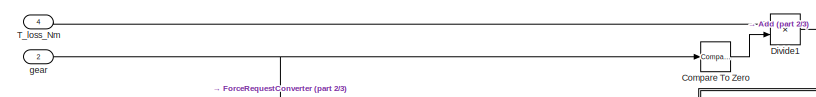
[diagram: Controller/ActuatorManagement/ConvertToICECommands/ConvertForceToThrottle - part 1/3, top left region]
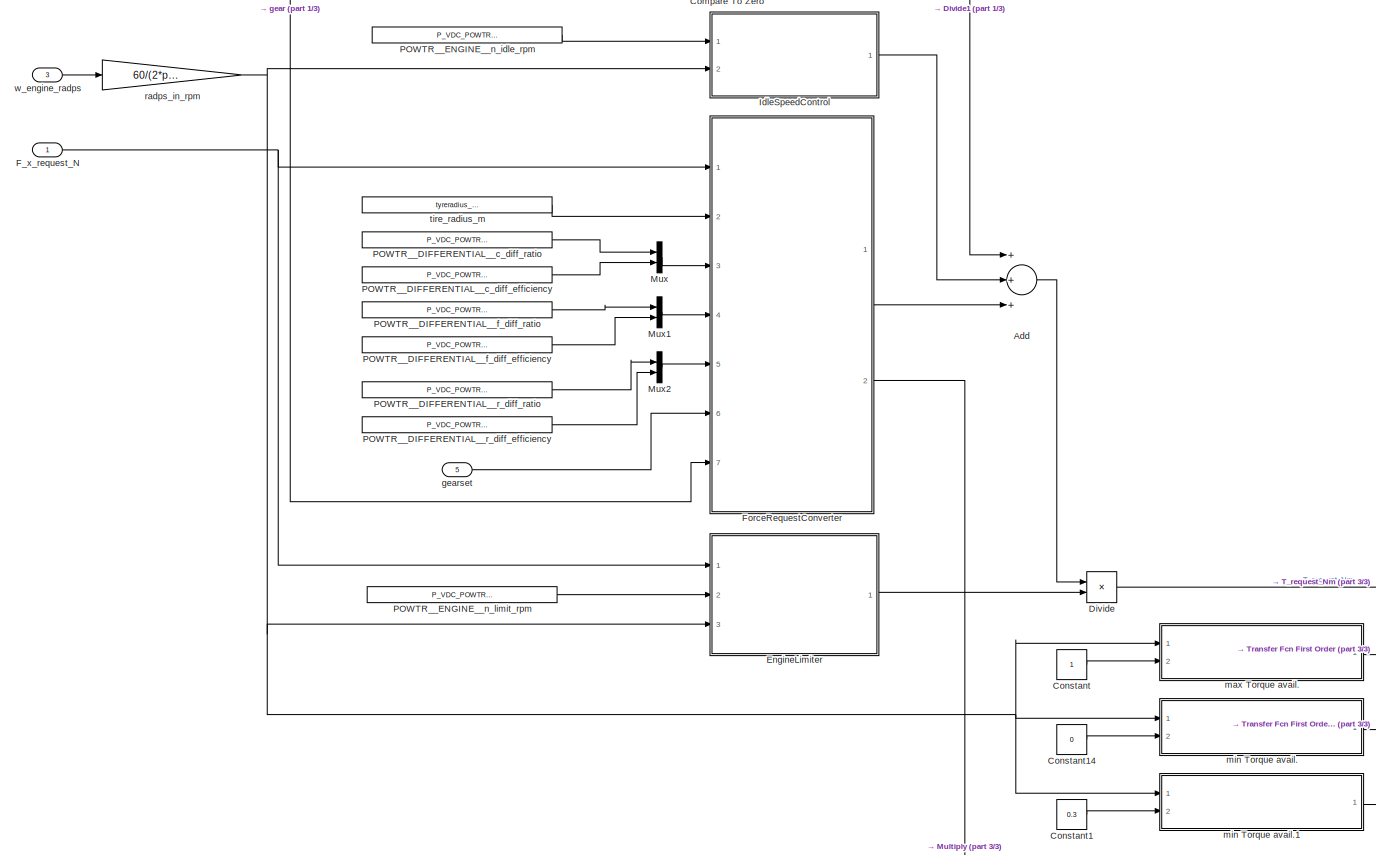
[diagram: Controller/ActuatorManagement/ConvertToICECommands/ConvertForceToThrottle - part 2/3, left side, full height]
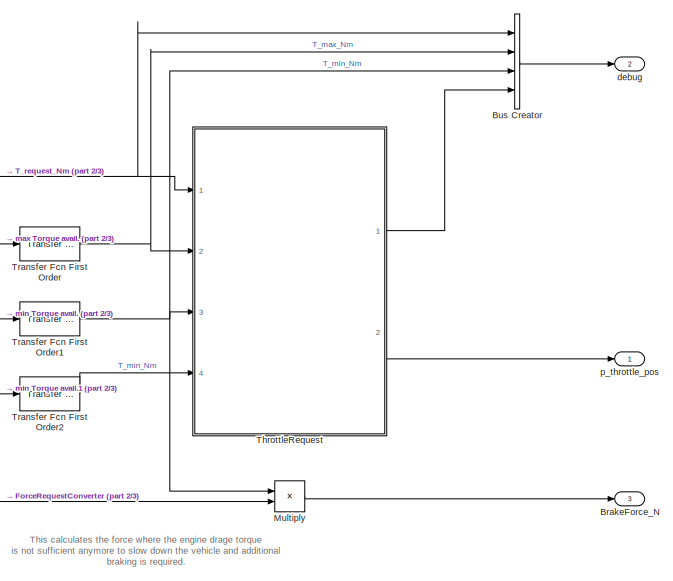
[diagram: Controller/ActuatorManagement/ConvertToICECommands/ConvertForceToThrottle - part 3/3, bottom right region]
BLOCK [SubSystem] Controller/ActuatorManagement/ConvertToICECommands/ConvertForceToThrottle
  Ports = [5, 3]
  RequestExecContextInheritance = off
BLOCK [Sum] Controller/ActuatorManagement/ConvertToICECommands/ConvertForceToThrottle/Add
  InputSameDT = off
  Inputs = +++
  OutDataTypeStr = Inherit: Inherit via internal rule
  Ports = [3, 1]
  SaturateOnIntegerOverflow = off
BLOCK [Outport] Controller/ActuatorManagement/ConvertToICECommands/ConvertForceToThrottle/BrakeForce_N
  IconDisplay = Port number
  Port = 3
BLOCK [BusCreator] Controller/ActuatorManagement/ConvertToICECommands/ConvertForceToThrottle/Bus Creator
  DisplayOption = bar
  InheritFromInputs = on
  Inputs = 4
  Ports = [4, 1]
BLOCK [Reference] Controller/ActuatorManagement/ConvertToICECommands/ConvertForceToThrottle/Compare To Zero  REF=simulink/Logic and Bit
Operations/Compare
To Zero
  Ports = [1, 1]
  SourceBlock = simulink/Logic and Bit\nOperations/Compare\nTo Zero
  SourceProductBaseCode = SL
  SourceProductName = Simulink
  SourceType = Compare To Zero
BLOCK [Constant] Controller/ActuatorManagement/ConvertToICECommands/ConvertForceToThrottle/Constant
BLOCK [Constant] Controller/ActuatorManagement/ConvertToICECommands/ConvertForceToThrottle/Constant1
  Value = 0.3
BLOCK [Constant] Controller/ActuatorManagement/ConvertToICECommands/ConvertForceToThrottle/Constant14
  Value = 0
BLOCK [Product] Controller/ActuatorManagement/ConvertToICECommands/ConvertForceToThrottle/Divide
  InputSameDT = off
  Inputs = **
  OutDataTypeStr = Inherit: Inherit via internal rule
  Ports = [2, 1]
  RndMeth = Floor
  SaturateOnIntegerOverflow = off
BLOCK [Product] Controller/ActuatorManagement/ConvertToICECommands/ConvertForceToThrottle/Divide1
  InputSameDT = off
  Inputs = **
  OutDataTypeStr = Inherit: Inherit via internal rule
  Ports = [2, 1]
  RndMeth = Floor
  SaturateOnIntegerOverflow = off
BLOCK [SubSystem] Controller/ActuatorManagement/ConvertToICECommands/ConvertForceToThrottle/EngineLimiter
  ErrorFcn = Stateflow.Translate.translate
  PermitHierarchicalResolution = ExplicitOnly
  Ports = [3, 1]
  RequestExecContextInheritance = off
  SFBlockType = MATLAB Function
  TreatAsAtomicUnit = on
BLOCK [Demux] Controller/ActuatorManagement/ConvertToICECommands/ConvertForceToThrottle/EngineLimiter/ Demux 
  Outputs = 1
  Ports = [1, 1]
BLOCK [S-Function] Controller/ActuatorManagement/ConvertToICECommands/ConvertForceToThrottle/EngineLimiter/ SFunction 
  EnableBusSupport = on
  FunctionName = sf_sfun
  PortCounts = [3 2]
  Ports = [3, 2]
  SFcnIsStateOwnerBlock = off
  SFunctionDeploymentMode = off
  Tag = Stateflow S-Function mvdc_trajectory_driver 12
BLOCK [Terminator] Controller/ActuatorManagement/ConvertToICECommands/ConvertForceToThrottle/EngineLimiter/ Terminator 
BLOCK [Inport] Controller/ActuatorManagement/ConvertToICECommands/ConvertForceToThrottle/EngineLimiter/F_x_request_N
  IconDisplay = Port number
BLOCK [Outport] Controller/ActuatorManagement/ConvertToICECommands/ConvertForceToThrottle/EngineLimiter/cutoff
  IconDisplay = Port number
BLOCK [Inport] Controller/ActuatorManagement/ConvertToICECommands/ConvertForceToThrottle/EngineLimiter/n_engine_rpm
  IconDisplay = Port number
  Port = 3
BLOCK [Inport] Controller/ActuatorManagement/ConvertToICECommands/ConvertForceToThrottle/EngineLimiter/n_limiter_rpm
  IconDisplay = Port number
  Port = 2
BLOCK [Inport] Controller/ActuatorManagement/ConvertToICECommands/ConvertForceToThrottle/F_x_request_N
  IconDisplay = Port number
BLOCK [SubSystem] Controller/ActuatorManagement/ConvertToICECommands/ConvertForceToThrottle/ForceRequestConverter
  ErrorFcn = Stateflow.Translate.translate
  PermitHierarchicalResolution = ExplicitOnly
  Ports = [7, 2]
  RequestExecContextInheritance = off
  SFBlockType = MATLAB Function
  TreatAsAtomicUnit = on
BLOCK [Demux] Controller/ActuatorManagement/ConvertToICECommands/ConvertForceToThrottle/ForceRequestConverter/ Demux 
  Outputs = 1
  Ports = [1, 1]
BLOCK [S-Function] Controller/ActuatorManagement/ConvertToICECommands/ConvertForceToThrottle/ForceRequestConverter/ SFunction 
  EnableBusSupport = on
  FunctionName = sf_sfun
  PortCounts = [7 3]
  Ports = [7, 3]
  SFcnIsStateOwnerBlock = off
  SFunctionDeploymentMode = off
  Tag = Stateflow S-Function mvdc_trajectory_driver 13
BLOCK [Terminator] Controller/ActuatorManagement/ConvertToICECommands/ConvertForceToThrottle/ForceRequestConverter/ Terminator 
BLOCK [Inport] Controller/ActuatorManagement/ConvertToICECommands/ConvertForceToThrottle/ForceRequestConverter/F_x_request_N
  IconDisplay = Port number
BLOCK [Outport] Controller/ActuatorManagement/ConvertToICECommands/ConvertForceToThrottle/ForceRequestConverter/OverallRatio
  IconDisplay = Port number
  Port = 2
BLOCK [Outport] Controller/ActuatorManagement/ConvertToICECommands/ConvertForceToThrottle/ForceRequestConverter/T_request_Nm
  IconDisplay = Port number
BLOCK [Inport] Controller/ActuatorManagement/ConvertToICECommands/ConvertForceToThrottle/ForceRequestConverter/gear_in
  IconDisplay = Port number
  Port = 7
BLOCK [Inport] Controller/ActuatorManagement/ConvertToICECommands/ConvertForceToThrottle/ForceRequestConverter/i_c
  IconDisplay = Port number
  Port = 3
BLOCK [Inport] Controller/ActuatorManagement/ConvertToICECommands/ConvertForceToThrottle/ForceRequestConverter/i_f
  IconDisplay = Port number
  Port = 4
BLOCK [Inport] Controller/ActuatorManagement/ConvertToICECommands/ConvertForceToThrottle/ForceRequestConverter/i_gearset
  IconDisplay = Port number
  Port = 6
BLOCK [Inport] Controller/ActuatorManagement/ConvertToICECommands/ConvertForceToThrottle/ForceRequestConverter/i_r
  IconDisplay = Port number
  Port = 5
BLOCK [Inport] Controller/ActuatorManagement/ConvertToICECommands/ConvertForceToThrottle/ForceRequestConverter/tire_radius_m
  IconDisplay = Port number
  Port = 2
BLOCK [SubSystem] Controller/ActuatorManagement/ConvertToICECommands/ConvertForceToThrottle/IdleSpeedControl
  ErrorFcn = Stateflow.Translate.translate
  PermitHierarchicalResolution = ExplicitOnly
  Ports = [2, 1]
  RequestExecContextInheritance = off
  SFBlockType = MATLAB Function
  TreatAsAtomicUnit = on
BLOCK [Demux] Controller/ActuatorManagement/ConvertToICECommands/ConvertForceToThrottle/IdleSpeedControl/ Demux 
  Outputs = 1
  Ports = [1, 1]
BLOCK [S-Function] Controller/ActuatorManagement/ConvertToICECommands/ConvertForceToThrottle/IdleSpeedControl/ SFunction 
  EnableBusSupport = on
  FunctionName = sf_sfun
  PortCounts = [2 2]
  Ports = [2, 2]
  SFcnIsStateOwnerBlock = off
  SFunctionDeploymentMode = off
  Tag = Stateflow S-Function mvdc_trajectory_driver 14
BLOCK [Terminator] Controller/ActuatorManagement/ConvertToICECommands/ConvertForceToThrottle/IdleSpeedControl/ Terminator 
BLOCK [Outport] Controller/ActuatorManagement/ConvertToICECommands/ConvertForceToThrottle/IdleSpeedControl/idle_control
  IconDisplay = Port number
BLOCK [Inport] Controller/ActuatorManagement/ConvertToICECommands/ConvertForceToThrottle/IdleSpeedControl/n_engine_rpm
  IconDisplay = Port number
  Port = 2
BLOCK [Inport] Controller/ActuatorManagement/ConvertToICECommands/ConvertForceToThrottle/IdleSpeedControl/n_idle_rpm
  IconDisplay = Port number
BLOCK [Product] Controller/ActuatorManagement/ConvertToICECommands/ConvertForceToThrottle/Multiply
  InputSameDT = off
  OutDataTypeStr = Inherit: Inherit via internal rule
  Ports = [2, 1]
  RndMeth = Floor
  SaturateOnIntegerOverflow = off
BLOCK [Mux] Controller/ActuatorManagement/ConvertToICECommands/ConvertForceToThrottle/Mux
  DisplayOption = bar
  Inputs = 2
  Ports = [2, 1]
BLOCK [Mux] Controller/ActuatorManagement/ConvertToICECommands/ConvertForceToThrottle/Mux1
  DisplayOption = bar
  Inputs = 2
  Ports = [2, 1]
BLOCK [Mux] Controller/ActuatorManagement/ConvertToICECommands/ConvertForceToThrottle/Mux2
  DisplayOption = bar
  Inputs = 2
  Ports = [2, 1]
BLOCK [Constant] Controller/ActuatorManagement/ConvertToICECommands/ConvertForceToThrottle/POWTR__DIFFERENTIAL__c_diff_efficiency
  Value = P_VDC_POWTR__DIFFERENTIAL__c_diff_efficiency
BLOCK [Constant] Controller/ActuatorManagement/ConvertToICECommands/ConvertForceToThrottle/POWTR__DIFFERENTIAL__c_diff_ratio
  Value = P_VDC_POWTR__DIFFERENTIAL__c_diff_ratio
BLOCK [Constant] Controller/ActuatorManagement/ConvertToICECommands/ConvertForceToThrottle/POWTR__DIFFERENTIAL__f_diff_efficiency
  Value = P_VDC_POWTR__DIFFERENTIAL__f_diff_efficiency
BLOCK [Constant] Controller/ActuatorManagement/ConvertToICECommands/ConvertForceToThrottle/POWTR__DIFFERENTIAL__f_diff_ratio
  Value = P_VDC_POWTR__DIFFERENTIAL__f_diff_ratio
BLOCK [Constant] Controller/ActuatorManagement/ConvertToICECommands/ConvertForceToThrottle/POWTR__DIFFERENTIAL__r_diff_efficiency
  Value = P_VDC_POWTR__DIFFERENTIAL__r_diff_efficiency
BLOCK [Constant] Controller/ActuatorManagement/ConvertToICECommands/ConvertForceToThrottle/POWTR__DIFFERENTIAL__r_diff_ratio
  Value = P_VDC_POWTR__DIFFERENTIAL__r_diff_ratio
BLOCK [Constant] Controller/ActuatorManagement/ConvertToICECommands/ConvertForceToThrottle/POWTR__ENGINE__n_idle_rpm
  Value = P_VDC_POWTR__ENGINE__n_idle_rpm
BLOCK [Constant] Controller/ActuatorManagement/ConvertToICECommands/ConvertForceToThrottle/POWTR__ENGINE__n_limit_rpm
  Value = P_VDC_POWTR__ENGINE__n_limit_rpm
BLOCK [Inport] Controller/ActuatorManagement/ConvertToICECommands/ConvertForceToThrottle/T_loss_Nm
  IconDisplay = Port number
  Port = 4
BLOCK [SubSystem] Controller/ActuatorManagement/ConvertToICECommands/ConvertForceToThrottle/ThrottleRequest
  ErrorFcn = Stateflow.Translate.translate
  PermitHierarchicalResolution = ExplicitOnly
  Ports = [4, 2]
  RequestExecContextInheritance = off
  SFBlockType = MATLAB Function
  TreatAsAtomicUnit = on
BLOCK [Demux] Controller/ActuatorManagement/ConvertToICECommands/ConvertForceToThrottle/ThrottleRequest/ Demux 
  Outputs = 1
  Ports = [1, 1]
BLOCK [S-Function] Controller/ActuatorManagement/ConvertToICECommands/ConvertForceToThrottle/ThrottleRequest/ SFunction 
  EnableBusSupport = on
  FunctionName = sf_sfun
  PortCounts = [4 3]
  Ports = [4, 3]
  SFcnIsStateOwnerBlock = off
  SFunctionDeploymentMode = off
  Tag = Stateflow S-Function mvdc_trajectory_driver 15
BLOCK [Terminator] Controller/ActuatorManagement/ConvertToICECommands/ConvertForceToThrottle/ThrottleRequest/ Terminator 
BLOCK [Inport] Controller/ActuatorManagement/ConvertToICECommands/ConvertForceToThrottle/ThrottleRequest/T_30percThrottle_Nm
  IconDisplay = Port number
  Port = 4
BLOCK [Outport] Controller/ActuatorManagement/ConvertToICECommands/ConvertForceToThrottle/ThrottleRequest/T_engine_Nm
  IconDisplay = Port number
BLOCK [Inport] Controller/ActuatorManagement/ConvertToICECommands/ConvertForceToThrottle/ThrottleRequest/T_max_Nm
  IconDisplay = Port number
  Port = 2
BLOCK [Inport] Controller/ActuatorManagement/ConvertToICECommands/ConvertForceToThrottle/ThrottleRequest/T_min_Nm
  IconDisplay = Port number
  Port = 3
BLOCK [Inport] Controller/ActuatorManagement/ConvertToICECommands/ConvertForceToThrottle/ThrottleRequest/T_request_Nm
  IconDisplay = Port number
BLOCK [Outport] Controller/ActuatorManagement/ConvertToICECommands/ConvertForceToThrottle/ThrottleRequest/p_throttle_pos
  IconDisplay = Port number
  Port = 2
BLOCK [Reference] Controller/ActuatorManagement/ConvertToICECommands/ConvertForceToThrottle/Transfer Fcn First Order  REF=simulink/Discrete/Transfer Fcn
First Order
  Ports = [1, 1]
  SourceBlock = simulink/Discrete/Transfer Fcn\nFirst Order
  SourceProductBaseCode = SL
  SourceProductName = Simulink
  SourceType = First Order Transfer Fcn
BLOCK [Reference] Controller/ActuatorManagement/ConvertToICECommands/ConvertForceToThrottle/Transfer Fcn First Order1  REF=simulink/Discrete/Transfer Fcn
First Order
  Ports = [1, 1]
  SourceBlock = simulink/Discrete/Transfer Fcn\nFirst Order
  SourceProductBaseCode = SL
  SourceProductName = Simulink
  SourceType = First Order Transfer Fcn
BLOCK [Reference] Controller/ActuatorManagement/ConvertToICECommands/ConvertForceToThrottle/Transfer Fcn First Order2  REF=simulink/Discrete/Transfer Fcn
First Order
  Ports = [1, 1]
  SourceBlock = simulink/Discrete/Transfer Fcn\nFirst Order
  SourceProductBaseCode = SL
  SourceProductName = Simulink
  SourceType = First Order Transfer Fcn
BLOCK [Outport] Controller/ActuatorManagement/ConvertToICECommands/ConvertForceToThrottle/debug
  IconDisplay = Port number
  Port = 2
BLOCK [Inport] Controller/ActuatorManagement/ConvertToICECommands/ConvertForceToThrottle/gear
  IconDisplay = Port number
  Port = 2
BLOCK [Inport] Controller/ActuatorManagement/ConvertToICECommands/ConvertForceToThrottle/gearset
  IconDisplay = Port number
  Port = 5
BLOCK [SubSystem] Controller/ActuatorManagement/ConvertToICECommands/ConvertForceToThrottle/max Torque avail.
  Ports = [2, 1]
  RequestExecContextInheritance = off
BLOCK [Lookup_n-D] Controller/ActuatorManagement/ConvertToICECommands/ConvertForceToThrottle/max Torque avail./1-D Lookup Table
  BreakpointsForDimension1 = [500;600;700;800;900;1000;1100;1200;1300;1400;1500;1600;1700;1800;1900;2000;2100;2200;2300;2400;2500;2600;2700;2800;2900;3000;3100;3200;3300;3400;3500;3600;3700;3800;3900;4000;4100;4200;4300;4400;4500;4600;4700;4800;4900;5000;5100;5200;5300;5400;5500;5600;5700;5800;5900;6000;6100;6200;6300;6400;6500;6600;6700;6800;6900;7000;7100;7200;7300;7400;7500]  <repeated x3 — deduplicated; at blocks: 1-D Lookup Table>
  BreakpointsForDimension2 = [0 0.3 0.5 0.65 0.7 0.8 1]
  InternalRulePriority = Speed
  Ports = [2, 1]
  RndMeth = Simplest
  Table = [0 55.00000000000001 60.50000000000001 70.40000000000001 82.5 93.50000000000001 104.5;-3.3 57.20000000000001 62.7 73.48000000000002 86.90000000000001 99.00000000000001 110;-6.600000000000001 59.40000000000001 64.90000000000001 76.56 91.30000000000001 104.5 115.5;-9.9 61.60000000000001 67.09999999999999 79.64000000000001 95.7 110 121;-13.2 63.8 69.3 82.72000000000001 100.1 115.5 126.5;-16.5 66 71.5...<+6810ch>  <repeated x3 — deduplicated; at blocks: 1-D Lookup Table>
BLOCK [Outport] Controller/ActuatorManagement/ConvertToICECommands/ConvertForceToThrottle/max Torque avail./T_engine_Nm
  IconDisplay = Port number
BLOCK [Inport] Controller/ActuatorManagement/ConvertToICECommands/ConvertForceToThrottle/max Torque avail./n_engine_rpm
  IconDisplay = Port number
BLOCK [Inport] Controller/ActuatorManagement/ConvertToICECommands/ConvertForceToThrottle/max Torque avail./p_throttle_pos
  IconDisplay = Port number
  Port = 2
BLOCK [SubSystem] Controller/ActuatorManagement/ConvertToICECommands/ConvertForceToThrottle/min Torque avail.
  Ports = [2, 1]
  RequestExecContextInheritance = off
BLOCK [Lookup_n-D] Controller/ActuatorManagement/ConvertToICECommands/ConvertForceToThrottle/min Torque avail./1-D Lookup Table
  BreakpointsForDimension2 = [0 0.3 0.5 0.65 0.7 0.8 1]
  InternalRulePriority = Speed
  Ports = [2, 1]
  RndMeth = Simplest
BLOCK [Outport] Controller/ActuatorManagement/ConvertToICECommands/ConvertForceToThrottle/min Torque avail./T_engine_Nm
  IconDisplay = Port number
BLOCK [Inport] Controller/ActuatorManagement/ConvertToICECommands/ConvertForceToThrottle/min Torque avail./n_engine_rpm
  IconDisplay = Port number
BLOCK [Inport] Controller/ActuatorManagement/ConvertToICECommands/ConvertForceToThrottle/min Torque avail./p_throttle_pos
  IconDisplay = Port number
  Port = 2
BLOCK [SubSystem] Controller/ActuatorManagement/ConvertToICECommands/ConvertForceToThrottle/min Torque avail.1
  Ports = [2, 1]
  RequestExecContextInheritance = off
BLOCK [Lookup_n-D] Controller/ActuatorManagement/ConvertToICECommands/ConvertForceToThrottle/min Torque avail.1/1-D Lookup Table
  BreakpointsForDimension2 = [0 0.3 0.5 0.65 0.7 0.8 1]
  InternalRulePriority = Speed
  Ports = [2, 1]
  RndMeth = Simplest
BLOCK [Outport] Controller/ActuatorManagement/ConvertToICECommands/ConvertForceToThrottle/min Torque avail.1/T_engine_Nm
  IconDisplay = Port number
BLOCK [Inport] Controller/ActuatorManagement/ConvertToICECommands/ConvertForceToThrottle/min Torque avail.1/n_engine_rpm
  IconDisplay = Port number
BLOCK [Inport] Controller/ActuatorManagement/ConvertToICECommands/ConvertForceToThrottle/min Torque avail.1/p_throttle_pos
  IconDisplay = Port number
  Port = 2
BLOCK [Outport] Controller/ActuatorManagement/ConvertToICECommands/ConvertForceToThrottle/p_throttle_pos
  IconDisplay = Port number
BLOCK [Gain] Controller/ActuatorManagement/ConvertToICECommands/ConvertForceToThrottle/radps_in_rpm
  Gain = 60/(2*pi)
  OutDataTypeStr = Inherit: Inherit via internal rule
  ParamDataTypeStr = Inherit: Inherit via internal rule
  SaturateOnIntegerOverflow = off
BLOCK [Constant] Controller/ActuatorManagement/ConvertToICECommands/ConvertForceToThrottle/tire_radius_m
  Value = tyreradius_rear_m
BLOCK [Inport] Controller/ActuatorManagement/ConvertToICECommands/ConvertForceToThrottle/w_engine_radps
  IconDisplay = Port number
  Port = 3
BLOCK [DataTypeConversion] Controller/ActuatorManagement/ConvertToICECommands/Data Type Conversion
  OutDataTypeStr = double
  RndMeth = Floor
  SaturateOnIntegerOverflow = off
BLOCK [Inport] Controller/ActuatorManagement/ConvertToICECommands/EnableEmergency
  IconDisplay = Port number
  Port = 2
BLOCK [Inport] Controller/ActuatorManagement/ConvertToICECommands/F_x_request_N
  IconDisplay = Port number
BLOCK [Outport] Controller/ActuatorManagement/ConvertToICECommands/ICEcommands
  IconDisplay = Port number
  Port = 2
BLOCK [Logic] Controller/ActuatorManagement/ConvertToICECommands/Logical Operator
  AllPortsSameDT = off
  OutDataTypeStr = boolean
  Ports = [2, 1]
BLOCK [Logic] Controller/ActuatorManagement/ConvertToICECommands/Logical Operator1
  AllPortsSameDT = off
  Operator = NOT
  OutDataTypeStr = boolean
  Ports = [1, 1]
BLOCK [Saturate] Controller/ActuatorManagement/ConvertToICECommands/Saturation
  InputPortMap = u0
  LowerLimit = 0
  Ports = [1, 1]
  UpperLimit = P_VDC_MaxThrottleLowSpeed
BLOCK [SubSystem] Controller/ActuatorManagement/ConvertToICECommands/Subsystem
  Ports = [0, 1]
  RequestExecContextInheritance = off
BLOCK [Constant] Controller/ActuatorManagement/ConvertToICECommands/Subsystem/Constant1
  Value = gearset.i_gear_3
BLOCK [Constant] Controller/ActuatorManagement/ConvertToICECommands/Subsystem/Constant10
  Value = gearset.i_gearRat_4
BLOCK [Constant] Controller/ActuatorManagement/ConvertToICECommands/Subsystem/Constant11
  Value = gearset.i_gearRat_5
BLOCK [Constant] Controller/ActuatorManagement/ConvertToICECommands/Subsystem/Constant12
  Value = gearset.i_gear_1
BLOCK [Constant] Controller/ActuatorManagement/ConvertToICECommands/Subsystem/Constant13
  Value = gearset.i_gearRat_6
BLOCK [Constant] Controller/ActuatorManagement/ConvertToICECommands/Subsystem/Constant14
  Value = gearset.i_gearRat_7
BLOCK [Constant] Controller/ActuatorManagement/ConvertToICECommands/Subsystem/Constant15
  Value = gearset.n_lb_rpm_1
BLOCK [Constant] Controller/ActuatorManagement/ConvertToICECommands/Subsystem/Constant16
  Value = gearset.n_lb_rpm_2
BLOCK [Constant] Controller/ActuatorManagement/ConvertToICECommands/Subsystem/Constant17
  Value = gearset.n_lb_rpm_3
BLOCK [Constant] Controller/ActuatorManagement/ConvertToICECommands/Subsystem/Constant18
  Value = gearset.n_lb_rpm_4
BLOCK [Constant] Controller/ActuatorManagement/ConvertToICECommands/Subsystem/Constant19
  Value = gearset.n_lb_rpm_5
BLOCK [Constant] Controller/ActuatorManagement/ConvertToICECommands/Subsystem/Constant2
  Value = gearset.i_gear_2
BLOCK [Constant] Controller/ActuatorManagement/ConvertToICECommands/Subsystem/Constant20
  Value = gearset.n_lb_rpm_6
BLOCK [Constant] Controller/ActuatorManagement/ConvertToICECommands/Subsystem/Constant21
  Value = gearset.n_lb_rpm_7
BLOCK [Constant] Controller/ActuatorManagement/ConvertToICECommands/Subsystem/Constant22
  Value = gearset.eta_gear_1
BLOCK [Constant] Controller/ActuatorManagement/ConvertToICECommands/Subsystem/Constant23
  Value = gearset.eta_gear_2
BLOCK [Constant] Controller/ActuatorManagement/ConvertToICECommands/Subsystem/Constant24
  Value = gearset.eta_gear_3
BLOCK [Constant] Controller/ActuatorManagement/ConvertToICECommands/Subsystem/Constant25
  Value = gearset.eta_gear_4
BLOCK [Constant] Controller/ActuatorManagement/ConvertToICECommands/Subsystem/Constant26
  Value = gearset.eta_gear_5
BLOCK [Constant] Controller/ActuatorManagement/ConvertToICECommands/Subsystem/Constant27
  Value = gearset.eta_gear_6
BLOCK [Constant] Controller/ActuatorManagement/ConvertToICECommands/Subsystem/Constant28
  Value = gearset.eta_gear_7
BLOCK [Constant] Controller/ActuatorManagement/ConvertToICECommands/Subsystem/Constant3
  Value = gearset.i_gear_4
BLOCK [Constant] Controller/ActuatorManagement/ConvertToICECommands/Subsystem/Constant4
  Value = gearset.i_gear_5
BLOCK [Constant] Controller/ActuatorManagement/ConvertToICECommands/Subsystem/Constant5
  Value = gearset.i_gear_6
BLOCK [Constant] Controller/ActuatorManagement/ConvertToICECommands/Subsystem/Constant6
  Value = gearset.i_gear_7
BLOCK [Constant] Controller/ActuatorManagement/ConvertToICECommands/Subsystem/Constant7
  Value = gearset.i_gearRat_1
BLOCK [Constant] Controller/ActuatorManagement/ConvertToICECommands/Subsystem/Constant8
  Value = gearset.i_gearRat_2
BLOCK [Constant] Controller/ActuatorManagement/ConvertToICECommands/Subsystem/Constant9
  Value = gearset.i_gearRat_3
BLOCK [Mux] Controller/ActuatorManagement/ConvertToICECommands/Subsystem/Mux3
  DisplayOption = bar
  Inputs = 28
  Ports = [28, 1]
BLOCK [Reshape] Controller/ActuatorManagement/ConvertToICECommands/Subsystem/Reshape
  OutputDimensionality = Customize
  OutputDimensions = [4,7]
  Ports = [1, 1]
BLOCK [Outport] Controller/ActuatorManagement/ConvertToICECommands/Subsystem/i_gearset
  IconDisplay = Port number
BLOCK [Switch] Controller/ActuatorManagement/ConvertToICECommands/Switch
  Criteria = u2 > Threshold
  InputSameDT = off
  SaturateOnIntegerOverflow = off
BLOCK [Switch] Controller/ActuatorManagement/ConvertToICECommands/Switch1
  Criteria = u2 > Threshold
  InputSameDT = off
  SaturateOnIntegerOverflow = off
BLOCK [Switch] Controller/ActuatorManagement/ConvertToICECommands/Switch2
  Criteria = u2 ~= 0
  InputSameDT = off
  SaturateOnIntegerOverflow = off
BLOCK [Inport] Controller/ActuatorManagement/ConvertToICECommands/VehicleDynamicState
  IconDisplay = Port number
  Port = 4
BLOCK [Inport] Controller/ActuatorManagement/ConvertToICECommands/VehicleSensorData
  IconDisplay = Port number
  Port = 3
BLOCK [Outport] Controller/ActuatorManagement/ConvertToICECommands/debug
  IconDisplay = Port number
BLOCK [SubSystem] Controller/ActuatorManagement/ConvertToICECommands/enable_AutomaticGearbox
  Ports = [4, 1]
  RequestExecContextInheritance = off
BLOCK [Constant] Controller/ActuatorManagement/ConvertToICECommands/enable_AutomaticGearbox/Constant
BLOCK [DiscreteIntegrator] Controller/ActuatorManagement/ConvertToICECommands/enable_AutomaticGearbox/Discrete-Time Integrator
  ExternalReset = rising
  ICPrevOutput = DiscIntNeverNeededParam
  ICPrevScaledInput = DiscIntNeverNeededParam
  InitialConditionSetting = Auto
  Ports = [2, 1]
  SampleTime = -1
BLOCK [Inport] Controller/ActuatorManagement/ConvertToICECommands/enable_AutomaticGearbox/F_x_request_N
  IconDisplay = Port number
BLOCK [SubSystem] Controller/ActuatorManagement/ConvertToICECommands/enable_AutomaticGearbox/GearSelect
  ErrorFcn = Stateflow.Translate.translate
  PermitHierarchicalResolution = ExplicitOnly
  Ports = [6, 2]
  RequestExecContextInheritance = off
  SFBlockType = MATLAB Function
  TreatAsAtomicUnit = on
BLOCK [Demux] Controller/ActuatorManagement/ConvertToICECommands/enable_AutomaticGearbox/GearSelect/ Demux 
  Outputs = 1
  Ports = [1, 1]
BLOCK [S-Function] Controller/ActuatorManagement/ConvertToICECommands/enable_AutomaticGearbox/GearSelect/ SFunction 
  EnableBusSupport = on
  FunctionName = sf_sfun
  PortCounts = [6 3]
  Ports = [6, 3]
  SFcnIsStateOwnerBlock = off
  SFunctionDeploymentMode = off
  Tag = Stateflow S-Function mvdc_trajectory_driver 6
BLOCK [Terminator] Controller/ActuatorManagement/ConvertToICECommands/enable_AutomaticGearbox/GearSelect/ Terminator 
BLOCK [Inport] Controller/ActuatorManagement/ConvertToICECommands/enable_AutomaticGearbox/GearSelect/drive_request
  IconDisplay = Port number
BLOCK [Outport] Controller/ActuatorManagement/ConvertToICECommands/enable_AutomaticGearbox/GearSelect/gear
  IconDisplay = Port number
BLOCK [Inport] Controller/ActuatorManagement/ConvertToICECommands/enable_AutomaticGearbox/GearSelect/gear_in
  IconDisplay = Port number
  Port = 2
BLOCK [Inport] Controller/ActuatorManagement/ConvertToICECommands/enable_AutomaticGearbox/GearSelect/i_gearset
  IconDisplay = Port number
  Port = 5
BLOCK [Inport] Controller/ActuatorManagement/ConvertToICECommands/enable_AutomaticGearbox/GearSelect/n_ub_rpm
  IconDisplay = Port number
  Port = 4
BLOCK [Inport] Controller/ActuatorManagement/ConvertToICECommands/enable_AutomaticGearbox/GearSelect/shift_delay
  IconDisplay = Port number
  Port = 6
BLOCK [Outport] Controller/ActuatorManagement/ConvertToICECommands/enable_AutomaticGearbox/GearSelect/shift_request
  IconDisplay = Port number
  Port = 2
BLOCK [Inport] Controller/ActuatorManagement/ConvertToICECommands/enable_AutomaticGearbox/GearSelect/w_engine_radps
  IconDisplay = Port number
  Port = 3
BLOCK [Constant] Controller/ActuatorManagement/ConvertToICECommands/enable_AutomaticGearbox/POWTR__ENGINE__n_ub_rpm
  Value = P_VDC_POWTR__ENGINE__n_ub_rpm
BLOCK [UnitDelay] Controller/ActuatorManagement/ConvertToICECommands/enable_AutomaticGearbox/Unit Delay1
  InputProcessing = Elements as channels (sample based)
  SampleTime = -1
BLOCK [Outport] Controller/ActuatorManagement/ConvertToICECommands/enable_AutomaticGearbox/gear
  IconDisplay = Port number
BLOCK [Inport] Controller/ActuatorManagement/ConvertToICECommands/enable_AutomaticGearbox/gear_in
  IconDisplay = Port number
  Port = 3
BLOCK [Inport] Controller/ActuatorManagement/ConvertToICECommands/enable_AutomaticGearbox/gearset
  IconDisplay = Port number
  Port = 4
BLOCK [Inport] Controller/ActuatorManagement/ConvertToICECommands/enable_AutomaticGearbox/w_engine_radps
  IconDisplay = Port number
  Port = 2
BLOCK [Inport] Controller/ActuatorManagement/EnableDriver
  IconDisplay = Port number
  Port = 3
BLOCK [Inport] Controller/ActuatorManagement/EnableEmergency
  IconDisplay = Port number
  Port = 5
BLOCK [Goto] Controller/ActuatorManagement/Goto1
  GotoTag = mvdc_actuator_debug
  TagVisibility = global
BLOCK [Outport] Controller/ActuatorManagement/ICE_commands
  BusOutputAsStruct = on
  IconDisplay = Port number
  Port = 3
BLOCK [Inport] Controller/ActuatorManagement/Limitations
  IconDisplay = Port number
  Port = 6
BLOCK [SubSystem] Controller/ActuatorManagement/OutputChecksLong
  Ports = [5, 2]
  RequestExecContextInheritance = off
BLOCK [SubSystem] Controller/ActuatorManagement/OutputChecksLong/ApplyTractionControl
  Ports = [4, 1]
  RequestExecContextInheritance = off
BLOCK [Constant] Controller/ActuatorManagement/OutputChecksLong/ApplyTractionControl/Constant1
  Value = 0
BLOCK [Constant] Controller/ActuatorManagement/OutputChecksLong/ApplyTractionControl/Constant2
  Value = 0
BLOCK [Outport] Controller/ActuatorManagement/OutputChecksLong/ApplyTractionControl/Fx_LongControlRequestFinal_N
  IconDisplay = Port number
BLOCK [Inport] Controller/ActuatorManagement/OutputChecksLong/ApplyTractionControl/Fx_LongControlRequest_N
  IconDisplay = Port number
  Port = 3
BLOCK [Inport] Controller/ActuatorManagement/OutputChecksLong/ApplyTractionControl/Fx_LowerLimit_N
  IconDisplay = Port number
  Port = 2
BLOCK [Inport] Controller/ActuatorManagement/OutputChecksLong/ApplyTractionControl/Fx_TCCorrection_N
  IconDisplay = Port number
  Port = 4
BLOCK [Inport] Controller/ActuatorManagement/OutputChecksLong/ApplyTractionControl/Fx_UpperLimit_N
  IconDisplay = Port number
BLOCK [Reference] Controller/ActuatorManagement/OutputChecksLong/ApplyTractionControl/Saturation Dynamic  REF=simulink/Discontinuities/Saturation
Dynamic
  Ports = [3, 1]
  SourceBlock = simulink/Discontinuities/Saturation\nDynamic
  SourceProductBaseCode = SL
  SourceProductName = Simulink
  SourceType = Saturation Dynamic
BLOCK [Reference] Controller/ActuatorManagement/OutputChecksLong/ApplyTractionControl/Saturation Dynamic1  REF=simulink/Discontinuities/Saturation
Dynamic
  Ports = [3, 1]
  SourceBlock = simulink/Discontinuities/Saturation\nDynamic
  SourceProductBaseCode = SL
  SourceProductName = Simulink
  SourceType = Saturation Dynamic
BLOCK [Reference] Controller/ActuatorManagement/OutputChecksLong/ApplyTractionControl/Saturation Dynamic2  REF=simulink/Discontinuities/Saturation
Dynamic
  Ports = [3, 1]
  SourceBlock = simulink/Discontinuities/Saturation\nDynamic
  SourceProductBaseCode = SL
  SourceProductName = Simulink
  SourceType = Saturation Dynamic
BLOCK [Sum] Controller/ActuatorManagement/OutputChecksLong/ApplyTractionControl/Sum
  IconShape = round
  InputSameDT = off
  Inputs = |++
  OutDataTypeStr = Inherit: Inherit via internal rule
  Ports = [2, 1]
  SaturateOnIntegerOverflow = off
BLOCK [Sum] Controller/ActuatorManagement/OutputChecksLong/ApplyTractionControl/Sum1
  IconShape = round
  InputSameDT = off
  Inputs = -+|
  OutDataTypeStr = Inherit: Inherit via internal rule
  Ports = [2, 1]
  SaturateOnIntegerOverflow = off
BLOCK [Switch] Controller/ActuatorManagement/OutputChecksLong/ApplyTractionControl/Switch
  Criteria = u2 > Threshold
  InputSameDT = off
  SaturateOnIntegerOverflow = off
BLOCK [UnaryMinus] Controller/ActuatorManagement/OutputChecksLong/ApplyTractionControl/Unary Minus
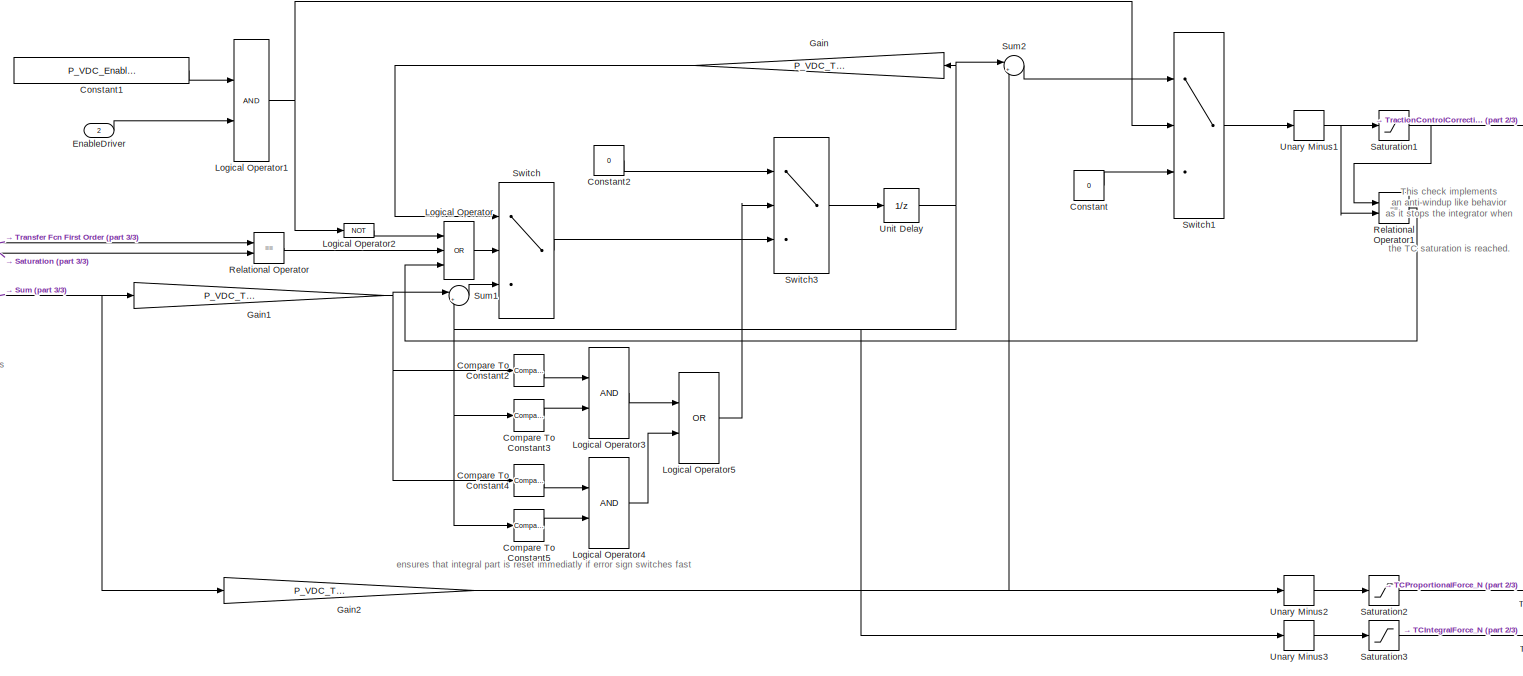
[diagram: Controller/ActuatorManagement/OutputChecksLong/BrakeTractionControl - part 1/3, right side, full height]
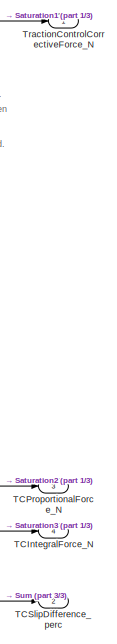
[diagram: Controller/ActuatorManagement/OutputChecksLong/BrakeTractionControl - part 2/3, right side, full height]
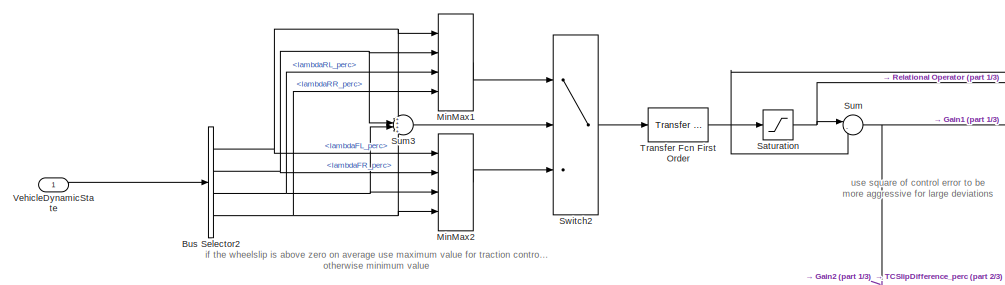
[diagram: Controller/ActuatorManagement/OutputChecksLong/BrakeTractionControl - part 3/3, middle left region]
BLOCK [SubSystem] Controller/ActuatorManagement/OutputChecksLong/BrakeTractionControl
  Ports = [2, 4]
  RequestExecContextInheritance = off
BLOCK [BusSelector] Controller/ActuatorManagement/OutputChecksLong/BrakeTractionControl/Bus Selector2
  OutputAsBus = off
  OutputSignals = lambdaFL_perc,lambdaFR_perc,lambdaRL_perc,lambdaRR_perc
  Ports = [1, 4]
BLOCK [Reference] Controller/ActuatorManagement/OutputChecksLong/BrakeTractionControl/Compare To Constant2  REF=simulink/Logic and Bit
Operations/Compare
To Constant
  Ports = [1, 1]
  SourceBlock = simulink/Logic and Bit\nOperations/Compare\nTo Constant
  SourceProductBaseCode = SL
  SourceProductName = Simulink
  SourceType = Compare To Constant
BLOCK [Reference] Controller/ActuatorManagement/OutputChecksLong/BrakeTractionControl/Compare To Constant3  REF=simulink/Logic and Bit
Operations/Compare
To Constant
  Ports = [1, 1]
  SourceBlock = simulink/Logic and Bit\nOperations/Compare\nTo Constant
  SourceProductBaseCode = SL
  SourceProductName = Simulink
  SourceType = Compare To Constant
BLOCK [Reference] Controller/ActuatorManagement/OutputChecksLong/BrakeTractionControl/Compare To Constant4  REF=simulink/Logic and Bit
Operations/Compare
To Constant
  Ports = [1, 1]
  SourceBlock = simulink/Logic and Bit\nOperations/Compare\nTo Constant
  SourceProductBaseCode = SL
  SourceProductName = Simulink
  SourceType = Compare To Constant
BLOCK [Reference] Controller/ActuatorManagement/OutputChecksLong/BrakeTractionControl/Compare To Constant5  REF=simulink/Logic and Bit
Operations/Compare
To Constant
  Ports = [1, 1]
  SourceBlock = simulink/Logic and Bit\nOperations/Compare\nTo Constant
  SourceProductBaseCode = SL
  SourceProductName = Simulink
  SourceType = Compare To Constant
BLOCK [Constant] Controller/ActuatorManagement/OutputChecksLong/BrakeTractionControl/Constant
  Value = 0
BLOCK [Constant] Controller/ActuatorManagement/OutputChecksLong/BrakeTractionControl/Constant1
  Value = P_VDC_EnableTC
BLOCK [Constant] Controller/ActuatorManagement/OutputChecksLong/BrakeTractionControl/Constant2
  Value = 0
BLOCK [Inport] Controller/ActuatorManagement/OutputChecksLong/BrakeTractionControl/EnableDriver
  IconDisplay = Port number
  Port = 2
BLOCK [Gain] Controller/ActuatorManagement/OutputChecksLong/BrakeTractionControl/Gain
  Gain = P_VDC_TCReductionFactor
  OutDataTypeStr = Inherit: Inherit via internal rule
  ParamDataTypeStr = Inherit: Inherit via internal rule
  SaturateOnIntegerOverflow = off
BLOCK [Gain] Controller/ActuatorManagement/OutputChecksLong/BrakeTractionControl/Gain1
  Gain = P_VDC_TC_Ki
  OutDataTypeStr = Inherit: Inherit via internal rule
  ParamDataTypeStr = Inherit: Inherit via internal rule
  SaturateOnIntegerOverflow = off
BLOCK [Gain] Controller/ActuatorManagement/OutputChecksLong/BrakeTractionControl/Gain2
  Gain = P_VDC_TC_Kp
  OutDataTypeStr = Inherit: Inherit via internal rule
  ParamDataTypeStr = Inherit: Inherit via internal rule
  SaturateOnIntegerOverflow = off
BLOCK [Logic] Controller/ActuatorManagement/OutputChecksLong/BrakeTractionControl/Logical Operator
  AllPortsSameDT = off
  Inputs = 3
  Operator = OR
  OutDataTypeStr = boolean
  Ports = [3, 1]
BLOCK [Logic] Controller/ActuatorManagement/OutputChecksLong/BrakeTractionControl/Logical Operator1
  AllPortsSameDT = off
  OutDataTypeStr = boolean
  Ports = [2, 1]
BLOCK [Logic] Controller/ActuatorManagement/OutputChecksLong/BrakeTractionControl/Logical Operator2
  AllPortsSameDT = off
  Operator = NOT
  OutDataTypeStr = boolean
  Ports = [1, 1]
BLOCK [Logic] Controller/ActuatorManagement/OutputChecksLong/BrakeTractionControl/Logical Operator3
  AllPortsSameDT = off
  OutDataTypeStr = boolean
  Ports = [2, 1]
BLOCK [Logic] Controller/ActuatorManagement/OutputChecksLong/BrakeTractionControl/Logical Operator4
  AllPortsSameDT = off
  OutDataTypeStr = boolean
  Ports = [2, 1]
BLOCK [Logic] Controller/ActuatorManagement/OutputChecksLong/BrakeTractionControl/Logical Operator5
  AllPortsSameDT = off
  Operator = OR
  OutDataTypeStr = boolean
  Ports = [2, 1]
BLOCK [MinMax] Controller/ActuatorManagement/OutputChecksLong/BrakeTractionControl/MinMax1
  Function = max
  InputSameDT = off
  Inputs = 4
  Ports = [4, 1]
  SaturateOnIntegerOverflow = off
BLOCK [MinMax] Controller/ActuatorManagement/OutputChecksLong/BrakeTractionControl/MinMax2
  InputSameDT = off
  Inputs = 4
  Ports = [4, 1]
  SaturateOnIntegerOverflow = off
BLOCK [RelationalOperator] Controller/ActuatorManagement/OutputChecksLong/BrakeTractionControl/Relational Operator
  InputSameDT = off
  Operator = ==
  OutDataTypeStr = boolean
  Ports = [2, 1]
  RndMeth = Simplest
BLOCK [RelationalOperator] Controller/ActuatorManagement/OutputChecksLong/BrakeTractionControl/Relational Operator1
  InputSameDT = off
  Operator = ~=
  OutDataTypeStr = boolean
  Ports = [2, 1]
  RndMeth = Simplest
BLOCK [Saturate] Controller/ActuatorManagement/OutputChecksLong/BrakeTractionControl/Saturation
  InputPortMap = u0
  LowerLimit = P_VDC_TC_TargetSlip_perc
  Ports = [1, 1]
  UpperLimit = -P_VDC_TC_TargetSlip_perc
BLOCK [Saturate] Controller/ActuatorManagement/OutputChecksLong/BrakeTractionControl/Saturation1
  InputPortMap = u0
  LowerLimit = -P_VDC_TCMaxF_N
  Ports = [1, 1]
  UpperLimit = P_VDC_TCMaxF_N
BLOCK [Saturate] Controller/ActuatorManagement/OutputChecksLong/BrakeTractionControl/Saturation2
  InputPortMap = u0
  LowerLimit = -P_VDC_TCMaxF_N
  Ports = [1, 1]
  UpperLimit = P_VDC_TCMaxF_N
BLOCK [Saturate] Controller/ActuatorManagement/OutputChecksLong/BrakeTractionControl/Saturation3
  InputPortMap = u0
  LowerLimit = -P_VDC_TCMaxF_N
  Ports = [1, 1]
  UpperLimit = P_VDC_TCMaxF_N
BLOCK [Sum] Controller/ActuatorManagement/OutputChecksLong/BrakeTractionControl/Sum
  IconShape = round
  InputSameDT = off
  Inputs = |-+
  OutDataTypeStr = Inherit: Inherit via internal rule
  Ports = [2, 1]
  SaturateOnIntegerOverflow = off
BLOCK [Sum] Controller/ActuatorManagement/OutputChecksLong/BrakeTractionControl/Sum1
  IconShape = round
  InputSameDT = off
  Inputs = |++
  OutDataTypeStr = Inherit: Inherit via internal rule
  Ports = [2, 1]
  SaturateOnIntegerOverflow = off
BLOCK [Sum] Controller/ActuatorManagement/OutputChecksLong/BrakeTractionControl/Sum2
  IconShape = round
  InputSameDT = off
  Inputs = |++
  OutDataTypeStr = Inherit: Inherit via internal rule
  Ports = [2, 1]
  SaturateOnIntegerOverflow = off
BLOCK [Sum] Controller/ActuatorManagement/OutputChecksLong/BrakeTractionControl/Sum3
  IconShape = round
  InputSameDT = off
  Inputs = ++++
  OutDataTypeStr = Inherit: Inherit via internal rule
  Ports = [4, 1]
  SaturateOnIntegerOverflow = off
BLOCK [Switch] Controller/ActuatorManagement/OutputChecksLong/BrakeTractionControl/Switch
  Criteria = u2 > Threshold
  InputSameDT = off
  SaturateOnIntegerOverflow = off
BLOCK [Switch] Controller/ActuatorManagement/OutputChecksLong/BrakeTractionControl/Switch1
  Criteria = u2 > Threshold
  InputSameDT = off
  SaturateOnIntegerOverflow = off
BLOCK [Switch] Controller/ActuatorManagement/OutputChecksLong/BrakeTractionControl/Switch2
  Criteria = u2 > Threshold
  InputSameDT = off
  SaturateOnIntegerOverflow = off
BLOCK [Switch] Controller/ActuatorManagement/OutputChecksLong/BrakeTractionControl/Switch3
  Criteria = u2 > Threshold
  InputSameDT = off
  SaturateOnIntegerOverflow = off
BLOCK [Outport] Controller/ActuatorManagement/OutputChecksLong/BrakeTractionControl/TCIntegralForce_N
  IconDisplay = Port number
  Port = 4
BLOCK [Outport] Controller/ActuatorManagement/OutputChecksLong/BrakeTractionControl/TCProportionalForce_N
  IconDisplay = Port number
  Port = 3
BLOCK [Outport] Controller/ActuatorManagement/OutputChecksLong/BrakeTractionControl/TCSlipDifference_perc
  IconDisplay = Port number
  Port = 2
BLOCK [Outport] Controller/ActuatorManagement/OutputChecksLong/BrakeTractionControl/TractionControlCorrectiveForce_N
  IconDisplay = Port number
BLOCK [Reference] Controller/ActuatorManagement/OutputChecksLong/BrakeTractionControl/Transfer Fcn First Order  REF=simulink/Discrete/Transfer Fcn
First Order
  Ports = [1, 1]
  SourceBlock = simulink/Discrete/Transfer Fcn\nFirst Order
  SourceProductBaseCode = SL
  SourceProductName = Simulink
  SourceType = First Order Transfer Fcn
BLOCK [UnaryMinus] Controller/ActuatorManagement/OutputChecksLong/BrakeTractionControl/Unary Minus1
BLOCK [UnaryMinus] Controller/ActuatorManagement/OutputChecksLong/BrakeTractionControl/Unary Minus2
BLOCK [UnaryMinus] Controller/ActuatorManagement/OutputChecksLong/BrakeTractionControl/Unary Minus3
BLOCK [UnitDelay] Controller/ActuatorManagement/OutputChecksLong/BrakeTractionControl/Unit Delay
  InputProcessing = Elements as channels (sample based)
  SampleTime = -1
BLOCK [Inport] Controller/ActuatorManagement/OutputChecksLong/BrakeTractionControl/VehicleDynamicState
  IconDisplay = Port number
BLOCK [BusCreator] Controller/ActuatorManagement/OutputChecksLong/Bus Creator
  DisplayOption = bar
  InheritFromInputs = on
  Inputs = 5
  Ports = [5, 1]
BLOCK [BusSelector] Controller/ActuatorManagement/OutputChecksLong/Bus Selector1
  OutputAsBus = off
  OutputSignals = DriveForceMax_N,DriveForceMin_N
  Ports = [1, 2]
BLOCK [Constant] Controller/ActuatorManagement/OutputChecksLong/Constant1
  Value = 0
BLOCK [Constant] Controller/ActuatorManagement/OutputChecksLong/Constant5
  Value = P_VDC_NegativeFxStandstill_N
BLOCK [Inport] Controller/ActuatorManagement/OutputChecksLong/EnableDriver
  IconDisplay = Port number
  Port = 2
BLOCK [Inport] Controller/ActuatorManagement/OutputChecksLong/EnableEmergency
  IconDisplay = Port number
  Port = 5
BLOCK [Inport] Controller/ActuatorManagement/OutputChecksLong/Fx_LongControlRequest_N
  IconDisplay = Port number
  Port = 3
BLOCK [Inport] Controller/ActuatorManagement/OutputChecksLong/Limitations
  IconDisplay = Port number
BLOCK [RateLimiter] Controller/ActuatorManagement/OutputChecksLong/Rate Limiter1
  FallingSlewLimit = -P_VDC_FxMaxSlope_Nps
  RisingSlewLimit = P_VDC_FxMaxSlope_Nps
  SampleTimeMode = inherited
BLOCK [Outport] Controller/ActuatorManagement/OutputChecksLong/RequestLongForce_N
  IconDisplay = Port number
BLOCK [Switch] Controller/ActuatorManagement/OutputChecksLong/Switch2
  Criteria = u2 ~= 0
  InputSameDT = off
  SaturateOnIntegerOverflow = off
BLOCK [Switch] Controller/ActuatorManagement/OutputChecksLong/Switch3
  Criteria = u2 ~= 0
  InputSameDT = off
  SaturateOnIntegerOverflow = off
BLOCK [Inport] Controller/ActuatorManagement/OutputChecksLong/VehicleDynamicState
  IconDisplay = Port number
  Port = 4
BLOCK [Outport] Controller/ActuatorManagement/OutputChecksLong/debug
  IconDisplay = Port number
  Port = 2
BLOCK [SubSystem] Controller/ActuatorManagement/OutputChecksSteering
  Ports = [4, 2]
  RequestExecContextInheritance = off
BLOCK [BusCreator] Controller/ActuatorManagement/OutputChecksSteering/Bus Creator
  DisplayOption = bar
  InheritFromInputs = on
  Inputs = 8
  Ports = [8, 1]
BLOCK [BusSelector] Controller/ActuatorManagement/OutputChecksSteering/Bus Selector
  OutputAsBus = off
  OutputSignals = steering_delta_target_rad,steering_delta_error_rad,steering_delta_FB_rad,steering_delta_FF_rad,steering_delta_FB_p_rad,steering_delta_FB_d_rad,steering_delta_FB_i_rad
  Ports = [1, 7]
BLOCK [BusSelector] Controller/ActuatorManagement/OutputChecksSteering/Bus Selector3
  OutputAsBus = off
  OutputSignals = SteeringAngleMax_rad,SteeringAngleMin_rad
  Ports = [1, 2]
BLOCK [Constant] Controller/ActuatorManagement/OutputChecksSteering/Constant1
  Value = 0
BLOCK [Inport] Controller/ActuatorManagement/OutputChecksSteering/EnableDriver
  IconDisplay = Port number
  Port = 3
BLOCK [Inport] Controller/ActuatorManagement/OutputChecksSteering/Limitations
  IconDisplay = Port number
BLOCK [RateLimiter] Controller/ActuatorManagement/OutputChecksSteering/Rate Limiter
  FallingSlewLimit = -P_VDC_MaxSlopeDelta_radps
  RisingSlewLimit = P_VDC_MaxSlopeDelta_radps
  SampleTimeMode = inherited
BLOCK [Outport] Controller/ActuatorManagement/OutputChecksSteering/RequestSteeringAngle_rad
  IconDisplay = Port number
BLOCK [Reference] Controller/ActuatorManagement/OutputChecksSteering/Saturation Dynamic  REF=simulink/Discontinuities/Saturation
Dynamic
  Ports = [3, 1]
  SourceBlock = simulink/Discontinuities/Saturation\nDynamic
  SourceProductBaseCode = SL
  SourceProductName = Simulink
  SourceType = Saturation Dynamic
BLOCK [SubSystem] Controller/ActuatorManagement/OutputChecksSteering/Steering_angle_controller
  Ports = [4, 2]
  RequestExecContextInheritance = off
BLOCK [Sum] Controller/ActuatorManagement/OutputChecksSteering/Steering_angle_controller/Add
  InputSameDT = off
  OutDataTypeStr = Inherit: Inherit via internal rule
  Ports = [2, 1]
  SaturateOnIntegerOverflow = off
BLOCK [Sum] Controller/ActuatorManagement/OutputChecksSteering/Steering_angle_controller/Add1
  InputSameDT = off
  OutDataTypeStr = Inherit: Inherit via internal rule
  Ports = [2, 1]
  SaturateOnIntegerOverflow = off
BLOCK [BusCreator] Controller/ActuatorManagement/OutputChecksSteering/Steering_angle_controller/Bus Creator
  DisplayOption = bar
  InheritFromInputs = on
  Inputs = 7
  Ports = [7, 1]
BLOCK [BusSelector] Controller/ActuatorManagement/OutputChecksSteering/Steering_angle_controller/Bus Selector
  OutputAsBus = off
  OutputSignals = DeltaWheel_rad,ay_vel_mps2,v_mps
  Ports = [1, 3]
BLOCK [BusSelector] Controller/ActuatorManagement/OutputChecksSteering/Steering_angle_controller/Bus Selector1
  OutputAsBus = off
  OutputSignals = SteeringAngleMax_rad,SteeringAngleMin_rad
  Ports = [1, 2]
BLOCK [BusSelector] Controller/ActuatorManagement/OutputChecksSteering/Steering_angle_controller/Bus Selector2
  OutputAsBus = off
  OutputSignals = steering_delta_FB_p_rad,steering_delta_FB_i_rad,steering_delta_FB_d_rad
  Ports = [1, 3]
BLOCK [Constant] Controller/ActuatorManagement/OutputChecksSteering/Steering_angle_controller/Constant
  Value = P_VDC_steering_delta_FF_active
BLOCK [Constant] Controller/ActuatorManagement/OutputChecksSteering/Steering_angle_controller/Constant1
  Value = P_VDC_steering_delta_FB_active
BLOCK [Constant] Controller/ActuatorManagement/OutputChecksSteering/Steering_angle_controller/Constant2
  Value = P_VDC_steering_delta_lowspeeddamping_velocity_factor*P_VDC_MinVelSlipCalc_mps
BLOCK [Constant] Controller/ActuatorManagement/OutputChecksSteering/Steering_angle_controller/Constant3
  Value = 0
BLOCK [Constant] Controller/ActuatorManagement/OutputChecksSteering/Steering_angle_controller/Constant4
  Value = P_VDC_steering_delta_controller_velocity_factor*P_VDC_MinVelSlipCalc_mps
BLOCK [Inport] Controller/ActuatorManagement/OutputChecksSteering/Steering_angle_controller/EnableDriver
  IconDisplay = Port number
  Port = 4
BLOCK [Gain] Controller/ActuatorManagement/OutputChecksSteering/Steering_angle_controller/Gain
  Gain = -1
  OutDataTypeStr = Inherit: Inherit via internal rule
  ParamDataTypeStr = Inherit: Inherit via internal rule
  SaturateOnIntegerOverflow = off
BLOCK [Inport] Controller/ActuatorManagement/OutputChecksSteering/Steering_angle_controller/Limitations
  IconDisplay = Port number
BLOCK [Product] Controller/ActuatorManagement/OutputChecksSteering/Steering_angle_controller/Multiply
  InputSameDT = off
  OutDataTypeStr = Inherit: Inherit via internal rule
  Ports = [2, 1]
  RndMeth = Floor
  SaturateOnIntegerOverflow = off
BLOCK [Product] Controller/ActuatorManagement/OutputChecksSteering/Steering_angle_controller/Multiply1
  InputSameDT = off
  OutDataTypeStr = Inherit: Inherit via internal rule
  Ports = [2, 1]
  RndMeth = Floor
  SaturateOnIntegerOverflow = off
BLOCK [SubSystem] Controller/ActuatorManagement/OutputChecksSteering/Steering_angle_controller/PID
  Ports = [4, 2]
  RequestExecContextInheritance = off
BLOCK [Sum] Controller/ActuatorManagement/OutputChecksSteering/Steering_angle_controller/PID/Add
  InputSameDT = off
  Inputs = +++
  OutDataTypeStr = Inherit: Inherit via internal rule
  Ports = [3, 1]
  SaturateOnIntegerOverflow = off
BLOCK [BusCreator] Controller/ActuatorManagement/OutputChecksSteering/Steering_angle_controller/PID/Bus Creator
  DisplayOption = bar
  InheritFromInputs = on
  Inputs = 3
  Ports = [3, 1]
BLOCK [SubSystem] Controller/ActuatorManagement/OutputChecksSteering/Steering_angle_controller/PID/Clamping
  Ports = [5, 1]
  RequestExecContextInheritance = off
BLOCK [Constant] Controller/ActuatorManagement/OutputChecksSteering/Steering_angle_controller/PID/Clamping/Constant
  Value = 0
BLOCK [Constant] Controller/ActuatorManagement/OutputChecksSteering/Steering_angle_controller/PID/Clamping/Constant1
BLOCK [Constant] Controller/ActuatorManagement/OutputChecksSteering/Steering_angle_controller/PID/Clamping/Constant2
  Value = 0
BLOCK [Constant] Controller/ActuatorManagement/OutputChecksSteering/Steering_angle_controller/PID/Clamping/Constant3
BLOCK [Constant] Controller/ActuatorManagement/OutputChecksSteering/Steering_angle_controller/PID/Clamping/Constant4
BLOCK [Constant] Controller/ActuatorManagement/OutputChecksSteering/Steering_angle_controller/PID/Clamping/Constant5
  Value = 0
BLOCK [Inport] Controller/ActuatorManagement/OutputChecksSteering/Steering_angle_controller/PID/Clamping/Enable Driver
  IconDisplay = Port number
  Port = 4
BLOCK [Inport] Controller/ActuatorManagement/OutputChecksSteering/Steering_angle_controller/PID/Clamping/Integrator output
  IconDisplay = Port number
BLOCK [Outport] Controller/ActuatorManagement/OutputChecksSteering/Steering_angle_controller/PID/Clamping/IntegratorSwitch
  IconDisplay = Port number
BLOCK [Logic] Controller/ActuatorManagement/OutputChecksSteering/Steering_angle_controller/PID/Clamping/Logical Operator1
  AllPortsSameDT = off
  Inputs = 3
  OutDataTypeStr = boolean
  Ports = [3, 1]
BLOCK [Logic] Controller/ActuatorManagement/OutputChecksSteering/Steering_angle_controller/PID/Clamping/Logical Operator2
  AllPortsSameDT = off
  Operator = OR
  OutDataTypeStr = boolean
  Ports = [2, 1]
BLOCK [Product] Controller/ActuatorManagement/OutputChecksSteering/Steering_angle_controller/PID/Clamping/Multiply
  InputSameDT = off
  OutDataTypeStr = Inherit: Inherit via internal rule
  Ports = [2, 1]
  RndMeth = Floor
  SaturateOnIntegerOverflow = off
BLOCK [Switch] Controller/ActuatorManagement/OutputChecksSteering/Steering_angle_controller/PID/Clamping/Switch
  Criteria = u2 ~= 0
  InputSameDT = off
  SaturateOnIntegerOverflow = off
BLOCK [Switch] Controller/ActuatorManagement/OutputChecksSteering/Steering_angle_controller/PID/Clamping/Switch1
  Criteria = u2 > Threshold
  InputSameDT = off
  SaturateOnIntegerOverflow = off
BLOCK [Switch] Controller/ActuatorManagement/OutputChecksSteering/Steering_angle_controller/PID/Clamping/Switch2
  Criteria = u2 > Threshold
  InputSameDT = off
  SaturateOnIntegerOverflow = off
BLOCK [Inport] Controller/ActuatorManagement/OutputChecksSteering/Steering_angle_controller/PID/Clamping/delta_error
  IconDisplay = Port number
  Port = 2
BLOCK [Inport] Controller/ActuatorManagement/OutputChecksSteering/Steering_angle_controller/PID/Clamping/min speed check
  IconDisplay = Port number
  Port = 5
BLOCK [Inport] Controller/ActuatorManagement/OutputChecksSteering/Steering_angle_controller/PID/Clamping/saturation_triggered 
  IconDisplay = Port number
  Port = 3
BLOCK [Constant] Controller/ActuatorManagement/OutputChecksSteering/Steering_angle_controller/PID/Constant
  Value = P_VDC_steering_delta_FB_Kp
BLOCK [Constant] Controller/ActuatorManagement/OutputChecksSteering/Steering_angle_controller/PID/Constant1
  Value = P_VDC_steering_delta_FB_Ki
BLOCK [Constant] Controller/ActuatorManagement/OutputChecksSteering/Steering_angle_controller/PID/Constant2
  Value = P_VDC_steering_delta_FB_Kd
BLOCK [Constant] Controller/ActuatorManagement/OutputChecksSteering/Steering_angle_controller/PID/Constant3
  Value = 0
BLOCK [Reference] Controller/ActuatorManagement/OutputChecksSteering/Steering_angle_controller/PID/Discrete Derivative  REF=simulink/Discrete/Discrete Derivative
  Ports = [1, 1]
  SourceBlock = simulink/Discrete/Discrete Derivative
  SourceProductBaseCode = SL
  SourceProductName = Simulink
  SourceType = Discrete Derivative
BLOCK [DiscreteIntegrator] Controller/ActuatorManagement/OutputChecksSteering/Steering_angle_controller/PID/Discrete-Time Integrator
  ICPrevOutput = DiscIntNeverNeededParam
  ICPrevScaledInput = DiscIntNeverNeededParam
  InitialConditionSetting = Auto
  Ports = [1, 1]
  SampleTime = tS
BLOCK [Inport] Controller/ActuatorManagement/OutputChecksSteering/Steering_angle_controller/PID/Enable Driver 
  IconDisplay = Port number
  Port = 3
BLOCK [Outport] Controller/ActuatorManagement/OutputChecksSteering/Steering_angle_controller/PID/FB_out
  IconDisplay = Port number
BLOCK [Product] Controller/ActuatorManagement/OutputChecksSteering/Steering_angle_controller/PID/Multiply
  InputSameDT = off
  OutDataTypeStr = Inherit: Inherit via internal rule
  Ports = [2, 1]
  RndMeth = Floor
  SaturateOnIntegerOverflow = off
BLOCK [Product] Controller/ActuatorManagement/OutputChecksSteering/Steering_angle_controller/PID/Multiply1
  InputSameDT = off
  OutDataTypeStr = Inherit: Inherit via internal rule
  Ports = [2, 1]
  RndMeth = Floor
  SaturateOnIntegerOverflow = off
BLOCK [Product] Controller/ActuatorManagement/OutputChecksSteering/Steering_angle_controller/PID/Multiply2
  InputSameDT = off
  OutDataTypeStr = Inherit: Inherit via internal rule
  Ports = [2, 1]
  RndMeth = Floor
  SaturateOnIntegerOverflow = off
BLOCK [Switch] Controller/ActuatorManagement/OutputChecksSteering/Steering_angle_controller/PID/Switch
  Criteria = u2 > Threshold
  InputSameDT = off
  SaturateOnIntegerOverflow = off
BLOCK [Reference] Controller/ActuatorManagement/OutputChecksSteering/Steering_angle_controller/PID/Transfer Fcn First Order1  REF=simulink/Discrete/Transfer Fcn
First Order
  Ports = [1, 1]
  SourceBlock = simulink/Discrete/Transfer Fcn\nFirst Order
  SourceProductBaseCode = SL
  SourceProductName = Simulink
  SourceType = First Order Transfer Fcn
BLOCK [Reference] Controller/ActuatorManagement/OutputChecksSteering/Steering_angle_controller/PID/Transfer Fcn First Order2  REF=simulink/Discrete/Transfer Fcn
First Order
  Ports = [1, 1]
  SourceBlock = simulink/Discrete/Transfer Fcn\nFirst Order
  SourceProductBaseCode = SL
  SourceProductName = Simulink
  SourceType = First Order Transfer Fcn
BLOCK [Outport] Controller/ActuatorManagement/OutputChecksSteering/Steering_angle_controller/PID/debug_FB
  IconDisplay = Port number
  Port = 2
BLOCK [Inport] Controller/ActuatorManagement/OutputChecksSteering/Steering_angle_controller/PID/min speed check
  IconDisplay = Port number
  Port = 4
BLOCK [Inport] Controller/ActuatorManagement/OutputChecksSteering/Steering_angle_controller/PID/saturation_triggered
  IconDisplay = Port number
  Port = 2
BLOCK [Inport] Controller/ActuatorManagement/OutputChecksSteering/Steering_angle_controller/PID/steering_delta_error_rad
  IconDisplay = Port number
BLOCK [Reference] Controller/ActuatorManagement/OutputChecksSteering/Steering_angle_controller/Saturation Dynamic  REF=simulink/Discontinuities/Saturation
Dynamic
  Ports = [3, 1]
  SourceBlock = simulink/Discontinuities/Saturation\nDynamic
  SourceProductBaseCode = SL
  SourceProductName = Simulink
  SourceType = Saturation Dynamic
BLOCK [Sum] Controller/ActuatorManagement/OutputChecksSteering/Steering_angle_controller/Subtract
  InputSameDT = off
  Inputs = +-
  OutDataTypeStr = Inherit: Inherit via internal rule
  Ports = [2, 1]
  SaturateOnIntegerOverflow = off
BLOCK [Sum] Controller/ActuatorManagement/OutputChecksSteering/Steering_angle_controller/Subtract1
  InputSameDT = off
  Inputs = +-
  OutDataTypeStr = Inherit: Inherit via internal rule
  Ports = [2, 1]
  SaturateOnIntegerOverflow = off
BLOCK [Sum] Controller/ActuatorManagement/OutputChecksSteering/Steering_angle_controller/Sum
  IconShape = round
  InputSameDT = off
  Inputs = -+|
  OutDataTypeStr = Inherit: Inherit via internal rule
  Ports = [2, 1]
  SaturateOnIntegerOverflow = off
BLOCK [Switch] Controller/ActuatorManagement/OutputChecksSteering/Steering_angle_controller/Switch
  Criteria = u2 > Threshold
  InputSameDT = off
  SaturateOnIntegerOverflow = off
BLOCK [Switch] Controller/ActuatorManagement/OutputChecksSteering/Steering_angle_controller/Switch1
  Criteria = u2 > Threshold
  InputSameDT = off
  SaturateOnIntegerOverflow = off
BLOCK [Reference] Controller/ActuatorManagement/OutputChecksSteering/Steering_angle_controller/Transfer Fcn First Order1  REF=simulink/Discrete/Transfer Fcn
First Order
  Ports = [1, 1]
  SourceBlock = simulink/Discrete/Transfer Fcn\nFirst Order
  SourceProductBaseCode = SL
  SourceProductName = Simulink
  SourceType = First Order Transfer Fcn
BLOCK [Inport] Controller/ActuatorManagement/OutputChecksSteering/Steering_angle_controller/VehicleDynamicState
  IconDisplay = Port number
  Port = 3
BLOCK [Outport] Controller/ActuatorManagement/OutputChecksSteering/Steering_angle_controller/debug_delta_controller
  IconDisplay = Port number
BLOCK [Lookup_n-D] Controller/ActuatorManagement/OutputChecksSteering/Steering_angle_controller/steering_delta_FF_rad
  BreakpointsForDimension1 = P_VDC_steering_delta_FF_breakpoints
  InternalRulePriority = Speed
  NumberOfTableDimensions = 1
  Ports = [1, 1]
  RndMeth = Simplest
  Table = P_VDC_steering_delta_FF_offfset
BLOCK [Sum] Controller/ActuatorManagement/OutputChecksSteering/Steering_angle_controller/steering_delta_error_rad
  InputSameDT = off
  Inputs = +-
  OutDataTypeStr = Inherit: Inherit via internal rule
  Ports = [2, 1]
  SaturateOnIntegerOverflow = off
BLOCK [Outport] Controller/ActuatorManagement/OutputChecksSteering/Steering_angle_controller/steering_delta_request_rad 
  IconDisplay = Port number
  Port = 2
BLOCK [Inport] Controller/ActuatorManagement/OutputChecksSteering/Steering_angle_controller/steering_delta_target_rad 
  IconDisplay = Port number
  Port = 2
BLOCK [Switch] Controller/ActuatorManagement/OutputChecksSteering/Switch
  Criteria = u2 > Threshold
  InputSameDT = off
  SaturateOnIntegerOverflow = off
BLOCK [Inport] Controller/ActuatorManagement/OutputChecksSteering/VehicleDynamicState
  IconDisplay = Port number
  Port = 4
BLOCK [Outport] Controller/ActuatorManagement/OutputChecksSteering/debug
  IconDisplay = Port number
  Port = 2
BLOCK [Inport] Controller/ActuatorManagement/OutputChecksSteering/delta_SteeringAngleRequest_radpm
  IconDisplay = Port number
  Port = 2
BLOCK [Outport] Controller/ActuatorManagement/RequestLongForce_N
  BusOutputAsStruct = on
  IconDisplay = Port number
  Port = 2
BLOCK [Outport] Controller/ActuatorManagement/RequestSteeringAngle_rad
  BusOutputAsStruct = on
  IconDisplay = Port number
BLOCK [Inport] Controller/ActuatorManagement/VehicleDynamicState
  IconDisplay = Port number
  Port = 4
BLOCK [Inport] Controller/ActuatorManagement/VehicleSensorData
  BusOutputAsStruct = on
  IconDisplay = Port number
  OutDataTypeStr = Bus: VehicleSensorData
  Port = 7
BLOCK [SubSystem] Controller/BasicControl
  Ports = [6, 4, 1]
  RequestExecContextInheritance = off
BLOCK [Inport] Controller/BasicControl/ActualPathPosition
  IconDisplay = Port number
BLOCK [Inport] Controller/BasicControl/ActualTrajectoryPoint
  IconDisplay = Port number
  Port = 2
BLOCK [Inport] Controller/BasicControl/ActualVehicleControl
  IconDisplay = Port number
  Port = 6
BLOCK [ModelReference] Controller/BasicControl/CurvatureVelocityTracking
  ModelNameDialog = mvdc_curvvel_tracking.slx
  ModelReferenceVersion = 1.1295
  Ports = [4, 3]
BLOCK [EnablePort] Controller/BasicControl/Enable
  Ports = []
BLOCK [Inport] Controller/BasicControl/EnableDrivingController
  IconDisplay = Port number
  Port = 5
BLOCK [Inport] Controller/BasicControl/EnableEmergency
  IconDisplay = Port number
  Port = 4
BLOCK [ModelReference] Controller/BasicControl/PathFeedback
  ModelNameDialog = mvdc_path_feedback
  ModelReferenceVersion = 1.684
  Ports = [5, 2]
BLOCK [Outport] Controller/BasicControl/RequestLongForce_N
  IconDisplay = Port number
  Port = 2
BLOCK [Outport] Controller/BasicControl/RequestSteeringAngle_rad
  IconDisplay = Port number
BLOCK [Inport] Controller/BasicControl/VehicleDynamicState
  IconDisplay = Port number
  Port = 3
BLOCK [Outport] Controller/BasicControl/mvdc_curvvel_tracking_debug
  IconDisplay = Port number
  Port = 4
BLOCK [Outport] Controller/BasicControl/mvdc_path_feedback_debug
  IconDisplay = Port number
  Port = 3
BLOCK [BusCreator] Controller/Bus Creator1
  DisplayOption = bar
  InheritFromInputs = off
  Inputs = 6
  OutDataTypeStr = Bus: VehicleControl
  Ports = [6, 1]
BLOCK [BusSelector] Controller/Bus Selector
  OutputAsBus = off
  OutputSignals = p_throttle_pos,p_Brake_bar,gear
  Ports = [1, 3]
BLOCK [Reference] Controller/Compare To Constant  REF=simulink/Logic and Bit
Operations/Compare
To Constant
  Ports = [1, 1]
  SourceBlock = simulink/Logic and Bit\nOperations/Compare\nTo Constant
  SourceProductBaseCode = SL
  SourceProductName = Simulink
  SourceType = Compare To Constant
BLOCK [Reference] Controller/Compare To Constant1  REF=simulink/Logic and Bit
Operations/Compare
To Constant
  Ports = [1, 1]
  SourceBlock = simulink/Logic and Bit\nOperations/Compare\nTo Constant
  SourceProductBaseCode = SL
  SourceProductName = Simulink
  SourceType = Compare To Constant
BLOCK [Constant] Controller/Constant
  Value = P_VDC_ControllerChoice
BLOCK [Constant] Controller/Constant2
  Value = TUMHealthStatus.OK
BLOCK [Outport] Controller/ControllerStatus
  IconDisplay = Port number
  Port = 2
BLOCK [DataTypeConversion] Controller/Data Type Conversion
  OutDataTypeStr = double
  RndMeth = Floor
  SaturateOnIntegerOverflow = off
BLOCK [SubSystem] Controller/Diagnosis_VehicleSafeTakeOver
  Ports = [2, 1]
  RequestExecContextInheritance = off
BLOCK [BusSelector] Controller/Diagnosis_VehicleSafeTakeOver/Bus Selector
  OutputAsBus = off
  OutputSignals = v_mps
  Ports = [1, 1]
BLOCK [BusSelector] Controller/Diagnosis_VehicleSafeTakeOver/Bus Selector1
  OutputAsBus = off
  OutputSignals = RequestLongForce_N
  Ports = [1, 1]
BLOCK [Reference] Controller/Diagnosis_VehicleSafeTakeOver/Compare To Constant  REF=simulink/Logic and Bit
Operations/Compare
To Constant
  Ports = [1, 1]
  SourceBlock = simulink/Logic and Bit\nOperations/Compare\nTo Constant
  SourceProductBaseCode = SL
  SourceProductName = Simulink
  SourceType = Compare To Constant
BLOCK [Reference] Controller/Diagnosis_VehicleSafeTakeOver/Compare To Constant1  REF=simulink/Logic and Bit
Operations/Compare
To Constant
  Ports = [1, 1]
  SourceBlock = simulink/Logic and Bit\nOperations/Compare\nTo Constant
  SourceProductBaseCode = SL
  SourceProductName = Simulink
  SourceType = Compare To Constant
BLOCK [Logic] Controller/Diagnosis_VehicleSafeTakeOver/Logical Operator
  AllPortsSameDT = off
  OutDataTypeStr = boolean
  Ports = [2, 1]
BLOCK [Inport] Controller/Diagnosis_VehicleSafeTakeOver/VehicleControl
  IconDisplay = Port number
BLOCK [Inport] Controller/Diagnosis_VehicleSafeTakeOver/VehicleDynamicState
  IconDisplay = Port number
  Port = 2
BLOCK [Outport] Controller/Diagnosis_VehicleSafeTakeOver/VehicleSafeTakeOver
  IconDisplay = Port number
BLOCK [SubSystem] Controller/Diagnosis_VehicleUnstable
  Ports = [2, 1]
  RequestExecContextInheritance = off
BLOCK [Abs] Controller/Diagnosis_VehicleUnstable/Abs
  SaturateOnIntegerOverflow = off
BLOCK [Abs] Controller/Diagnosis_VehicleUnstable/Abs1
  SaturateOnIntegerOverflow = off
BLOCK [Inport] Controller/Diagnosis_VehicleUnstable/ActualTargetTrajectory
  BusOutputAsStruct = on
  IconDisplay = Port number
  OutDataTypeStr = Bus: Trajectory
  Port = 2
BLOCK [BusSelector] Controller/Diagnosis_VehicleUnstable/Bus Selector
  OutputAsBus = off
  OutputSignals = v_mps
  Ports = [1, 1]
BLOCK [BusSelector] Controller/Diagnosis_VehicleUnstable/Bus Selector1
  OutputAsBus = off
  OutputSignals = ay_lim_mps2
  Ports = [1, 1]
BLOCK [BusSelector] Controller/Diagnosis_VehicleUnstable/Bus Selector2
  OutputAsBus = off
  OutputSignals = alphaRL_rad,alphaRR_rad
  Ports = [1, 2]
BLOCK [BusSelector] Controller/Diagnosis_VehicleUnstable/Bus Selector3
  OutputAsBus = off
  OutputSignals = dPsi_radps
  Ports = [1, 1]
BLOCK [BusSelector] Controller/Diagnosis_VehicleUnstable/Bus Selector4
  OutputAsBus = off
  OutputSignals = valid_IMU_b
  Ports = [1, 1]
BLOCK [BusSelector] Controller/Diagnosis_VehicleUnstable/Bus Selector5
  OutputAsBus = off
  OutputSignals = v_mps
  Ports = [1, 1]
BLOCK [Reference] Controller/Diagnosis_VehicleUnstable/Compare To Constant  REF=simulink/Logic and Bit
Operations/Compare
To Constant
  Ports = [1, 1]
  SourceBlock = simulink/Logic and Bit\nOperations/Compare\nTo Constant
  SourceProductBaseCode = SL
  SourceProductName = Simulink
  SourceType = Compare To Constant
BLOCK [Constant] Controller/Diagnosis_VehicleUnstable/Constant
  Value = P_VDC_MinVelSlipCalc_mps
BLOCK [Constant] Controller/Diagnosis_VehicleUnstable/Constant1
  Value = P_VDC_MaxRearSlip_rad
BLOCK [Constant] Controller/Diagnosis_VehicleUnstable/Constant3
  Value = P_VDC_ControlMargin_ay_mps2
BLOCK [Product] Controller/Diagnosis_VehicleUnstable/Divide
  InputSameDT = off
  Inputs = */
  OutDataTypeStr = Inherit: Inherit via internal rule
  Ports = [2, 1]
  RndMeth = Floor
  SaturateOnIntegerOverflow = off
BLOCK [Gain] Controller/Diagnosis_VehicleUnstable/Gain
  Gain = P_VDC_YawRateDiagSafetyFactor
  OutDataTypeStr = Inherit: Inherit via internal rule
  ParamDataTypeStr = Inherit: Inherit via internal rule
  SaturateOnIntegerOverflow = off
BLOCK [Gain] Controller/Diagnosis_VehicleUnstable/Gain1
  Gain = 0.5
  OutDataTypeStr = Inherit: Inherit via internal rule
  ParamDataTypeStr = Inherit: Inherit via internal rule
  SaturateOnIntegerOverflow = off
BLOCK [Logic] Controller/Diagnosis_VehicleUnstable/Logical Operator
  AllPortsSameDT = off
  Operator = OR
  OutDataTypeStr = boolean
  Ports = [2, 1]
BLOCK [Logic] Controller/Diagnosis_VehicleUnstable/Logical Operator1
  AllPortsSameDT = off
  Inputs = 3
  OutDataTypeStr = boolean
  Ports = [3, 1]
BLOCK [MinMax] Controller/Diagnosis_VehicleUnstable/Max
  Function = max
  InputSameDT = off
  Inputs = 2
  Ports = [2, 1]
  SaturateOnIntegerOverflow = off
BLOCK [RelationalOperator] Controller/Diagnosis_VehicleUnstable/Relational Operator
  InputSameDT = off
  OutDataTypeStr = boolean
  Ports = [2, 1]
  RndMeth = Simplest
BLOCK [RelationalOperator] Controller/Diagnosis_VehicleUnstable/Relational Operator1
  InputSameDT = off
  OutDataTypeStr = boolean
  Ports = [2, 1]
  RndMeth = Simplest
BLOCK [Selector] Controller/Diagnosis_VehicleUnstable/Selector
  IndexOptions = Index vector (dialog)
  Indices = [1]
  InputPortWidth = 50
  OutputSizes = 1
  Ports = [1, 1]
BLOCK [Sum] Controller/Diagnosis_VehicleUnstable/Sum
  IconShape = round
  InputSameDT = off
  Inputs = ++|
  OutDataTypeStr = Inherit: Inherit via internal rule
  Ports = [2, 1]
  SaturateOnIntegerOverflow = off
BLOCK [Sum] Controller/Diagnosis_VehicleUnstable/Sum1
  IconShape = round
  InputSameDT = off
  Inputs = |++
  OutDataTypeStr = Inherit: Inherit via internal rule
  Ports = [2, 1]
  SaturateOnIntegerOverflow = off
BLOCK [Inport] Controller/Diagnosis_VehicleUnstable/VehicleDynamicState
  IconDisplay = Port number
BLOCK [Outport] Controller/Diagnosis_VehicleUnstable/VehicleUnstable
  IconDisplay = Port number
BLOCK [Inport] Controller/EnableDrivingController
  IconDisplay = Port number
  Port = 6
BLOCK [Inport] Controller/EnableEmergency
  IconDisplay = Port number
  Port = 5
BLOCK [Goto] Controller/Goto
  GotoTag = mvdc_tmpc_fast_debug
  TagVisibility = global
BLOCK [Goto] Controller/Goto1
  GotoTag = mvdc_curvvel_tracking_debug
  TagVisibility = global
BLOCK [Goto] Controller/Goto29
  GotoTag = mvdc_path_feedback_debug
  TagVisibility = global
BLOCK [SubSystem] Controller/HardEmergency
  Ports = [2, 1]
  RequestExecContextInheritance = off
BLOCK [BusAssignment] Controller/HardEmergency/Bus Assignment
  AssignedSignals = RequestSteeringAngle_rad,RequestLongForce_N,RequestThrottle_perc,RequestBrake_bar,RequestGear
  Ports = [6, 1]
BLOCK [BusSelector] Controller/HardEmergency/Bus Selector
  OutputAsBus = off
  OutputSignals = EnableHardEmergencyBrake,EnableControlOutputs
  Ports = [1, 2]
BLOCK [BusSelector] Controller/HardEmergency/Bus Selector1
  OutputAsBus = off
  OutputSignals = RequestSteeringAngle_rad,RequestLongForce_N,RequestThrottle_perc,RequestBrake_bar,RequestGear
  Ports = [1, 5]
BLOCK [SubSystem] Controller/HardEmergency/CalcBrakePressure
  Ports = [1, 1]
  RequestExecContextInheritance = off
BLOCK [Gain] Controller/HardEmergency/CalcBrakePressure/1//(VEH__Brakes__n_BrakePadsNumberFrRe__2*VEH__Brakes__mue_BrakePadsFrRe_kinetic__2*pi*(VEH__Brakes__d_BrakeActuatorBoreFrRe_m__2//2)^2)
  Gain = 1/(1*0.55*pi*(0.0798/2)^2)
  OutDataTypeStr = Inherit: Inherit via internal rule
  ParamDataTypeStr = Inherit: Inherit via internal rule
  SaturateOnIntegerOverflow = off
BLOCK [Inport] Controller/HardEmergency/CalcBrakePressure/BrakeForce_N
  IconDisplay = Port number
BLOCK [Outport] Controller/HardEmergency/CalcBrakePressure/BrakePressure_pa
  IconDisplay = Port number
BLOCK [Gain] Controller/HardEmergency/CalcBrakePressure/Gain2
  Gain = 1/4
  OutDataTypeStr = Inherit: Inherit via internal rule
  ParamDataTypeStr = Inherit: Inherit via internal rule
  SaturateOnIntegerOverflow = off
BLOCK [Gain] Controller/HardEmergency/CalcBrakePressure/Gain3
  Gain = 1/100000
  OutDataTypeStr = Inherit: Inherit via internal rule
  ParamDataTypeStr = Inherit: Inherit via internal rule
  SaturateOnIntegerOverflow = off
BLOCK [Gain] Controller/HardEmergency/CalcBrakePressure/ToPositiveBrakingForce
  Gain = -1
  OutDataTypeStr = Inherit: Inherit via internal rule
  ParamDataTypeStr = Inherit: Inherit via internal rule
  SaturateOnIntegerOverflow = off
BLOCK [Gain] Controller/HardEmergency/CalcBrakePressure/tireRL__MFSIMPLE__r_tire_m // VEH__Brakes__r_BrakePadsMeanLeverFrRe_m__2
  Gain = 0.333 / 0.1475
  OutDataTypeStr = Inherit: Inherit via internal rule
  ParamDataTypeStr = Inherit: Inherit via internal rule
  SaturateOnIntegerOverflow = off
BLOCK [Constant] Controller/HardEmergency/Constant1
  Value = 0
BLOCK [Constant] Controller/HardEmergency/Constant2
  Value = 0
BLOCK [Constant] Controller/HardEmergency/Constant3
  Value = 0
BLOCK [Constant] Controller/HardEmergency/Constant4
  Value = 0
BLOCK [Constant] Controller/HardEmergency/Constant5
  Value = -10000
BLOCK [Logic] Controller/HardEmergency/Logical Operator
  AllPortsSameDT = off
  Operator = NOT
  OutDataTypeStr = boolean
  Ports = [1, 1]
BLOCK [Switch] Controller/HardEmergency/Switch1
  Criteria = u2 > Threshold
  InputSameDT = off
  SaturateOnIntegerOverflow = off
BLOCK [Switch] Controller/HardEmergency/Switch10
  Criteria = u2 > Threshold
  InputSameDT = off
  SaturateOnIntegerOverflow = off
BLOCK [Switch] Controller/HardEmergency/Switch2
  Criteria = u2 > Threshold
  InputSameDT = off
  SaturateOnIntegerOverflow = off
BLOCK [Switch] Controller/HardEmergency/Switch3
  Criteria = u2 > Threshold
  InputSameDT = off
  SaturateOnIntegerOverflow = off
BLOCK [Switch] Controller/HardEmergency/Switch4
  Criteria = u2 > Threshold
  InputSameDT = off
  SaturateOnIntegerOverflow = off
BLOCK [Switch] Controller/HardEmergency/Switch5
  Criteria = u2 > Threshold
  InputSameDT = off
  SaturateOnIntegerOverflow = off
BLOCK [Switch] Controller/HardEmergency/Switch6
  Criteria = u2 > Threshold
  InputSameDT = off
  SaturateOnIntegerOverflow = off
BLOCK [Switch] Controller/HardEmergency/Switch7
  Criteria = u2 > Threshold
  InputSameDT = off
  SaturateOnIntegerOverflow = off
BLOCK [Switch] Controller/HardEmergency/Switch8
  Criteria = u2 > Threshold
  InputSameDT = off
  SaturateOnIntegerOverflow = off
BLOCK [Switch] Controller/HardEmergency/Switch9
  Criteria = u2 > Threshold
  InputSameDT = off
  SaturateOnIntegerOverflow = off
BLOCK [Inport] Controller/HardEmergency/TUMModeControl
  IconDisplay = Port number
BLOCK [Inport] Controller/HardEmergency/VehicleControl
  IconDisplay = Port number
  Port = 2
BLOCK [Outport] Controller/HardEmergency/VehicleControlFinal
  IconDisplay = Port number
BLOCK [MultiPortSwitch] Controller/Multiport Switch
  InputSameDT = off
  Ports = [4, 1]
  SaturateOnIntegerOverflow = off
BLOCK [MultiPortSwitch] Controller/Multiport Switch1
  InputSameDT = off
  Ports = [4, 1]
  SaturateOnIntegerOverflow = off
BLOCK [MultiPortSwitch] Controller/Multiport Switch2
  InputSameDT = off
  Ports = [4, 1]
  SaturateOnIntegerOverflow = off
BLOCK [Inport] Controller/ParkBrakeActive
  IconDisplay = Port number
  Port = 7
BLOCK [Outport] Controller/SafeStandstill
  IconDisplay = Port number
  Port = 4
BLOCK [SubSystem] Controller/Subsystem
  Ports = [1, 1]
  RequestExecContextInheritance = off
BLOCK [Inport] Controller/Subsystem/ActualTargetTrajectory
  BusOutputAsStruct = on
  IconDisplay = Port number
  OutDataTypeStr = Bus: Trajectory
BLOCK [BusCreator] Controller/Subsystem/Bus Creator
  DisplayOption = bar
  InheritFromInputs = on
  Inputs = 15
  OutDataTypeStr = Bus: Trajectory
  Ports = [15, 1]
BLOCK [BusSelector] Controller/Subsystem/Bus Selector
  OutputAsBus = off
  OutputSignals = ax_lim_mps2,ay_lim_mps2
  Ports = [1, 2]
BLOCK [BusSelector] Controller/Subsystem/Bus Selector1
  OutputAsBus = off
  OutputSignals = LapCnt,TrajCnt,s_loc_m,s_glob_m,x_m,y_m,psi_rad,kappa_radpm,v_mps,ax_mps2,banking_rad
  Ports = [1, 11]
BLOCK [BusSelector] Controller/Subsystem/Bus Selector2
  OutputAsBus = off
  OutputSignals = tube_r_m,tube_l_m
  Ports = [1, 2]
BLOCK [Gain] Controller/Subsystem/Gain1
  Gain = P_VDC_ayLim_scale
  OutDataTypeStr = Inherit: Inherit via internal rule
  ParamDataTypeStr = Inherit: Inherit via internal rule
  SaturateOnIntegerOverflow = off
BLOCK [Gain] Controller/Subsystem/Gain2
  Gain = P_VDC_axLim_scale
  OutDataTypeStr = Inherit: Inherit via internal rule
  ParamDataTypeStr = Inherit: Inherit via internal rule
  SaturateOnIntegerOverflow = off
BLOCK [Outport] Controller/Subsystem/ScaledTargetTrajectory
  BusOutputAsStruct = on
  IconDisplay = Port number
  OutDataTypeStr = Bus: Trajectory
  PortDimensions = 1
BLOCK [SubSystem] Controller/Subsystem1
  Ports = [7, 5, 1]
  RequestExecContextInheritance = off
BLOCK [Inport] Controller/Subsystem1/ActualTrajectoryPoint
  IconDisplay = Port number
  Port = 2
BLOCK [Inport] Controller/Subsystem1/ActualVehicleControl
  IconDisplay = Port number
  Port = 6
BLOCK [Inport] Controller/Subsystem1/ActuatorLimitations
  IconDisplay = Port number
  Port = 7
BLOCK [ModelReference] Controller/Subsystem1/ClosedLoopMPC
  ModelNameDialog = mvdc_mpc
  ModelReferenceVersion = 1.3229
  Ports = [7, 5]
BLOCK [EnablePort] Controller/Subsystem1/Enable
  Ports = []
BLOCK [Inport] Controller/Subsystem1/EnableDrivingController
  IconDisplay = Port number
  Port = 5
BLOCK [Inport] Controller/Subsystem1/EnableEmergency
  IconDisplay = Port number
  Port = 4
BLOCK [Outport] Controller/Subsystem1/RequestLongForce_N
  IconDisplay = Port number
  Port = 4
BLOCK [Outport] Controller/Subsystem1/RequestSteeringAngle_rad
  IconDisplay = Port number
  Port = 3
BLOCK [Inport] Controller/Subsystem1/TargetTrajectory
  IconDisplay = Port number
BLOCK [Outport] Controller/Subsystem1/TubeMPCStatus
  IconDisplay = Port number
  Port = 5
BLOCK [Inport] Controller/Subsystem1/VehicleDynamicState
  IconDisplay = Port number
  Port = 3
BLOCK [Outport] Controller/Subsystem1/mvdc_tmpc_fast_debug
  IconDisplay = Port number
  Port = 2
BLOCK [Outport] Controller/Subsystem1/mvdc_tube_mpc_debug
  IconDisplay = Port number
BLOCK [Inport] Controller/TUMModeControl
  BusOutputAsStruct = on
  IconDisplay = Port number
  OutDataTypeStr = Bus: TUMModeControl
  Port = 10
  PortDimensions = 1
BLOCK [UnitDelay] Controller/Unit Delay
  InputProcessing = Elements as channels (sample based)
  SampleTime = -1
BLOCK [Outport] Controller/VehicleControl
  BusOutputAsStruct = on
  IconDisplay = Port number
  OutDataTypeStr = Bus: VehicleControl
BLOCK [Inport] Controller/VehicleDynamicState
  IconDisplay = Port number
BLOCK [Inport] Controller/VehicleSensorData
  BusOutputAsStruct = on
  IconDisplay = Port number
  OutDataTypeStr = Bus: VehicleSensorData
  Port = 9
BLOCK [Outport] Controller/VehicleUnstable
  IconDisplay = Port number
  Port = 5
BLOCK [Outport] Controller/mvdc_tube_mpc_debug
  IconDisplay = Port number
  OutDataTypeStr = Bus: mvdc_tube_mpc_debug
  Port = 3
  SampleTime = tS
BLOCK [Outport] ControllerLearning_Send
  BusOutputAsStruct = on
  IconDisplay = Port number
  OutDataTypeStr = Bus: ControllerLearning_Send
  Port = 3
  PortDimensions = 1
  SamplingMode = Sample based
  SignalType = real
BLOCK [Delay] Delay
  DelayLength = 1
  InitialCondition = TUMPathMatchingState.PM_OFF
  InputPortMap = u0
  Ports = [1, 1]
BLOCK [Delay] Delay1
  DelayLength = 1
  InitialCondition = TUMHealthStatus.OK
  InputPortMap = u0
  Ports = [1, 1]
BLOCK [Outport] DriverDiagnosis
  IconDisplay = Port number
  OutDataTypeStr = Bus: DriverDiagnosis
  PortDimensions = 1
  SamplingMode = Sample based
  SignalType = real
BLOCK [SubSystem] DriverStateMachine
  Ports = [5, 6]
  RequestExecContextInheritance = off
BLOCK [BusCreator] DriverStateMachine/Bus Creator
  DisplayOption = bar
  InheritFromInputs = on
  Inputs = 10
  Ports = [10, 1]
BLOCK [BusSelector] DriverStateMachine/Bus Selector1
  OutputAsBus = off
  OutputSignals = EnableDriver,TUMVehicleState
  Ports = [1, 2]
BLOCK [BusSelector] DriverStateMachine/Bus Selector2
  OutputAsBus = off
  OutputSignals = Strategy_Status,Trajectories_CommsStatus,Strategy_CommsStatus
  Ports = [1, 3]
BLOCK [BusSelector] DriverStateMachine/Bus Selector3
  OutputAsBus = off
  OutputSignals = ParkBrakeApplied_b
  Ports = [1, 1]
BLOCK [SubSystem] DriverStateMachine/Chart
  ErrorFcn = Stateflow.Translate.translate
  PermitHierarchicalResolution = ExplicitOnly
  Ports = [8, 5]
  RequestExecContextInheritance = off
  SFBlockType = Chart
  TreatAsAtomicUnit = on
BLOCK [Demux] DriverStateMachine/Chart/ Demux 
  Outputs = 1
  Ports = [1, 1]
BLOCK [S-Function] DriverStateMachine/Chart/ SFunction 
  EnableBusSupport = on
  FunctionName = sf_sfun
  PortCounts = [8 6]
  Ports = [8, 6]
  SFcnIsStateOwnerBlock = off
  SFunctionDeploymentMode = off
  Tag = Stateflow S-Function mvdc_trajectory_driver 3
BLOCK [Terminator] DriverStateMachine/Chart/ Terminator 
BLOCK [Inport] DriverStateMachine/Chart/ControllerStatus
  IconDisplay = Port number
BLOCK [Outport] DriverStateMachine/Chart/DriverStatus
  IconDisplay = Port number
BLOCK [Inport] DriverStateMachine/Chart/EnableDriver
  IconDisplay = Port number
  Port = 6
BLOCK [Outport] DriverStateMachine/Chart/EnableDriving
  IconDisplay = Port number
  Port = 3
BLOCK [Outport] DriverStateMachine/Chart/EnableEmergency
  IconDisplay = Port number
  Port = 4
BLOCK [Outport] DriverStateMachine/Chart/EnablePathMatching
  IconDisplay = Port number
  Port = 2
BLOCK [Outport] DriverStateMachine/Chart/ParkBrakeActive
  IconDisplay = Port number
  Port = 5
BLOCK [Inport] DriverStateMachine/Chart/ParkBrakeApplied_b
  IconDisplay = Port number
  Port = 8
BLOCK [Inport] DriverStateMachine/Chart/PathMatching_Status
  IconDisplay = Port number
  Port = 2
BLOCK [Inport] DriverStateMachine/Chart/Strategy_CommsStatus
  IconDisplay = Port number
  Port = 5
BLOCK [Inport] DriverStateMachine/Chart/Strategy_Status
  IconDisplay = Port number
  Port = 3
BLOCK [Inport] DriverStateMachine/Chart/TUMVehicleStatus
  IconDisplay = Port number
  Port = 7
BLOCK [Inport] DriverStateMachine/Chart/Trajectories_CommsStatus
  IconDisplay = Port number
  Port = 4
BLOCK [Inport] DriverStateMachine/ControllerStatus
  BusOutputAsStruct = on
  IconDisplay = Port number
  Port = 4
  PortDimensions = 1
BLOCK [DataTypeConversion] DriverStateMachine/Data Type Conversion1
  OutDataTypeStr = uint16
  RndMeth = Floor
  SaturateOnIntegerOverflow = off
BLOCK [DataTypeConversion] DriverStateMachine/Data Type Conversion2
  OutDataTypeStr = uint16
  RndMeth = Floor
  SaturateOnIntegerOverflow = off
BLOCK [DataTypeConversion] DriverStateMachine/Data Type Conversion3
  OutDataTypeStr = uint16
  RndMeth = Floor
  SaturateOnIntegerOverflow = off
BLOCK [DataTypeConversion] DriverStateMachine/Data Type Conversion6
  OutDataTypeStr = uint16
  RndMeth = Floor
  SaturateOnIntegerOverflow = off
BLOCK [Outport] DriverStateMachine/Debug
  IconDisplay = Port number
  OutDataTypeStr = Bus: mvdc_trajectory_driver_debug
  Port = 3
  PortDimensions = 1
  SamplingMode = Sample based
  SignalType = real
BLOCK [Outport] DriverStateMachine/DriverStatus
  IconDisplay = Port number
  OutDataTypeStr = Enum: TUMHealthStatus
  Port = 2
  PortDimensions = 1
  SamplingMode = Sample based
  SignalType = real
BLOCK [Outport] DriverStateMachine/EnableDrivingController
  IconDisplay = Port number
  Port = 5
BLOCK [Outport] DriverStateMachine/EnableEmergency
  IconDisplay = Port number
  Port = 4
BLOCK [Outport] DriverStateMachine/EnablePathMatching
  IconDisplay = Port number
BLOCK [From] DriverStateMachine/From6
  GotoTag = mvdc_tmpc_cnt_debug
BLOCK [Outport] DriverStateMachine/ParkBrakeActive
  IconDisplay = Port number
  Port = 6
BLOCK [Inport] DriverStateMachine/PathMatchingStatus
  BusOutputAsStruct = on
  IconDisplay = Port number
  Port = 5
  PortDimensions = 1
BLOCK [Inport] DriverStateMachine/TUMModeControl
  BusOutputAsStruct = on
  IconDisplay = Port number
  OutDataTypeStr = Bus: TUMModeControl
  Port = 2
  PortDimensions = 1
BLOCK [Inport] DriverStateMachine/TrajectoryPlanning
  IconDisplay = Port number
  OutDataTypeStr = Bus: TrajectoryPlanning
BLOCK [Inport] DriverStateMachine/VehicleSystemStatus
  BusOutputAsStruct = on
  IconDisplay = Port number
  OutDataTypeStr = Bus: VehicleSystemStatus
  Port = 3
BLOCK [From] From1
  GotoTag = mvdc_path_matching_debug
BLOCK [From] From2
  GotoTag = mvdc_trajectory_driver_debug
BLOCK [From] From29
  GotoTag = mvdc_path_feedback_debug
  TagVisibility = global
BLOCK [From] From3
  GotoTag = mvdc_curvvel_tracking_debug
  TagVisibility = global
BLOCK [From] From4
  GotoTag = mvdc_trajectory_driver_perf
BLOCK [From] From5
  GotoTag = mvdc_tmpc_fast_debug
  TagVisibility = global
BLOCK [From] From6
  GotoTag = mvdc_actuator_debug
  TagVisibility = global
BLOCK [Goto] Goto14
  GotoTag = mvdc_trajectory_driver_perf
BLOCK [Goto] Goto15
  GotoTag = mvdc_trajectory_driver_debug
BLOCK [Goto] Goto31
  GotoTag = mvdc_path_matching_debug
BLOCK [ModelReference] PathMatching
  ModelNameDialog = mvdc_path_matching
  ModelReferenceVersion = 1.669
  Ports = [4, 5]
BLOCK [ModelReference] PerformanceAssessment
  ModelNameDialog = mvdc_performance_assessment
  ModelReferenceVersion = 1.376
  Ports = [5, 2]
BLOCK [SubSystem] Subsystem
  Ports = [1, 1]
  RequestExecContextInheritance = off
BLOCK [Inport] Subsystem/ActualTrajectoryPoint
  IconDisplay = Port number
BLOCK [BusCreator] Subsystem/Bus Creator1
  DisplayOption = bar
  InheritFromInputs = on
  Inputs = 4
  Ports = [4, 1]
BLOCK [BusSelector] Subsystem/Bus Selector
  OutputAsBus = off
  OutputSignals = ax_lim_mps2,ay_lim_mps2
  Ports = [1, 2]
BLOCK [Constant] Subsystem/Constant
  Value = P_VDC_ControlMargin_ax_mps2
BLOCK [Constant] Subsystem/Constant1
  Value = P_VDC_ControlMargin_ay_mps2
BLOCK [Constant] Subsystem/Constant2
BLOCK [Constant] Subsystem/Constant3
  Value = P_VDC_DyLim
BLOCK [Sum] Subsystem/Sum
  IconShape = round
  InputSameDT = off
  Inputs = ++|
  OutDataTypeStr = Inherit: Inherit via internal rule
  Ports = [2, 1]
  SaturateOnIntegerOverflow = off
BLOCK [Sum] Subsystem/Sum1
  IconShape = round
  InputSameDT = off
  Inputs = ++|
  OutDataTypeStr = Inherit: Inherit via internal rule
  Ports = [2, 1]
  SaturateOnIntegerOverflow = off
BLOCK [Outport] Subsystem/VehicleDynamicConstraints
  IconDisplay = Port number
BLOCK [Inport] TUMModeControl
  BusOutputAsStruct = on
  IconDisplay = Port number
  OutDataTypeStr = Bus: TUMModeControl
  Port = 2
  PortDimensions = 1
BLOCK [Inport] TrajectoryPlanning
  IconDisplay = Port number
  OutDataTypeStr = Bus: TrajectoryPlanning
  Port = 4
BLOCK [Outport] VehicleControl
  BusOutputAsStruct = on
  IconDisplay = Port number
  OutDataTypeStr = Bus: VehicleControl
  Port = 4
BLOCK [Inport] VehicleDynamicState
  IconDisplay = Port number
  OutDataTypeStr = Bus: VehicleDynamicState
  Port = 3
BLOCK [Inport] VehicleSensorData
  BusOutputAsStruct = on
  IconDisplay = Port number
  OutDataTypeStr = Bus: VehicleSensorData
  Port = 6
BLOCK [Inport] VehicleSystemStatus
  BusOutputAsStruct = on
  IconDisplay = Port number
  OutDataTypeStr = Bus: VehicleSystemStatus
BLOCK [Outport] mvdc_trajectory_driver_debug_all
  BusOutputAsStruct = on
  IconDisplay = Port number
  OutDataTypeStr = Bus: mvdc_trajectory_driver_debug_all
  Port = 2
  PortDimensions = 1
  SamplingMode = Sample based
  SignalType = real
BLOCK [Outport] mvdc_tube_mpc_debug
  IconDisplay = Port number
  OutDataTypeStr = Bus: mvdc_tube_mpc_debug
  Port = 5
  SampleTime = tS
ANNOTATION (root): Author: Alexander Wischnewski (<email>) Chair of Automatic Control at TU Munich Description: Implements all functionality to provide an autonomous race trajectory tracking controller. The DriverStateMachine takes care of startup and emergency logic. PathMatching searches for the point closest to the vehicle on the target trajectory. Afterwards, it calculates the vehicle position in curvilinear pat...<+951ch>
ANNOTATION (root): debug outputs
ANNOTATION Controller: Author: Alexander Wischnewski (<email>) Chair of Automatic Control at TU Munich Description: The BasicControl consists of a gain-scheduled PD-controller for lateral path tracking in combination with a low level velocity and curvature controller. Both do not utilize detailed vehicle dynamics information, which leads to robust performance. The low-level controller compensate for external disturbance...<+1121ch>
ANNOTATION Controller/ActuatorManagement/ConvertToICECommands: this helps with braking and imprecisions with the engine drag torque calculation. Ensures braking only at low speeds.
ANNOTATION Controller/ActuatorManagement/ConvertToICECommands/ConvertForceToBrakepressure: ensure that braking is done correctly at low speeds.
ANNOTATION Controller/ActuatorManagement/ConvertToICECommands/ConvertForceToThrottle: This calculates the force where the engine drage torque is not sufficient anymore to slow down the vehicle and additional braking is required.
ANNOTATION Controller/ActuatorManagement/OutputChecksLong/ApplyTractionControl: Ensure that - TC interventions are limited to request value and - No positive force requests for the braking case - Negative force requests are limited to the maximum brake force
ANNOTATION Controller/ActuatorManagement/OutputChecksLong/ApplyTractionControl: The application of the saturation ensures, that the controller cannot requrest more than the actuators allow and all assumptions for TC stay valid.
ANNOTATION Controller/ActuatorManagement/OutputChecksLong/BrakeTractionControl: This check implements an anti-windup like behavior as it stops the integrator when the TC saturation is reached.
ANNOTATION Controller/ActuatorManagement/OutputChecksLong/BrakeTractionControl: ensures that integral part is reset immediatly if error sign switches fast
ANNOTATION Controller/ActuatorManagement/OutputChecksLong/BrakeTractionControl: if the wheelslip is above zero on average use maximum value for traction control, otherwise minimum value
ANNOTATION Controller/ActuatorManagement/OutputChecksLong/BrakeTractionControl: use square of control error to be more aggressive for large deviations
ANNOTATION Controller/ActuatorManagement/OutputChecksSteering/Steering_angle_controller: Creator: Frederik Werner This block was created because the offset between the requested and the actual steering angle of the Indy lights vehicle had an error of up to 20%. This caused issues with the lateral tracking of the controller. FF based on inverted measured offset between request and actual steering angle FB based on difference between target and actual steering angle FB has a clamping an...<+68ch>
ANNOTATION Controller/Diagnosis_VehicleUnstable: calculates a maximum steady-state yaw rate
ANNOTATION Controller/Diagnosis_VehicleUnstable: this detection can only work correctly with valid IMU data and at a minimum speed
ANNOTATION Controller/Diagnosis_VehicleUnstable: this stability indication is based on the stable handling approach proposed by: Stephen M. Erlien, Susumu Fujita and J. Christian Gerdes in "Safe Driving Envelopes for Shared Control of Ground Vehicles"
ANNOTATION Controller/HardEmergency: implement enable hard emergency as active low to prevent not-working in case enable is set incorrectly.
LINE ActuatorLimitations:1 -> Controller:8
LINE Bus Creator1:1 -> DriverDiagnosis:1
LINE Bus Creator:1 -> mvdc_trajectory_driver_debug_all:1
LINE Controller/ActualPathPosition:1 -> Controller/BasicControl:1
LINE Controller/ActualTargetTrajectory:1 -> Controller/Subsystem:1
NET Controller/ActualTrajectoryPoint:1 -> Controller/BasicControl:2, Controller/Subsystem1:2
NET Controller/ActuatorLimitations:1 -> Controller/ActuatorManagement:6, Controller/Subsystem1:7
LINE Controller/ActuatorManagement/Bus Creator:1 -> Controller/ActuatorManagement/Goto1:1
LINE Controller/ActuatorManagement/Bus Selector1:1 -> Controller/ActuatorManagement/Bus Creator:9
LINE Controller/ActuatorManagement/Bus Selector1:2 -> Controller/ActuatorManagement/Bus Creator:10
LINE Controller/ActuatorManagement/Bus Selector1:3 -> Controller/ActuatorManagement/Bus Creator:11
LINE Controller/ActuatorManagement/Bus Selector1:4 -> Controller/ActuatorManagement/Bus Creator:12
LINE Controller/ActuatorManagement/Bus Selector1:5 -> Controller/ActuatorManagement/Bus Creator:13
LINE Controller/ActuatorManagement/Bus Selector2:1 -> Controller/ActuatorManagement/Bus Creator:18
LINE Controller/ActuatorManagement/Bus Selector2:2 -> Controller/ActuatorManagement/Bus Creator:19
LINE Controller/ActuatorManagement/Bus Selector2:3 -> Controller/ActuatorManagement/Bus Creator:20
LINE Controller/ActuatorManagement/Bus Selector3:1 -> Controller/ActuatorManagement/Bus Creator:14
LINE Controller/ActuatorManagement/Bus Selector3:2 -> Controller/ActuatorManagement/Bus Creator:15
LINE Controller/ActuatorManagement/Bus Selector3:3 -> Controller/ActuatorManagement/Bus Creator:16
LINE Controller/ActuatorManagement/Bus Selector3:4 -> Controller/ActuatorManagement/Bus Creator:17
LINE Controller/ActuatorManagement/Bus Selector:1 -> Controller/ActuatorManagement/Bus Creator:1
LINE Controller/ActuatorManagement/Bus Selector:2 -> Controller/ActuatorManagement/Bus Creator:2
LINE Controller/ActuatorManagement/Bus Selector:3 -> Controller/ActuatorManagement/Bus Creator:3
LINE Controller/ActuatorManagement/Bus Selector:4 -> Controller/ActuatorManagement/Bus Creator:4
LINE Controller/ActuatorManagement/Bus Selector:5 -> Controller/ActuatorManagement/Bus Creator:5
LINE Controller/ActuatorManagement/Bus Selector:6 -> Controller/ActuatorManagement/Bus Creator:6
LINE Controller/ActuatorManagement/Bus Selector:7 -> Controller/ActuatorManagement/Bus Creator:7
LINE Controller/ActuatorManagement/Bus Selector:8 -> Controller/ActuatorManagement/Bus Creator:8
LINE Controller/ActuatorManagement/ControlReq_DeltaOut_rad:1 -> Controller/ActuatorManagement/OutputChecksSteering:2
LINE Controller/ActuatorManagement/ControlReq_Fx_N:1 -> Controller/ActuatorManagement/OutputChecksLong:3
LINE Controller/ActuatorManagement/ConvertToICECommands/Bus Creator:1 -> Controller/ActuatorManagement/ConvertToICECommands/ICEcommands:1
NET Controller/ActuatorManagement/ConvertToICECommands/Bus Selector2:1 -> Controller/ActuatorManagement/ConvertToICECommands/ConvertForceToThrottle:3, Controller/ActuatorManagement/ConvertToICECommands/enable_AutomaticGearbox:2
NET Controller/ActuatorManagement/ConvertToICECommands/Bus Selector2:2 -> Controller/ActuatorManagement/ConvertToICECommands/ConvertForceToThrottle:2, Controller/ActuatorManagement/ConvertToICECommands/enable_AutomaticGearbox:3
NET Controller/ActuatorManagement/ConvertToICECommands/Bus Selector:1 -> Controller/ActuatorManagement/ConvertToICECommands/Compare To Constant1:1, Controller/ActuatorManagement/ConvertToICECommands/Compare To Constant:1
LINE Controller/ActuatorManagement/ConvertToICECommands/Compare To Constant1:1 -> Controller/ActuatorManagement/ConvertToICECommands/Switch1:2
LINE Controller/ActuatorManagement/ConvertToICECommands/Compare To Constant:1 -> Controller/ActuatorManagement/ConvertToICECommands/Logical Operator:1
LINE Controller/ActuatorManagement/ConvertToICECommands/Compare To Zero:1 -> Controller/ActuatorManagement/ConvertToICECommands/Logical Operator:2
LINE Controller/ActuatorManagement/ConvertToICECommands/Constant1:1 -> Controller/ActuatorManagement/ConvertToICECommands/Switch2:1
LINE Controller/ActuatorManagement/ConvertToICECommands/Constant2:1 -> Controller/ActuatorManagement/ConvertToICECommands/Switch:3
LINE Controller/ActuatorManagement/ConvertToICECommands/Constant:1 -> Controller/ActuatorManagement/ConvertToICECommands/ConvertForceToThrottle:4
LINE Controller/ActuatorManagement/ConvertToICECommands/ConvertForceToBrakepressure/1//(VEH__Brakes__n_BrakePadsNumberFrRe__2*VEH__Brakes__mue_BrakePadsFrRe_kinetic__2*pi*(VEH__Brakes__d_BrakeActuatorBoreFrRe_m__2//2)^2):1 -> Controller/ActuatorManagement/ConvertToICECommands/ConvertForceToBrakepressure/Gain3:1
LINE Controller/ActuatorManagement/ConvertToICECommands/ConvertForceToBrakepressure/BrakeForce_N:1 -> Controller/ActuatorManagement/ConvertToICECommands/ConvertForceToBrakepressure/Switch:1
LINE Controller/ActuatorManagement/ConvertToICECommands/ConvertForceToBrakepressure/Bus Selector:1 -> Controller/ActuatorManagement/ConvertToICECommands/ConvertForceToBrakepressure/Switch:2
LINE Controller/ActuatorManagement/ConvertToICECommands/ConvertForceToBrakepressure/Constant:1 -> Controller/ActuatorManagement/ConvertToICECommands/ConvertForceToBrakepressure/Switch:3
LINE Controller/ActuatorManagement/ConvertToICECommands/ConvertForceToBrakepressure/F_x_request_N:1 -> Controller/ActuatorManagement/ConvertToICECommands/ConvertForceToBrakepressure/Sum:1
LINE Controller/ActuatorManagement/ConvertToICECommands/ConvertForceToBrakepressure/Gain2:1 -> Controller/ActuatorManagement/ConvertToICECommands/ConvertForceToBrakepressure/tireRL__MFSIMPLE__r_tire_m // VEH__Brakes__r_BrakePadsMeanLeverFrRe_m__2:1
LINE Controller/ActuatorManagement/ConvertToICECommands/ConvertForceToBrakepressure/Gain3:1 -> Controller/ActuatorManagement/ConvertToICECommands/ConvertForceToBrakepressure/p_Brake_bar:1
LINE Controller/ActuatorManagement/ConvertToICECommands/ConvertForceToBrakepressure/Saturation:1 -> Controller/ActuatorManagement/ConvertToICECommands/ConvertForceToBrakepressure/ToPositiveBrakingForce:1
LINE Controller/ActuatorManagement/ConvertToICECommands/ConvertForceToBrakepressure/Sum:1 -> Controller/ActuatorManagement/ConvertToICECommands/ConvertForceToBrakepressure/Saturation:1
LINE Controller/ActuatorManagement/ConvertToICECommands/ConvertForceToBrakepressure/Switch:1 -> Controller/ActuatorManagement/ConvertToICECommands/ConvertForceToBrakepressure/Sum:2
LINE Controller/ActuatorManagement/ConvertToICECommands/ConvertForceToBrakepressure/ToPositiveBrakingForce:1 -> Controller/ActuatorManagement/ConvertToICECommands/ConvertForceToBrakepressure/Gain2:1
LINE Controller/ActuatorManagement/ConvertToICECommands/ConvertForceToBrakepressure/VehicleDynamicState:1 -> Controller/ActuatorManagement/ConvertToICECommands/ConvertForceToBrakepressure/Bus Selector:1
LINE Controller/ActuatorManagement/ConvertToICECommands/ConvertForceToBrakepressure/tireRL__MFSIMPLE__r_tire_m // VEH__Brakes__r_BrakePadsMeanLeverFrRe_m__2:1 -> Controller/ActuatorManagement/ConvertToICECommands/ConvertForceToBrakepressure/1//(VEH__Brakes__n_BrakePadsNumberFrRe__2*VEH__Brakes__mue_BrakePadsFrRe_kinetic__2*pi*(VEH__Brakes__d_BrakeActuatorBoreFrRe_m__2//2)^2):1
LINE Controller/ActuatorManagement/ConvertToICECommands/ConvertForceToBrakepressure:1 -> Controller/ActuatorManagement/ConvertToICECommands/Bus Creator:1
LINE Controller/ActuatorManagement/ConvertToICECommands/ConvertForceToThrottle/Add:1 -> Controller/ActuatorManagement/ConvertToICECommands/ConvertForceToThrottle/Divide:1
LINE Controller/ActuatorManagement/ConvertToICECommands/ConvertForceToThrottle/Bus Creator:1 -> Controller/ActuatorManagement/ConvertToICECommands/ConvertForceToThrottle/debug:1
LINE Controller/ActuatorManagement/ConvertToICECommands/ConvertForceToThrottle/Compare To Zero:1 -> Controller/ActuatorManagement/ConvertToICECommands/ConvertForceToThrottle/Divide1:2
LINE Controller/ActuatorManagement/ConvertToICECommands/ConvertForceToThrottle/Constant14:1 -> Controller/ActuatorManagement/ConvertToICECommands/ConvertForceToThrottle/min Torque avail.:2
LINE Controller/ActuatorManagement/ConvertToICECommands/ConvertForceToThrottle/Constant1:1 -> Controller/ActuatorManagement/ConvertToICECommands/ConvertForceToThrottle/min Torque avail.1:2
LINE Controller/ActuatorManagement/ConvertToICECommands/ConvertForceToThrottle/Constant:1 -> Controller/ActuatorManagement/ConvertToICECommands/ConvertForceToThrottle/max Torque avail.:2
LINE Controller/ActuatorManagement/ConvertToICECommands/ConvertForceToThrottle/Divide1:1 -> Controller/ActuatorManagement/ConvertToICECommands/ConvertForceToThrottle/Add:1
NET Controller/ActuatorManagement/ConvertToICECommands/ConvertForceToThrottle/Divide:1 -> Controller/ActuatorManagement/ConvertToICECommands/ConvertForceToThrottle/Bus Creator:1, Controller/ActuatorManagement/ConvertToICECommands/ConvertForceToThrottle/ThrottleRequest:1
LINE Controller/ActuatorManagement/ConvertToICECommands/ConvertForceToThrottle/EngineLimiter:1 -> Controller/ActuatorManagement/ConvertToICECommands/ConvertForceToThrottle/Divide:2
NET Controller/ActuatorManagement/ConvertToICECommands/ConvertForceToThrottle/F_x_request_N:1 -> Controller/ActuatorManagement/ConvertToICECommands/ConvertForceToThrottle/EngineLimiter:1, Controller/ActuatorManagement/ConvertToICECommands/ConvertForceToThrottle/ForceRequestConverter:1
LINE Controller/ActuatorManagement/ConvertToICECommands/ConvertForceToThrottle/ForceRequestConverter:1 -> Controller/ActuatorManagement/ConvertToICECommands/ConvertForceToThrottle/Add:3
LINE Controller/ActuatorManagement/ConvertToICECommands/ConvertForceToThrottle/ForceRequestConverter:2 -> Controller/ActuatorManagement/ConvertToICECommands/ConvertForceToThrottle/Multiply:2
LINE Controller/ActuatorManagement/ConvertToICECommands/ConvertForceToThrottle/IdleSpeedControl:1 -> Controller/ActuatorManagement/ConvertToICECommands/ConvertForceToThrottle/Add:2
LINE Controller/ActuatorManagement/ConvertToICECommands/ConvertForceToThrottle/Multiply:1 -> Controller/ActuatorManagement/ConvertToICECommands/ConvertForceToThrottle/BrakeForce_N:1
LINE Controller/ActuatorManagement/ConvertToICECommands/ConvertForceToThrottle/Mux1:1 -> Controller/ActuatorManagement/ConvertToICECommands/ConvertForceToThrottle/ForceRequestConverter:4
LINE Controller/ActuatorManagement/ConvertToICECommands/ConvertForceToThrottle/Mux2:1 -> Controller/ActuatorManagement/ConvertToICECommands/ConvertForceToThrottle/ForceRequestConverter:5
LINE Controller/ActuatorManagement/ConvertToICECommands/ConvertForceToThrottle/Mux:1 -> Controller/ActuatorManagement/ConvertToICECommands/ConvertForceToThrottle/ForceRequestConverter:3
LINE Controller/ActuatorManagement/ConvertToICECommands/ConvertForceToThrottle/POWTR__DIFFERENTIAL__c_diff_efficiency:1 -> Controller/ActuatorManagement/ConvertToICECommands/ConvertForceToThrottle/Mux:2
LINE Controller/ActuatorManagement/ConvertToICECommands/ConvertForceToThrottle/POWTR__DIFFERENTIAL__c_diff_ratio:1 -> Controller/ActuatorManagement/ConvertToICECommands/ConvertForceToThrottle/Mux:1
LINE Controller/ActuatorManagement/ConvertToICECommands/ConvertForceToThrottle/POWTR__DIFFERENTIAL__f_diff_efficiency:1 -> Controller/ActuatorManagement/ConvertToICECommands/ConvertForceToThrottle/Mux1:2
LINE Controller/ActuatorManagement/ConvertToICECommands/ConvertForceToThrottle/POWTR__DIFFERENTIAL__f_diff_ratio:1 -> Controller/ActuatorManagement/ConvertToICECommands/ConvertForceToThrottle/Mux1:1
LINE Controller/ActuatorManagement/ConvertToICECommands/ConvertForceToThrottle/POWTR__DIFFERENTIAL__r_diff_efficiency:1 -> Controller/ActuatorManagement/ConvertToICECommands/ConvertForceToThrottle/Mux2:2
LINE Controller/ActuatorManagement/ConvertToICECommands/ConvertForceToThrottle/POWTR__DIFFERENTIAL__r_diff_ratio:1 -> Controller/ActuatorManagement/ConvertToICECommands/ConvertForceToThrottle/Mux2:1
LINE Controller/ActuatorManagement/ConvertToICECommands/ConvertForceToThrottle/POWTR__ENGINE__n_idle_rpm:1 -> Controller/ActuatorManagement/ConvertToICECommands/ConvertForceToThrottle/IdleSpeedControl:1
LINE Controller/ActuatorManagement/ConvertToICECommands/ConvertForceToThrottle/POWTR__ENGINE__n_limit_rpm:1 -> Controller/ActuatorManagement/ConvertToICECommands/ConvertForceToThrottle/EngineLimiter:2
LINE Controller/ActuatorManagement/ConvertToICECommands/ConvertForceToThrottle/T_loss_Nm:1 -> Controller/ActuatorManagement/ConvertToICECommands/ConvertForceToThrottle/Divide1:1
LINE Controller/ActuatorManagement/ConvertToICECommands/ConvertForceToThrottle/ThrottleRequest:1 -> Controller/ActuatorManagement/ConvertToICECommands/ConvertForceToThrottle/Bus Creator:4
LINE Controller/ActuatorManagement/ConvertToICECommands/ConvertForceToThrottle/ThrottleRequest:2 -> Controller/ActuatorManagement/ConvertToICECommands/ConvertForceToThrottle/p_throttle_pos:1
NET Controller/ActuatorManagement/ConvertToICECommands/ConvertForceToThrottle/Transfer Fcn First Order1:1 -> Controller/ActuatorManagement/ConvertToICECommands/ConvertForceToThrottle/Bus Creator:3, Controller/ActuatorManagement/ConvertToICECommands/ConvertForceToThrottle/Multiply:1, Controller/ActuatorManagement/ConvertToICECommands/ConvertForceToThrottle/ThrottleRequest:3
LINE Controller/ActuatorManagement/ConvertToICECommands/ConvertForceToThrottle/Transfer Fcn First Order2:1 -> Controller/ActuatorManagement/ConvertToICECommands/ConvertForceToThrottle/ThrottleRequest:4
NET Controller/ActuatorManagement/ConvertToICECommands/ConvertForceToThrottle/Transfer Fcn First Order:1 -> Controller/ActuatorManagement/ConvertToICECommands/ConvertForceToThrottle/Bus Creator:2, Controller/ActuatorManagement/ConvertToICECommands/ConvertForceToThrottle/ThrottleRequest:2
NET Controller/ActuatorManagement/ConvertToICECommands/ConvertForceToThrottle/gear:1 -> Controller/ActuatorManagement/ConvertToICECommands/ConvertForceToThrottle/Compare To Zero:1, Controller/ActuatorManagement/ConvertToICECommands/ConvertForceToThrottle/ForceRequestConverter:7
LINE Controller/ActuatorManagement/ConvertToICECommands/ConvertForceToThrottle/gearset:1 -> Controller/ActuatorManagement/ConvertToICECommands/ConvertForceToThrottle/ForceRequestConverter:6
LINE Controller/ActuatorManagement/ConvertToICECommands/ConvertForceToThrottle/max Torque avail./1-D Lookup Table:1 -> Controller/ActuatorManagement/ConvertToICECommands/ConvertForceToThrottle/max Torque avail./T_engine_Nm:1
LINE Controller/ActuatorManagement/ConvertToICECommands/ConvertForceToThrottle/max Torque avail./n_engine_rpm:1 -> Controller/ActuatorManagement/ConvertToICECommands/ConvertForceToThrottle/max Torque avail./1-D Lookup Table:1
LINE Controller/ActuatorManagement/ConvertToICECommands/ConvertForceToThrottle/max Torque avail./p_throttle_pos:1 -> Controller/ActuatorManagement/ConvertToICECommands/ConvertForceToThrottle/max Torque avail./1-D Lookup Table:2
LINE Controller/ActuatorManagement/ConvertToICECommands/ConvertForceToThrottle/max Torque avail.:1 -> Controller/ActuatorManagement/ConvertToICECommands/ConvertForceToThrottle/Transfer Fcn First Order:1
LINE Controller/ActuatorManagement/ConvertToICECommands/ConvertForceToThrottle/min Torque avail./1-D Lookup Table:1 -> Controller/ActuatorManagement/ConvertToICECommands/ConvertForceToThrottle/min Torque avail./T_engine_Nm:1
LINE Controller/ActuatorManagement/ConvertToICECommands/ConvertForceToThrottle/min Torque avail./n_engine_rpm:1 -> Controller/ActuatorManagement/ConvertToICECommands/ConvertForceToThrottle/min Torque avail./1-D Lookup Table:1
LINE Controller/ActuatorManagement/ConvertToICECommands/ConvertForceToThrottle/min Torque avail./p_throttle_pos:1 -> Controller/ActuatorManagement/ConvertToICECommands/ConvertForceToThrottle/min Torque avail./1-D Lookup Table:2
LINE Controller/ActuatorManagement/ConvertToICECommands/ConvertForceToThrottle/min Torque avail.1/1-D Lookup Table:1 -> Controller/ActuatorManagement/ConvertToICECommands/ConvertForceToThrottle/min Torque avail.1/T_engine_Nm:1
LINE Controller/ActuatorManagement/ConvertToICECommands/ConvertForceToThrottle/min Torque avail.1/n_engine_rpm:1 -> Controller/ActuatorManagement/ConvertToICECommands/ConvertForceToThrottle/min Torque avail.1/1-D Lookup Table:1
LINE Controller/ActuatorManagement/ConvertToICECommands/ConvertForceToThrottle/min Torque avail.1/p_throttle_pos:1 -> Controller/ActuatorManagement/ConvertToICECommands/ConvertForceToThrottle/min Torque avail.1/1-D Lookup Table:2
LINE Controller/ActuatorManagement/ConvertToICECommands/ConvertForceToThrottle/min Torque avail.1:1 -> Controller/ActuatorManagement/ConvertToICECommands/ConvertForceToThrottle/Transfer Fcn First Order2:1
LINE Controller/ActuatorManagement/ConvertToICECommands/ConvertForceToThrottle/min Torque avail.:1 -> Controller/ActuatorManagement/ConvertToICECommands/ConvertForceToThrottle/Transfer Fcn First Order1:1
NET Controller/ActuatorManagement/ConvertToICECommands/ConvertForceToThrottle/radps_in_rpm:1 -> Controller/ActuatorManagement/ConvertToICECommands/ConvertForceToThrottle/EngineLimiter:3, Controller/ActuatorManagement/ConvertToICECommands/ConvertForceToThrottle/IdleSpeedControl:2, Controller/ActuatorManagement/ConvertToICECommands/ConvertForceToThrottle/max Torque avail.:1, Controller/ActuatorManagement/ConvertToICECommands/ConvertForceToThrottle/min Torque avail.1:1, Controller/ActuatorManagement/ConvertToICECommands/ConvertForceToThrottle/min Torque avail.:1
LINE Controller/ActuatorManagement/ConvertToICECommands/ConvertForceToThrottle/tire_radius_m:1 -> Controller/ActuatorManagement/ConvertToICECommands/ConvertForceToThrottle/ForceRequestConverter:2
LINE Controller/ActuatorManagement/ConvertToICECommands/ConvertForceToThrottle/w_engine_radps:1 -> Controller/ActuatorManagement/ConvertToICECommands/ConvertForceToThrottle/radps_in_rpm:1
LINE Controller/ActuatorManagement/ConvertToICECommands/ConvertForceToThrottle:1 -> Controller/ActuatorManagement/ConvertToICECommands/Switch:1
LINE Controller/ActuatorManagement/ConvertToICECommands/ConvertForceToThrottle:2 -> Controller/ActuatorManagement/ConvertToICECommands/debug:1
LINE Controller/ActuatorManagement/ConvertToICECommands/ConvertForceToThrottle:3 -> Controller/ActuatorManagement/ConvertToICECommands/ConvertForceToBrakepressure:3
LINE Controller/ActuatorManagement/ConvertToICECommands/Data Type Conversion:1 -> Controller/ActuatorManagement/ConvertToICECommands/Bus Creator:3
LINE Controller/ActuatorManagement/ConvertToICECommands/EnableEmergency:1 -> Controller/ActuatorManagement/ConvertToICECommands/Switch2:2
NET Controller/ActuatorManagement/ConvertToICECommands/F_x_request_N:1 -> Controller/ActuatorManagement/ConvertToICECommands/Compare To Zero:1, Controller/ActuatorManagement/ConvertToICECommands/ConvertForceToBrakepressure:2, Controller/ActuatorManagement/ConvertToICECommands/ConvertForceToThrottle:1, Controller/ActuatorManagement/ConvertToICECommands/enable_AutomaticGearbox:1
LINE Controller/ActuatorManagement/ConvertToICECommands/Logical Operator1:1 -> Controller/ActuatorManagement/ConvertToICECommands/Switch:2
LINE Controller/ActuatorManagement/ConvertToICECommands/Logical Operator:1 -> Controller/ActuatorManagement/ConvertToICECommands/Logical Operator1:1
LINE Controller/ActuatorManagement/ConvertToICECommands/Saturation:1 -> Controller/ActuatorManagement/ConvertToICECommands/Switch1:3
LINE Controller/ActuatorManagement/ConvertToICECommands/Subsystem/Constant10:1 -> Controller/ActuatorManagement/ConvertToICECommands/Subsystem/Mux3:14
LINE Controller/ActuatorManagement/ConvertToICECommands/Subsystem/Constant11:1 -> Controller/ActuatorManagement/ConvertToICECommands/Subsystem/Mux3:18
LINE Controller/ActuatorManagement/ConvertToICECommands/Subsystem/Constant12:1 -> Controller/ActuatorManagement/ConvertToICECommands/Subsystem/Mux3:1
LINE Controller/ActuatorManagement/ConvertToICECommands/Subsystem/Constant13:1 -> Controller/ActuatorManagement/ConvertToICECommands/Subsystem/Mux3:22
LINE Controller/ActuatorManagement/ConvertToICECommands/Subsystem/Constant14:1 -> Controller/ActuatorManagement/ConvertToICECommands/Subsystem/Mux3:26
LINE Controller/ActuatorManagement/ConvertToICECommands/Subsystem/Constant15:1 -> Controller/ActuatorManagement/ConvertToICECommands/Subsystem/Mux3:3
LINE Controller/ActuatorManagement/ConvertToICECommands/Subsystem/Constant16:1 -> Controller/ActuatorManagement/ConvertToICECommands/Subsystem/Mux3:7
LINE Controller/ActuatorManagement/ConvertToICECommands/Subsystem/Constant17:1 -> Controller/ActuatorManagement/ConvertToICECommands/Subsystem/Mux3:11
LINE Controller/ActuatorManagement/ConvertToICECommands/Subsystem/Constant18:1 -> Controller/ActuatorManagement/ConvertToICECommands/Subsystem/Mux3:15
LINE Controller/ActuatorManagement/ConvertToICECommands/Subsystem/Constant19:1 -> Controller/ActuatorManagement/ConvertToICECommands/Subsystem/Mux3:19
LINE Controller/ActuatorManagement/ConvertToICECommands/Subsystem/Constant1:1 -> Controller/ActuatorManagement/ConvertToICECommands/Subsystem/Mux3:9
LINE Controller/ActuatorManagement/ConvertToICECommands/Subsystem/Constant20:1 -> Controller/ActuatorManagement/ConvertToICECommands/Subsystem/Mux3:23
LINE Controller/ActuatorManagement/ConvertToICECommands/Subsystem/Constant21:1 -> Controller/ActuatorManagement/ConvertToICECommands/Subsystem/Mux3:27
LINE Controller/ActuatorManagement/ConvertToICECommands/Subsystem/Constant22:1 -> Controller/ActuatorManagement/ConvertToICECommands/Subsystem/Mux3:4
LINE Controller/ActuatorManagement/ConvertToICECommands/Subsystem/Constant23:1 -> Controller/ActuatorManagement/ConvertToICECommands/Subsystem/Mux3:8
LINE Controller/ActuatorManagement/ConvertToICECommands/Subsystem/Constant24:1 -> Controller/ActuatorManagement/ConvertToICECommands/Subsystem/Mux3:12
LINE Controller/ActuatorManagement/ConvertToICECommands/Subsystem/Constant25:1 -> Controller/ActuatorManagement/ConvertToICECommands/Subsystem/Mux3:16
LINE Controller/ActuatorManagement/ConvertToICECommands/Subsystem/Constant26:1 -> Controller/ActuatorManagement/ConvertToICECommands/Subsystem/Mux3:20
LINE Controller/ActuatorManagement/ConvertToICECommands/Subsystem/Constant27:1 -> Controller/ActuatorManagement/ConvertToICECommands/Subsystem/Mux3:24
LINE Controller/ActuatorManagement/ConvertToICECommands/Subsystem/Constant28:1 -> Controller/ActuatorManagement/ConvertToICECommands/Subsystem/Mux3:28
LINE Controller/ActuatorManagement/ConvertToICECommands/Subsystem/Constant2:1 -> Controller/ActuatorManagement/ConvertToICECommands/Subsystem/Mux3:5
LINE Controller/ActuatorManagement/ConvertToICECommands/Subsystem/Constant3:1 -> Controller/ActuatorManagement/ConvertToICECommands/Subsystem/Mux3:13
LINE Controller/ActuatorManagement/ConvertToICECommands/Subsystem/Constant4:1 -> Controller/ActuatorManagement/ConvertToICECommands/Subsystem/Mux3:17
LINE Controller/ActuatorManagement/ConvertToICECommands/Subsystem/Constant5:1 -> Controller/ActuatorManagement/ConvertToICECommands/Subsystem/Mux3:21
LINE Controller/ActuatorManagement/ConvertToICECommands/Subsystem/Constant6:1 -> Controller/ActuatorManagement/ConvertToICECommands/Subsystem/Mux3:25
LINE Controller/ActuatorManagement/ConvertToICECommands/Subsystem/Constant7:1 -> Controller/ActuatorManagement/ConvertToICECommands/Subsystem/Mux3:2
LINE Controller/ActuatorManagement/ConvertToICECommands/Subsystem/Constant8:1 -> Controller/ActuatorManagement/ConvertToICECommands/Subsystem/Mux3:6
LINE Controller/ActuatorManagement/ConvertToICECommands/Subsystem/Constant9:1 -> Controller/ActuatorManagement/ConvertToICECommands/Subsystem/Mux3:10
LINE Controller/ActuatorManagement/ConvertToICECommands/Subsystem/Mux3:1 -> Controller/ActuatorManagement/ConvertToICECommands/Subsystem/Reshape:1
LINE Controller/ActuatorManagement/ConvertToICECommands/Subsystem/Reshape:1 -> Controller/ActuatorManagement/ConvertToICECommands/Subsystem/i_gearset:1
NET Controller/ActuatorManagement/ConvertToICECommands/Subsystem:1 -> Controller/ActuatorManagement/ConvertToICECommands/ConvertForceToThrottle:5, Controller/ActuatorManagement/ConvertToICECommands/enable_AutomaticGearbox:4
LINE Controller/ActuatorManagement/ConvertToICECommands/Switch1:1 -> Controller/ActuatorManagement/ConvertToICECommands/Switch2:3
LINE Controller/ActuatorManagement/ConvertToICECommands/Switch2:1 -> Controller/ActuatorManagement/ConvertToICECommands/Bus Creator:2
NET Controller/ActuatorManagement/ConvertToICECommands/Switch:1 -> Controller/ActuatorManagement/ConvertToICECommands/Saturation:1, Controller/ActuatorManagement/ConvertToICECommands/Switch1:1
NET Controller/ActuatorManagement/ConvertToICECommands/VehicleDynamicState:1 -> Controller/ActuatorManagement/ConvertToICECommands/Bus Selector:1, Controller/ActuatorManagement/ConvertToICECommands/ConvertForceToBrakepressure:1
LINE Controller/ActuatorManagement/ConvertToICECommands/VehicleSensorData:1 -> Controller/ActuatorManagement/ConvertToICECommands/Bus Selector2:1
LINE Controller/ActuatorManagement/ConvertToICECommands/enable_AutomaticGearbox/Constant:1 -> Controller/ActuatorManagement/ConvertToICECommands/enable_AutomaticGearbox/Discrete-Time Integrator:1
LINE Controller/ActuatorManagement/ConvertToICECommands/enable_AutomaticGearbox/Discrete-Time Integrator:1 -> Controller/ActuatorManagement/ConvertToICECommands/enable_AutomaticGearbox/GearSelect:6
LINE Controller/ActuatorManagement/ConvertToICECommands/enable_AutomaticGearbox/F_x_request_N:1 -> Controller/ActuatorManagement/ConvertToICECommands/enable_AutomaticGearbox/GearSelect:1
LINE Controller/ActuatorManagement/ConvertToICECommands/enable_AutomaticGearbox/GearSelect:1 -> Controller/ActuatorManagement/ConvertToICECommands/enable_AutomaticGearbox/gear:1
LINE Controller/ActuatorManagement/ConvertToICECommands/enable_AutomaticGearbox/GearSelect:2 -> Controller/ActuatorManagement/ConvertToICECommands/enable_AutomaticGearbox/Unit Delay1:1
LINE Controller/ActuatorManagement/ConvertToICECommands/enable_AutomaticGearbox/POWTR__ENGINE__n_ub_rpm:1 -> Controller/ActuatorManagement/ConvertToICECommands/enable_AutomaticGearbox/GearSelect:4
LINE Controller/ActuatorManagement/ConvertToICECommands/enable_AutomaticGearbox/Unit Delay1:1 -> Controller/ActuatorManagement/ConvertToICECommands/enable_AutomaticGearbox/Discrete-Time Integrator:2
LINE Controller/ActuatorManagement/ConvertToICECommands/enable_AutomaticGearbox/gear_in:1 -> Controller/ActuatorManagement/ConvertToICECommands/enable_AutomaticGearbox/GearSelect:2
LINE Controller/ActuatorManagement/ConvertToICECommands/enable_AutomaticGearbox/gearset:1 -> Controller/ActuatorManagement/ConvertToICECommands/enable_AutomaticGearbox/GearSelect:5
LINE Controller/ActuatorManagement/ConvertToICECommands/enable_AutomaticGearbox/w_engine_radps:1 -> Controller/ActuatorManagement/ConvertToICECommands/enable_AutomaticGearbox/GearSelect:3
LINE Controller/ActuatorManagement/ConvertToICECommands/enable_AutomaticGearbox:1 -> Controller/ActuatorManagement/ConvertToICECommands/Data Type Conversion:1
LINE Controller/ActuatorManagement/ConvertToICECommands:1 -> Controller/ActuatorManagement/Bus Selector3:1
NET Controller/ActuatorManagement/ConvertToICECommands:2 -> Controller/ActuatorManagement/Bus Selector2:1, Controller/ActuatorManagement/ICE_commands:1
NET Controller/ActuatorManagement/EnableDriver:1 -> Controller/ActuatorManagement/OutputChecksLong:2, Controller/ActuatorManagement/OutputChecksSteering:3
NET Controller/ActuatorManagement/EnableEmergency:1 -> Controller/ActuatorManagement/ConvertToICECommands:2, Controller/ActuatorManagement/OutputChecksLong:5
NET Controller/ActuatorManagement/Limitations:1 -> Controller/ActuatorManagement/OutputChecksLong:1, Controller/ActuatorManagement/OutputChecksSteering:1
LINE Controller/ActuatorManagement/OutputChecksLong/ApplyTractionControl/Constant1:1 -> Controller/ActuatorManagement/OutputChecksLong/ApplyTractionControl/Saturation Dynamic:1
LINE Controller/ActuatorManagement/OutputChecksLong/ApplyTractionControl/Constant2:1 -> Controller/ActuatorManagement/OutputChecksLong/ApplyTractionControl/Saturation Dynamic1:3
LINE Controller/ActuatorManagement/OutputChecksLong/ApplyTractionControl/Fx_LongControlRequest_N:1 -> Controller/ActuatorManagement/OutputChecksLong/ApplyTractionControl/Saturation Dynamic2:2
NET Controller/ActuatorManagement/OutputChecksLong/ApplyTractionControl/Fx_LowerLimit_N:1 -> Controller/ActuatorManagement/OutputChecksLong/ApplyTractionControl/Saturation Dynamic2:3, Controller/ActuatorManagement/OutputChecksLong/ApplyTractionControl/Sum1:2
NET Controller/ActuatorManagement/OutputChecksLong/ApplyTractionControl/Fx_TCCorrection_N:1 -> Controller/ActuatorManagement/OutputChecksLong/ApplyTractionControl/Saturation Dynamic1:2, Controller/ActuatorManagement/OutputChecksLong/ApplyTractionControl/Saturation Dynamic:2
LINE Controller/ActuatorManagement/OutputChecksLong/ApplyTractionControl/Fx_UpperLimit_N:1 -> Controller/ActuatorManagement/OutputChecksLong/ApplyTractionControl/Saturation Dynamic2:1
LINE Controller/ActuatorManagement/OutputChecksLong/ApplyTractionControl/Saturation Dynamic1:1 -> Controller/ActuatorManagement/OutputChecksLong/ApplyTractionControl/Switch:3
NET Controller/ActuatorManagement/OutputChecksLong/ApplyTractionControl/Saturation Dynamic2:1 -> Controller/ActuatorManagement/OutputChecksLong/ApplyTractionControl/Sum1:1, Controller/ActuatorManagement/OutputChecksLong/ApplyTractionControl/Sum:1, Controller/ActuatorManagement/OutputChecksLong/ApplyTractionControl/Switch:2, Controller/ActuatorManagement/OutputChecksLong/ApplyTractionControl/Unary Minus:1
LINE Controller/ActuatorManagement/OutputChecksLong/ApplyTractionControl/Saturation Dynamic:1 -> Controller/ActuatorManagement/OutputChecksLong/ApplyTractionControl/Switch:1
LINE Controller/ActuatorManagement/OutputChecksLong/ApplyTractionControl/Sum1:1 -> Controller/ActuatorManagement/OutputChecksLong/ApplyTractionControl/Saturation Dynamic:3
LINE Controller/ActuatorManagement/OutputChecksLong/ApplyTractionControl/Sum:1 -> Controller/ActuatorManagement/OutputChecksLong/ApplyTractionControl/Fx_LongControlRequestFinal_N:1
LINE Controller/ActuatorManagement/OutputChecksLong/ApplyTractionControl/Switch:1 -> Controller/ActuatorManagement/OutputChecksLong/ApplyTractionControl/Sum:2
LINE Controller/ActuatorManagement/OutputChecksLong/ApplyTractionControl/Unary Minus:1 -> Controller/ActuatorManagement/OutputChecksLong/ApplyTractionControl/Saturation Dynamic1:1
NET Controller/ActuatorManagement/OutputChecksLong/ApplyTractionControl:1 -> Controller/ActuatorManagement/OutputChecksLong/Bus Creator:1, Controller/ActuatorManagement/OutputChecksLong/RequestLongForce_N:1
NET Controller/ActuatorManagement/OutputChecksLong/BrakeTractionControl/Bus Selector2:1 -> Controller/ActuatorManagement/OutputChecksLong/BrakeTractionControl/MinMax1:1, Controller/ActuatorManagement/OutputChecksLong/BrakeTractionControl/MinMax2:1, Controller/ActuatorManagement/OutputChecksLong/BrakeTractionControl/Sum3:1
NET Controller/ActuatorManagement/OutputChecksLong/BrakeTractionControl/Bus Selector2:2 -> Controller/ActuatorManagement/OutputChecksLong/BrakeTractionControl/MinMax1:2, Controller/ActuatorManagement/OutputChecksLong/BrakeTractionControl/MinMax2:2, Controller/ActuatorManagement/OutputChecksLong/BrakeTractionControl/Sum3:2
NET Controller/ActuatorManagement/OutputChecksLong/BrakeTractionControl/Bus Selector2:3 -> Controller/ActuatorManagement/OutputChecksLong/BrakeTractionControl/MinMax1:3, Controller/ActuatorManagement/OutputChecksLong/BrakeTractionControl/MinMax2:3, Controller/ActuatorManagement/OutputChecksLong/BrakeTractionControl/Sum3:3
NET Controller/ActuatorManagement/OutputChecksLong/BrakeTractionControl/Bus Selector2:4 -> Controller/ActuatorManagement/OutputChecksLong/BrakeTractionControl/MinMax1:4, Controller/ActuatorManagement/OutputChecksLong/BrakeTractionControl/MinMax2:4, Controller/ActuatorManagement/OutputChecksLong/BrakeTractionControl/Sum3:4
LINE Controller/ActuatorManagement/OutputChecksLong/BrakeTractionControl/Compare To Constant2:1 -> Controller/ActuatorManagement/OutputChecksLong/BrakeTractionControl/Logical Operator3:1
LINE Controller/ActuatorManagement/OutputChecksLong/BrakeTractionControl/Compare To Constant3:1 -> Controller/ActuatorManagement/OutputChecksLong/BrakeTractionControl/Logical Operator3:2
LINE Controller/ActuatorManagement/OutputChecksLong/BrakeTractionControl/Compare To Constant4:1 -> Controller/ActuatorManagement/OutputChecksLong/BrakeTractionControl/Logical Operator4:1
LINE Controller/ActuatorManagement/OutputChecksLong/BrakeTractionControl/Compare To Constant5:1 -> Controller/ActuatorManagement/OutputChecksLong/BrakeTractionControl/Logical Operator4:2
LINE Controller/ActuatorManagement/OutputChecksLong/BrakeTractionControl/Constant1:1 -> Controller/ActuatorManagement/OutputChecksLong/BrakeTractionControl/Logical Operator1:1
LINE Controller/ActuatorManagement/OutputChecksLong/BrakeTractionControl/Constant2:1 -> Controller/ActuatorManagement/OutputChecksLong/BrakeTractionControl/Switch3:1
LINE Controller/ActuatorManagement/OutputChecksLong/BrakeTractionControl/Constant:1 -> Controller/ActuatorManagement/OutputChecksLong/BrakeTractionControl/Switch1:3
LINE Controller/ActuatorManagement/OutputChecksLong/BrakeTractionControl/EnableDriver:1 -> Controller/ActuatorManagement/OutputChecksLong/BrakeTractionControl/Logical Operator1:2
NET Controller/ActuatorManagement/OutputChecksLong/BrakeTractionControl/Gain1:1 -> Controller/ActuatorManagement/OutputChecksLong/BrakeTractionControl/Compare To Constant2:1, Controller/ActuatorManagement/OutputChecksLong/BrakeTractionControl/Compare To Constant4:1, Controller/ActuatorManagement/OutputChecksLong/BrakeTractionControl/Sum1:1
NET Controller/ActuatorManagement/OutputChecksLong/BrakeTractionControl/Gain2:1 -> Controller/ActuatorManagement/OutputChecksLong/BrakeTractionControl/Sum2:2, Controller/ActuatorManagement/OutputChecksLong/BrakeTractionControl/Unary Minus2:1
LINE Controller/ActuatorManagement/OutputChecksLong/BrakeTractionControl/Gain:1 -> Controller/ActuatorManagement/OutputChecksLong/BrakeTractionControl/Switch:1
NET Controller/ActuatorManagement/OutputChecksLong/BrakeTractionControl/Logical Operator1:1 -> Controller/ActuatorManagement/OutputChecksLong/BrakeTractionControl/Logical Operator2:1, Controller/ActuatorManagement/OutputChecksLong/BrakeTractionControl/Switch1:2
LINE Controller/ActuatorManagement/OutputChecksLong/BrakeTractionControl/Logical Operator2:1 -> Controller/ActuatorManagement/OutputChecksLong/BrakeTractionControl/Logical Operator:1
LINE Controller/ActuatorManagement/OutputChecksLong/BrakeTractionControl/Logical Operator3:1 -> Controller/ActuatorManagement/OutputChecksLong/BrakeTractionControl/Logical Operator5:1
LINE Controller/ActuatorManagement/OutputChecksLong/BrakeTractionControl/Logical Operator4:1 -> Controller/ActuatorManagement/OutputChecksLong/BrakeTractionControl/Logical Operator5:2
LINE Controller/ActuatorManagement/OutputChecksLong/BrakeTractionControl/Logical Operator5:1 -> Controller/ActuatorManagement/OutputChecksLong/BrakeTractionControl/Switch3:2
LINE Controller/ActuatorManagement/OutputChecksLong/BrakeTractionControl/Logical Operator:1 -> Controller/ActuatorManagement/OutputChecksLong/BrakeTractionControl/Switch:2
LINE Controller/ActuatorManagement/OutputChecksLong/BrakeTractionControl/MinMax1:1 -> Controller/ActuatorManagement/OutputChecksLong/BrakeTractionControl/Switch2:1
LINE Controller/ActuatorManagement/OutputChecksLong/BrakeTractionControl/MinMax2:1 -> Controller/ActuatorManagement/OutputChecksLong/BrakeTractionControl/Switch2:3
LINE Controller/ActuatorManagement/OutputChecksLong/BrakeTractionControl/Relational Operator1:1 -> Controller/ActuatorManagement/OutputChecksLong/BrakeTractionControl/Logical Operator:3
LINE Controller/ActuatorManagement/OutputChecksLong/BrakeTractionControl/Relational Operator:1 -> Controller/ActuatorManagement/OutputChecksLong/BrakeTractionControl/Logical Operator:2
NET Controller/ActuatorManagement/OutputChecksLong/BrakeTractionControl/Saturation1:1 -> Controller/ActuatorManagement/OutputChecksLong/BrakeTractionControl/Relational Operator1:1, Controller/ActuatorManagement/OutputChecksLong/BrakeTractionControl/TractionControlCorrectiveForce_N:1
LINE Controller/ActuatorManagement/OutputChecksLong/BrakeTractionControl/Saturation2:1 -> Controller/ActuatorManagement/OutputChecksLong/BrakeTractionControl/TCProportionalForce_N:1
LINE Controller/ActuatorManagement/OutputChecksLong/BrakeTractionControl/Saturation3:1 -> Controller/ActuatorManagement/OutputChecksLong/BrakeTractionControl/TCIntegralForce_N:1
NET Controller/ActuatorManagement/OutputChecksLong/BrakeTractionControl/Saturation:1 -> Controller/ActuatorManagement/OutputChecksLong/BrakeTractionControl/Relational Operator:2, Controller/ActuatorManagement/OutputChecksLong/BrakeTractionControl/Sum:1
LINE Controller/ActuatorManagement/OutputChecksLong/BrakeTractionControl/Sum1:1 -> Controller/ActuatorManagement/OutputChecksLong/BrakeTractionControl/Switch:3
LINE Controller/ActuatorManagement/OutputChecksLong/BrakeTractionControl/Sum2:1 -> Controller/ActuatorManagement/OutputChecksLong/BrakeTractionControl/Switch1:1
LINE Controller/ActuatorManagement/OutputChecksLong/BrakeTractionControl/Sum3:1 -> Controller/ActuatorManagement/OutputChecksLong/BrakeTractionControl/Switch2:2
NET Controller/ActuatorManagement/OutputChecksLong/BrakeTractionControl/Sum:1 -> Controller/ActuatorManagement/OutputChecksLong/BrakeTractionControl/Gain1:1, Controller/ActuatorManagement/OutputChecksLong/BrakeTractionControl/Gain2:1, Controller/ActuatorManagement/OutputChecksLong/BrakeTractionControl/TCSlipDifference_perc:1
LINE Controller/ActuatorManagement/OutputChecksLong/BrakeTractionControl/Switch1:1 -> Controller/ActuatorManagement/OutputChecksLong/BrakeTractionControl/Unary Minus1:1
LINE Controller/ActuatorManagement/OutputChecksLong/BrakeTractionControl/Switch2:1 -> Controller/ActuatorManagement/OutputChecksLong/BrakeTractionControl/Transfer Fcn First Order:1
LINE Controller/ActuatorManagement/OutputChecksLong/BrakeTractionControl/Switch3:1 -> Controller/ActuatorManagement/OutputChecksLong/BrakeTractionControl/Unit Delay:1
LINE Controller/ActuatorManagement/OutputChecksLong/BrakeTractionControl/Switch:1 -> Controller/ActuatorManagement/OutputChecksLong/BrakeTractionControl/Switch3:3
NET Controller/ActuatorManagement/OutputChecksLong/BrakeTractionControl/Transfer Fcn First Order:1 -> Controller/ActuatorManagement/OutputChecksLong/BrakeTractionControl/Relational Operator:1, Controller/ActuatorManagement/OutputChecksLong/BrakeTractionControl/Saturation:1, Controller/ActuatorManagement/OutputChecksLong/BrakeTractionControl/Sum:2
NET Controller/ActuatorManagement/OutputChecksLong/BrakeTractionControl/Unary Minus1:1 -> Controller/ActuatorManagement/OutputChecksLong/BrakeTractionControl/Relational Operator1:2, Controller/ActuatorManagement/OutputChecksLong/BrakeTractionControl/Saturation1:1
LINE Controller/ActuatorManagement/OutputChecksLong/BrakeTractionControl/Unary Minus2:1 -> Controller/ActuatorManagement/OutputChecksLong/BrakeTractionControl/Saturation2:1
LINE Controller/ActuatorManagement/OutputChecksLong/BrakeTractionControl/Unary Minus3:1 -> Controller/ActuatorManagement/OutputChecksLong/BrakeTractionControl/Saturation3:1
NET Controller/ActuatorManagement/OutputChecksLong/BrakeTractionControl/Unit Delay:1 -> Controller/ActuatorManagement/OutputChecksLong/BrakeTractionControl/Compare To Constant3:1, Controller/ActuatorManagement/OutputChecksLong/BrakeTractionControl/Compare To Constant5:1, Controller/ActuatorManagement/OutputChecksLong/BrakeTractionControl/Gain:1, Controller/ActuatorManagement/OutputChecksLong/BrakeTractionControl/Sum1:2, Controller/ActuatorManagement/OutputChecksLong/BrakeTractionControl/Sum2:1, Controller/ActuatorManagement/OutputChecksLong/BrakeTractionControl/Unary Minus3:1
LINE Controller/ActuatorManagement/OutputChecksLong/BrakeTractionControl/VehicleDynamicState:1 -> Controller/ActuatorManagement/OutputChecksLong/BrakeTractionControl/Bus Selector2:1
NET Controller/ActuatorManagement/OutputChecksLong/BrakeTractionControl:1 -> Controller/ActuatorManagement/OutputChecksLong/ApplyTractionControl:4, Controller/ActuatorManagement/OutputChecksLong/Bus Creator:2
LINE Controller/ActuatorManagement/OutputChecksLong/BrakeTractionControl:2 -> Controller/ActuatorManagement/OutputChecksLong/Bus Creator:3
LINE Controller/ActuatorManagement/OutputChecksLong/BrakeTractionControl:3 -> Controller/ActuatorManagement/OutputChecksLong/Bus Creator:4
LINE Controller/ActuatorManagement/OutputChecksLong/BrakeTractionControl:4 -> Controller/ActuatorManagement/OutputChecksLong/Bus Creator:5
LINE Controller/ActuatorManagement/OutputChecksLong/Bus Creator:1 -> Controller/ActuatorManagement/OutputChecksLong/debug:1
LINE Controller/ActuatorManagement/OutputChecksLong/Bus Selector1:1 -> Controller/ActuatorManagement/OutputChecksLong/Switch2:3
LINE Controller/ActuatorManagement/OutputChecksLong/Bus Selector1:2 -> Controller/ActuatorManagement/OutputChecksLong/ApplyTractionControl:2
LINE Controller/ActuatorManagement/OutputChecksLong/Constant1:1 -> Controller/ActuatorManagement/OutputChecksLong/Switch2:1
LINE Controller/ActuatorManagement/OutputChecksLong/Constant5:1 -> Controller/ActuatorManagement/OutputChecksLong/Switch3:3
NET Controller/ActuatorManagement/OutputChecksLong/EnableDriver:1 -> Controller/ActuatorManagement/OutputChecksLong/BrakeTractionControl:2, Controller/ActuatorManagement/OutputChecksLong/Switch3:2
LINE Controller/ActuatorManagement/OutputChecksLong/EnableEmergency:1 -> Controller/ActuatorManagement/OutputChecksLong/Switch2:2
LINE Controller/ActuatorManagement/OutputChecksLong/Fx_LongControlRequest_N:1 -> Controller/ActuatorManagement/OutputChecksLong/Rate Limiter1:1
LINE Controller/ActuatorManagement/OutputChecksLong/Limitations:1 -> Controller/ActuatorManagement/OutputChecksLong/Bus Selector1:1
LINE Controller/ActuatorManagement/OutputChecksLong/Rate Limiter1:1 -> Controller/ActuatorManagement/OutputChecksLong/Switch3:1
LINE Controller/ActuatorManagement/OutputChecksLong/Switch2:1 -> Controller/ActuatorManagement/OutputChecksLong/ApplyTractionControl:1
LINE Controller/ActuatorManagement/OutputChecksLong/Switch3:1 -> Controller/ActuatorManagement/OutputChecksLong/ApplyTractionControl:3
LINE Controller/ActuatorManagement/OutputChecksLong/VehicleDynamicState:1 -> Controller/ActuatorManagement/OutputChecksLong/BrakeTractionControl:1
NET Controller/ActuatorManagement/OutputChecksLong:1 -> Controller/ActuatorManagement/ConvertToICECommands:1, Controller/ActuatorManagement/RequestLongForce_N:1
LINE Controller/ActuatorManagement/OutputChecksLong:2 -> Controller/ActuatorManagement/Bus Selector1:1
LINE Controller/ActuatorManagement/OutputChecksSteering/Bus Creator:1 -> Controller/ActuatorManagement/OutputChecksSteering/debug:1
LINE Controller/ActuatorManagement/OutputChecksSteering/Bus Selector3:1 -> Controller/ActuatorManagement/OutputChecksSteering/Saturation Dynamic:1
LINE Controller/ActuatorManagement/OutputChecksSteering/Bus Selector3:2 -> Controller/ActuatorManagement/OutputChecksSteering/Saturation Dynamic:3
LINE Controller/ActuatorManagement/OutputChecksSteering/Bus Selector:1 -> Controller/ActuatorManagement/OutputChecksSteering/Bus Creator:1
LINE Controller/ActuatorManagement/OutputChecksSteering/Bus Selector:2 -> Controller/ActuatorManagement/OutputChecksSteering/Bus Creator:2
LINE Controller/ActuatorManagement/OutputChecksSteering/Bus Selector:3 -> Controller/ActuatorManagement/OutputChecksSteering/Bus Creator:3
LINE Controller/ActuatorManagement/OutputChecksSteering/Bus Selector:4 -> Controller/ActuatorManagement/OutputChecksSteering/Bus Creator:4
LINE Controller/ActuatorManagement/OutputChecksSteering/Bus Selector:5 -> Controller/ActuatorManagement/OutputChecksSteering/Bus Creator:5
LINE Controller/ActuatorManagement/OutputChecksSteering/Bus Selector:6 -> Controller/ActuatorManagement/OutputChecksSteering/Bus Creator:6
LINE Controller/ActuatorManagement/OutputChecksSteering/Bus Selector:7 -> Controller/ActuatorManagement/OutputChecksSteering/Bus Creator:7
LINE Controller/ActuatorManagement/OutputChecksSteering/Constant1:1 -> Controller/ActuatorManagement/OutputChecksSteering/Switch:3
NET Controller/ActuatorManagement/OutputChecksSteering/EnableDriver:1 -> Controller/ActuatorManagement/OutputChecksSteering/Steering_angle_controller:4, Controller/ActuatorManagement/OutputChecksSteering/Switch:2
NET Controller/ActuatorManagement/OutputChecksSteering/Limitations:1 -> Controller/ActuatorManagement/OutputChecksSteering/Bus Selector3:1, Controller/ActuatorManagement/OutputChecksSteering/Steering_angle_controller:1
LINE Controller/ActuatorManagement/OutputChecksSteering/Rate Limiter:1 -> Controller/ActuatorManagement/OutputChecksSteering/Saturation Dynamic:2
LINE Controller/ActuatorManagement/OutputChecksSteering/Saturation Dynamic:1 -> Controller/ActuatorManagement/OutputChecksSteering/Steering_angle_controller:2
NET Controller/ActuatorManagement/OutputChecksSteering/Steering_angle_controller/Add1:1 -> Controller/ActuatorManagement/OutputChecksSteering/Steering_angle_controller/Saturation Dynamic:2, Controller/ActuatorManagement/OutputChecksSteering/Steering_angle_controller/Sum:1
LINE Controller/ActuatorManagement/OutputChecksSteering/Steering_angle_controller/Add:1 -> Controller/ActuatorManagement/OutputChecksSteering/Steering_angle_controller/Switch1:1
LINE Controller/ActuatorManagement/OutputChecksSteering/Steering_angle_controller/Bus Creator:1 -> Controller/ActuatorManagement/OutputChecksSteering/Steering_angle_controller/debug_delta_controller:1
LINE Controller/ActuatorManagement/OutputChecksSteering/Steering_angle_controller/Bus Selector1:1 -> Controller/ActuatorManagement/OutputChecksSteering/Steering_angle_controller/Saturation Dynamic:1
LINE Controller/ActuatorManagement/OutputChecksSteering/Steering_angle_controller/Bus Selector1:2 -> Controller/ActuatorManagement/OutputChecksSteering/Steering_angle_controller/Saturation Dynamic:3
LINE Controller/ActuatorManagement/OutputChecksSteering/Steering_angle_controller/Bus Selector2:1 -> Controller/ActuatorManagement/OutputChecksSteering/Steering_angle_controller/Bus Creator:1
LINE Controller/ActuatorManagement/OutputChecksSteering/Steering_angle_controller/Bus Selector2:2 -> Controller/ActuatorManagement/OutputChecksSteering/Steering_angle_controller/Bus Creator:2
LINE Controller/ActuatorManagement/OutputChecksSteering/Steering_angle_controller/Bus Selector2:3 -> Controller/ActuatorManagement/OutputChecksSteering/Steering_angle_controller/Bus Creator:3
LINE Controller/ActuatorManagement/OutputChecksSteering/Steering_angle_controller/Bus Selector:1 -> Controller/ActuatorManagement/OutputChecksSteering/Steering_angle_controller/steering_delta_error_rad:2
LINE Controller/ActuatorManagement/OutputChecksSteering/Steering_angle_controller/Bus Selector:2 -> Controller/ActuatorManagement/OutputChecksSteering/Steering_angle_controller/steering_delta_FF_rad:1
NET Controller/ActuatorManagement/OutputChecksSteering/Steering_angle_controller/Bus Selector:3 -> Controller/ActuatorManagement/OutputChecksSteering/Steering_angle_controller/Subtract1:1, Controller/ActuatorManagement/OutputChecksSteering/Steering_angle_controller/Subtract:1
LINE Controller/ActuatorManagement/OutputChecksSteering/Steering_angle_controller/Constant1:1 -> Controller/ActuatorManagement/OutputChecksSteering/Steering_angle_controller/Multiply1:1
LINE Controller/ActuatorManagement/OutputChecksSteering/Steering_angle_controller/Constant2:1 -> Controller/ActuatorManagement/OutputChecksSteering/Steering_angle_controller/Subtract:2
LINE Controller/ActuatorManagement/OutputChecksSteering/Steering_angle_controller/Constant3:1 -> Controller/ActuatorManagement/OutputChecksSteering/Steering_angle_controller/Switch1:3
LINE Controller/ActuatorManagement/OutputChecksSteering/Steering_angle_controller/Constant4:1 -> Controller/ActuatorManagement/OutputChecksSteering/Steering_angle_controller/Subtract1:2
LINE Controller/ActuatorManagement/OutputChecksSteering/Steering_angle_controller/Constant:1 -> Controller/ActuatorManagement/OutputChecksSteering/Steering_angle_controller/Multiply:2
LINE Controller/ActuatorManagement/OutputChecksSteering/Steering_angle_controller/EnableDriver:1 -> Controller/ActuatorManagement/OutputChecksSteering/Steering_angle_controller/PID:3
LINE Controller/ActuatorManagement/OutputChecksSteering/Steering_angle_controller/Gain:1 -> Controller/ActuatorManagement/OutputChecksSteering/Steering_angle_controller/Multiply:1
LINE Controller/ActuatorManagement/OutputChecksSteering/Steering_angle_controller/Limitations:1 -> Controller/ActuatorManagement/OutputChecksSteering/Steering_angle_controller/Bus Selector1:1
NET Controller/ActuatorManagement/OutputChecksSteering/Steering_angle_controller/Multiply1:1 -> Controller/ActuatorManagement/OutputChecksSteering/Steering_angle_controller/Add:1, Controller/ActuatorManagement/OutputChecksSteering/Steering_angle_controller/Bus Creator:6
NET Controller/ActuatorManagement/OutputChecksSteering/Steering_angle_controller/Multiply:1 -> Controller/ActuatorManagement/OutputChecksSteering/Steering_angle_controller/Add:2, Controller/ActuatorManagement/OutputChecksSteering/Steering_angle_controller/Bus Creator:7
LINE Controller/ActuatorManagement/OutputChecksSteering/Steering_angle_controller/PID/Add:1 -> Controller/ActuatorManagement/OutputChecksSteering/Steering_angle_controller/PID/FB_out:1
LINE Controller/ActuatorManagement/OutputChecksSteering/Steering_angle_controller/PID/Bus Creator:1 -> Controller/ActuatorManagement/OutputChecksSteering/Steering_angle_controller/PID/debug_FB:1
LINE Controller/ActuatorManagement/OutputChecksSteering/Steering_angle_controller/PID/Clamping/Constant1:1 -> Controller/ActuatorManagement/OutputChecksSteering/Steering_angle_controller/PID/Clamping/Switch:3
LINE Controller/ActuatorManagement/OutputChecksSteering/Steering_angle_controller/PID/Clamping/Constant2:1 -> Controller/ActuatorManagement/OutputChecksSteering/Steering_angle_controller/PID/Clamping/Switch1:1
LINE Controller/ActuatorManagement/OutputChecksSteering/Steering_angle_controller/PID/Clamping/Constant3:1 -> Controller/ActuatorManagement/OutputChecksSteering/Steering_angle_controller/PID/Clamping/Switch1:3
LINE Controller/ActuatorManagement/OutputChecksSteering/Steering_angle_controller/PID/Clamping/Constant4:1 -> Controller/ActuatorManagement/OutputChecksSteering/Steering_angle_controller/PID/Clamping/Switch2:1
LINE Controller/ActuatorManagement/OutputChecksSteering/Steering_angle_controller/PID/Clamping/Constant5:1 -> Controller/ActuatorManagement/OutputChecksSteering/Steering_angle_controller/PID/Clamping/Switch2:3
LINE Controller/ActuatorManagement/OutputChecksSteering/Steering_angle_controller/PID/Clamping/Constant:1 -> Controller/ActuatorManagement/OutputChecksSteering/Steering_angle_controller/PID/Clamping/Switch:1
LINE Controller/ActuatorManagement/OutputChecksSteering/Steering_angle_controller/PID/Clamping/Enable Driver:1 -> Controller/ActuatorManagement/OutputChecksSteering/Steering_angle_controller/PID/Clamping/Logical Operator1:2
LINE Controller/ActuatorManagement/OutputChecksSteering/Steering_angle_controller/PID/Clamping/Integrator output:1 -> Controller/ActuatorManagement/OutputChecksSteering/Steering_angle_controller/PID/Clamping/Multiply:1
LINE Controller/ActuatorManagement/OutputChecksSteering/Steering_angle_controller/PID/Clamping/Logical Operator1:1 -> Controller/ActuatorManagement/OutputChecksSteering/Steering_angle_controller/PID/Clamping/IntegratorSwitch:1
LINE Controller/ActuatorManagement/OutputChecksSteering/Steering_angle_controller/PID/Clamping/Logical Operator2:1 -> Controller/ActuatorManagement/OutputChecksSteering/Steering_angle_controller/PID/Clamping/Logical Operator1:1
LINE Controller/ActuatorManagement/OutputChecksSteering/Steering_angle_controller/PID/Clamping/Multiply:1 -> Controller/ActuatorManagement/OutputChecksSteering/Steering_angle_controller/PID/Clamping/Switch1:2
LINE Controller/ActuatorManagement/OutputChecksSteering/Steering_angle_controller/PID/Clamping/Switch1:1 -> Controller/ActuatorManagement/OutputChecksSteering/Steering_angle_controller/PID/Clamping/Logical Operator2:1
LINE Controller/ActuatorManagement/OutputChecksSteering/Steering_angle_controller/PID/Clamping/Switch2:1 -> Controller/ActuatorManagement/OutputChecksSteering/Steering_angle_controller/PID/Clamping/Logical Operator1:3
LINE Controller/ActuatorManagement/OutputChecksSteering/Steering_angle_controller/PID/Clamping/Switch:1 -> Controller/ActuatorManagement/OutputChecksSteering/Steering_angle_controller/PID/Clamping/Logical Operator2:2
LINE Controller/ActuatorManagement/OutputChecksSteering/Steering_angle_controller/PID/Clamping/delta_error:1 -> Controller/ActuatorManagement/OutputChecksSteering/Steering_angle_controller/PID/Clamping/Multiply:2
LINE Controller/ActuatorManagement/OutputChecksSteering/Steering_angle_controller/PID/Clamping/min speed check:1 -> Controller/ActuatorManagement/OutputChecksSteering/Steering_angle_controller/PID/Clamping/Switch2:2
LINE Controller/ActuatorManagement/OutputChecksSteering/Steering_angle_controller/PID/Clamping/saturation_triggered :1 -> Controller/ActuatorManagement/OutputChecksSteering/Steering_angle_controller/PID/Clamping/Switch:2
LINE Controller/ActuatorManagement/OutputChecksSteering/Steering_angle_controller/PID/Clamping:1 -> Controller/ActuatorManagement/OutputChecksSteering/Steering_angle_controller/PID/Switch:2
LINE Controller/ActuatorManagement/OutputChecksSteering/Steering_angle_controller/PID/Constant1:1 -> Controller/ActuatorManagement/OutputChecksSteering/Steering_angle_controller/PID/Multiply1:1
LINE Controller/ActuatorManagement/OutputChecksSteering/Steering_angle_controller/PID/Constant2:1 -> Controller/ActuatorManagement/OutputChecksSteering/Steering_angle_controller/PID/Multiply2:1
LINE Controller/ActuatorManagement/OutputChecksSteering/Steering_angle_controller/PID/Constant3:1 -> Controller/ActuatorManagement/OutputChecksSteering/Steering_angle_controller/PID/Switch:3
LINE Controller/ActuatorManagement/OutputChecksSteering/Steering_angle_controller/PID/Constant:1 -> Controller/ActuatorManagement/OutputChecksSteering/Steering_angle_controller/PID/Multiply:1
LINE Controller/ActuatorManagement/OutputChecksSteering/Steering_angle_controller/PID/Discrete Derivative:1 -> Controller/ActuatorManagement/OutputChecksSteering/Steering_angle_controller/PID/Multiply2:2
LINE Controller/ActuatorManagement/OutputChecksSteering/Steering_angle_controller/PID/Discrete-Time Integrator:1 -> Controller/ActuatorManagement/OutputChecksSteering/Steering_angle_controller/PID/Multiply1:2
LINE Controller/ActuatorManagement/OutputChecksSteering/Steering_angle_controller/PID/Enable Driver :1 -> Controller/ActuatorManagement/OutputChecksSteering/Steering_angle_controller/PID/Clamping:4
NET Controller/ActuatorManagement/OutputChecksSteering/Steering_angle_controller/PID/Multiply1:1 -> Controller/ActuatorManagement/OutputChecksSteering/Steering_angle_controller/PID/Add:2, Controller/ActuatorManagement/OutputChecksSteering/Steering_angle_controller/PID/Bus Creator:2, Controller/ActuatorManagement/OutputChecksSteering/Steering_angle_controller/PID/Clamping:1
NET Controller/ActuatorManagement/OutputChecksSteering/Steering_angle_controller/PID/Multiply2:1 -> Controller/ActuatorManagement/OutputChecksSteering/Steering_angle_controller/PID/Add:3, Controller/ActuatorManagement/OutputChecksSteering/Steering_angle_controller/PID/Bus Creator:3
NET Controller/ActuatorManagement/OutputChecksSteering/Steering_angle_controller/PID/Multiply:1 -> Controller/ActuatorManagement/OutputChecksSteering/Steering_angle_controller/PID/Add:1, Controller/ActuatorManagement/OutputChecksSteering/Steering_angle_controller/PID/Bus Creator:1
LINE Controller/ActuatorManagement/OutputChecksSteering/Steering_angle_controller/PID/Switch:1 -> Controller/ActuatorManagement/OutputChecksSteering/Steering_angle_controller/PID/Discrete-Time Integrator:1
LINE Controller/ActuatorManagement/OutputChecksSteering/Steering_angle_controller/PID/Transfer Fcn First Order1:1 -> Controller/ActuatorManagement/OutputChecksSteering/Steering_angle_controller/PID/Multiply:2
LINE Controller/ActuatorManagement/OutputChecksSteering/Steering_angle_controller/PID/Transfer Fcn First Order2:1 -> Controller/ActuatorManagement/OutputChecksSteering/Steering_angle_controller/PID/Discrete Derivative:1
LINE Controller/ActuatorManagement/OutputChecksSteering/Steering_angle_controller/PID/min speed check:1 -> Controller/ActuatorManagement/OutputChecksSteering/Steering_angle_controller/PID/Clamping:5
LINE Controller/ActuatorManagement/OutputChecksSteering/Steering_angle_controller/PID/saturation_triggered:1 -> Controller/ActuatorManagement/OutputChecksSteering/Steering_angle_controller/PID/Clamping:3
NET Controller/ActuatorManagement/OutputChecksSteering/Steering_angle_controller/PID/steering_delta_error_rad:1 -> Controller/ActuatorManagement/OutputChecksSteering/Steering_angle_controller/PID/Clamping:2, Controller/ActuatorManagement/OutputChecksSteering/Steering_angle_controller/PID/Switch:1, Controller/ActuatorManagement/OutputChecksSteering/Steering_angle_controller/PID/Transfer Fcn First Order1:1, Controller/ActuatorManagement/OutputChecksSteering/Steering_angle_controller/PID/Transfer Fcn First Order2:1
LINE Controller/ActuatorManagement/OutputChecksSteering/Steering_angle_controller/PID:1 -> Controller/ActuatorManagement/OutputChecksSteering/Steering_angle_controller/Multiply1:2
LINE Controller/ActuatorManagement/OutputChecksSteering/Steering_angle_controller/PID:2 -> Controller/ActuatorManagement/OutputChecksSteering/Steering_angle_controller/Bus Selector2:1
NET Controller/ActuatorManagement/OutputChecksSteering/Steering_angle_controller/Saturation Dynamic:1 -> Controller/ActuatorManagement/OutputChecksSteering/Steering_angle_controller/Sum:2, Controller/ActuatorManagement/OutputChecksSteering/Steering_angle_controller/Switch:1, Controller/ActuatorManagement/OutputChecksSteering/Steering_angle_controller/Transfer Fcn First Order1:1
NET Controller/ActuatorManagement/OutputChecksSteering/Steering_angle_controller/Subtract1:1 -> Controller/ActuatorManagement/OutputChecksSteering/Steering_angle_controller/PID:4, Controller/ActuatorManagement/OutputChecksSteering/Steering_angle_controller/Switch1:2
LINE Controller/ActuatorManagement/OutputChecksSteering/Steering_angle_controller/Subtract:1 -> Controller/ActuatorManagement/OutputChecksSteering/Steering_angle_controller/Switch:2
LINE Controller/ActuatorManagement/OutputChecksSteering/Steering_angle_controller/Sum:1 -> Controller/ActuatorManagement/OutputChecksSteering/Steering_angle_controller/PID:2
LINE Controller/ActuatorManagement/OutputChecksSteering/Steering_angle_controller/Switch1:1 -> Controller/ActuatorManagement/OutputChecksSteering/Steering_angle_controller/Add1:2
LINE Controller/ActuatorManagement/OutputChecksSteering/Steering_angle_controller/Switch:1 -> Controller/ActuatorManagement/OutputChecksSteering/Steering_angle_controller/steering_delta_request_rad :1
LINE Controller/ActuatorManagement/OutputChecksSteering/Steering_angle_controller/Transfer Fcn First Order1:1 -> Controller/ActuatorManagement/OutputChecksSteering/Steering_angle_controller/Switch:3
LINE Controller/ActuatorManagement/OutputChecksSteering/Steering_angle_controller/VehicleDynamicState:1 -> Controller/ActuatorManagement/OutputChecksSteering/Steering_angle_controller/Bus Selector:1
LINE Controller/ActuatorManagement/OutputChecksSteering/Steering_angle_controller/steering_delta_FF_rad:1 -> Controller/ActuatorManagement/OutputChecksSteering/Steering_angle_controller/Gain:1
NET Controller/ActuatorManagement/OutputChecksSteering/Steering_angle_controller/steering_delta_error_rad:1 -> Controller/ActuatorManagement/OutputChecksSteering/Steering_angle_controller/Bus Creator:5, Controller/ActuatorManagement/OutputChecksSteering/Steering_angle_controller/PID:1
NET Controller/ActuatorManagement/OutputChecksSteering/Steering_angle_controller/steering_delta_target_rad :1 -> Controller/ActuatorManagement/OutputChecksSteering/Steering_angle_controller/Add1:1, Controller/ActuatorManagement/OutputChecksSteering/Steering_angle_controller/Bus Creator:4, Controller/ActuatorManagement/OutputChecksSteering/Steering_angle_controller/steering_delta_error_rad:1
LINE Controller/ActuatorManagement/OutputChecksSteering/Steering_angle_controller:1 -> Controller/ActuatorManagement/OutputChecksSteering/Bus Selector:1
LINE Controller/ActuatorManagement/OutputChecksSteering/Steering_angle_controller:2 -> Controller/ActuatorManagement/OutputChecksSteering/Switch:1
NET Controller/ActuatorManagement/OutputChecksSteering/Switch:1 -> Controller/ActuatorManagement/OutputChecksSteering/Bus Creator:8, Controller/ActuatorManagement/OutputChecksSteering/RequestSteeringAngle_rad:1
LINE Controller/ActuatorManagement/OutputChecksSteering/VehicleDynamicState:1 -> Controller/ActuatorManagement/OutputChecksSteering/Steering_angle_controller:3
LINE Controller/ActuatorManagement/OutputChecksSteering/delta_SteeringAngleRequest_radpm:1 -> Controller/ActuatorManagement/OutputChecksSteering/Rate Limiter:1
LINE Controller/ActuatorManagement/OutputChecksSteering:1 -> Controller/ActuatorManagement/RequestSteeringAngle_rad:1
LINE Controller/ActuatorManagement/OutputChecksSteering:2 -> Controller/ActuatorManagement/Bus Selector:1
NET Controller/ActuatorManagement/VehicleDynamicState:1 -> Controller/ActuatorManagement/ConvertToICECommands:4, Controller/ActuatorManagement/OutputChecksLong:4, Controller/ActuatorManagement/OutputChecksSteering:4
LINE Controller/ActuatorManagement/VehicleSensorData:1 -> Controller/ActuatorManagement/ConvertToICECommands:3
LINE Controller/ActuatorManagement:1 -> Controller/Bus Creator1:1
LINE Controller/ActuatorManagement:2 -> Controller/Bus Creator1:2
LINE Controller/ActuatorManagement:3 -> Controller/Bus Selector:1
LINE Controller/BasicControl/ActualPathPosition:1 -> Controller/BasicControl/PathFeedback:1
NET Controller/BasicControl/ActualTrajectoryPoint:1 -> Controller/BasicControl/CurvatureVelocityTracking:1, Controller/BasicControl/PathFeedback:2
LINE Controller/BasicControl/ActualVehicleControl:1 -> Controller/BasicControl/CurvatureVelocityTracking:4
LINE Controller/BasicControl/CurvatureVelocityTracking:1 -> Controller/BasicControl/RequestSteeringAngle_rad:1
LINE Controller/BasicControl/CurvatureVelocityTracking:2 -> Controller/BasicControl/RequestLongForce_N:1
LINE Controller/BasicControl/CurvatureVelocityTracking:3 -> Controller/BasicControl/mvdc_curvvel_tracking_debug:1
LINE Controller/BasicControl/EnableDrivingController:1 -> Controller/BasicControl/PathFeedback:5
LINE Controller/BasicControl/EnableEmergency:1 -> Controller/BasicControl/PathFeedback:4
LINE Controller/BasicControl/PathFeedback:1 -> Controller/BasicControl/CurvatureVelocityTracking:3
LINE Controller/BasicControl/PathFeedback:2 -> Controller/BasicControl/mvdc_path_feedback_debug:1
NET Controller/BasicControl/VehicleDynamicState:1 -> Controller/BasicControl/CurvatureVelocityTracking:2, Controller/BasicControl/PathFeedback:3
LINE Controller/BasicControl:1 -> Controller/Multiport Switch:4
LINE Controller/BasicControl:2 -> Controller/Multiport Switch1:4
LINE Controller/BasicControl:3 -> Controller/Goto29:1
LINE Controller/BasicControl:4 -> Controller/Goto1:1
NET Controller/Bus Creator1:1 -> Controller/Diagnosis_VehicleSafeTakeOver:1, Controller/HardEmergency:2, Controller/Unit Delay:1
LINE Controller/Bus Selector:1 -> Controller/Bus Creator1:4
LINE Controller/Bus Selector:2 -> Controller/Bus Creator1:5
LINE Controller/Bus Selector:3 -> Controller/Data Type Conversion:1
LINE Controller/Compare To Constant1:1 -> Controller/BasicControl:enable
LINE Controller/Compare To Constant:1 -> Controller/Subsystem1:enable
LINE Controller/Constant2:1 -> Controller/Multiport Switch2:4
NET Controller/Constant:1 -> Controller/Compare To Constant1:1, Controller/Compare To Constant:1, Controller/Multiport Switch1:1, Controller/Multiport Switch2:1, Controller/Multiport Switch:1
LINE Controller/Data Type Conversion:1 -> Controller/Bus Creator1:6
LINE Controller/Diagnosis_VehicleSafeTakeOver/Bus Selector1:1 -> Controller/Diagnosis_VehicleSafeTakeOver/Compare To Constant1:1
LINE Controller/Diagnosis_VehicleSafeTakeOver/Bus Selector:1 -> Controller/Diagnosis_VehicleSafeTakeOver/Compare To Constant:1
LINE Controller/Diagnosis_VehicleSafeTakeOver/Compare To Constant1:1 -> Controller/Diagnosis_VehicleSafeTakeOver/Logical Operator:2
LINE Controller/Diagnosis_VehicleSafeTakeOver/Compare To Constant:1 -> Controller/Diagnosis_VehicleSafeTakeOver/Logical Operator:1
LINE Controller/Diagnosis_VehicleSafeTakeOver/Logical Operator:1 -> Controller/Diagnosis_VehicleSafeTakeOver/VehicleSafeTakeOver:1
LINE Controller/Diagnosis_VehicleSafeTakeOver/VehicleControl:1 -> Controller/Diagnosis_VehicleSafeTakeOver/Bus Selector1:1
LINE Controller/Diagnosis_VehicleSafeTakeOver/VehicleDynamicState:1 -> Controller/Diagnosis_VehicleSafeTakeOver/Bus Selector:1
LINE Controller/Diagnosis_VehicleSafeTakeOver:1 -> Controller/SafeStandstill:1
LINE Controller/Diagnosis_VehicleUnstable/Abs1:1 -> Controller/Diagnosis_VehicleUnstable/Relational Operator1:1
LINE Controller/Diagnosis_VehicleUnstable/Abs:1 -> Controller/Diagnosis_VehicleUnstable/Relational Operator:1
LINE Controller/Diagnosis_VehicleUnstable/ActualTargetTrajectory:1 -> Controller/Diagnosis_VehicleUnstable/Bus Selector1:1
LINE Controller/Diagnosis_VehicleUnstable/Bus Selector1:1 -> Controller/Diagnosis_VehicleUnstable/Selector:1
LINE Controller/Diagnosis_VehicleUnstable/Bus Selector2:1 -> Controller/Diagnosis_VehicleUnstable/Sum1:1
LINE Controller/Diagnosis_VehicleUnstable/Bus Selector2:2 -> Controller/Diagnosis_VehicleUnstable/Sum1:2
LINE Controller/Diagnosis_VehicleUnstable/Bus Selector3:1 -> Controller/Diagnosis_VehicleUnstable/Abs:1
LINE Controller/Diagnosis_VehicleUnstable/Bus Selector4:1 -> Controller/Diagnosis_VehicleUnstable/Logical Operator1:2
LINE Controller/Diagnosis_VehicleUnstable/Bus Selector5:1 -> Controller/Diagnosis_VehicleUnstable/Compare To Constant:1
LINE Controller/Diagnosis_VehicleUnstable/Bus Selector:1 -> Controller/Diagnosis_VehicleUnstable/Max:1
LINE Controller/Diagnosis_VehicleUnstable/Compare To Constant:1 -> Controller/Diagnosis_VehicleUnstable/Logical Operator1:3
LINE Controller/Diagnosis_VehicleUnstable/Constant1:1 -> Controller/Diagnosis_VehicleUnstable/Relational Operator1:2
LINE Controller/Diagnosis_VehicleUnstable/Constant3:1 -> Controller/Diagnosis_VehicleUnstable/Sum:1
LINE Controller/Diagnosis_VehicleUnstable/Constant:1 -> Controller/Diagnosis_VehicleUnstable/Max:2
LINE Controller/Diagnosis_VehicleUnstable/Divide:1 -> Controller/Diagnosis_VehicleUnstable/Gain:1
LINE Controller/Diagnosis_VehicleUnstable/Gain1:1 -> Controller/Diagnosis_VehicleUnstable/Abs1:1
LINE Controller/Diagnosis_VehicleUnstable/Gain:1 -> Controller/Diagnosis_VehicleUnstable/Relational Operator:2
LINE Controller/Diagnosis_VehicleUnstable/Logical Operator1:1 -> Controller/Diagnosis_VehicleUnstable/VehicleUnstable:1
LINE Controller/Diagnosis_VehicleUnstable/Logical Operator:1 -> Controller/Diagnosis_VehicleUnstable/Logical Operator1:1
LINE Controller/Diagnosis_VehicleUnstable/Max:1 -> Controller/Diagnosis_VehicleUnstable/Divide:2
LINE Controller/Diagnosis_VehicleUnstable/Relational Operator1:1 -> Controller/Diagnosis_VehicleUnstable/Logical Operator:2
LINE Controller/Diagnosis_VehicleUnstable/Relational Operator:1 -> Controller/Diagnosis_VehicleUnstable/Logical Operator:1
LINE Controller/Diagnosis_VehicleUnstable/Selector:1 -> Controller/Diagnosis_VehicleUnstable/Sum:2
LINE Controller/Diagnosis_VehicleUnstable/Sum1:1 -> Controller/Diagnosis_VehicleUnstable/Gain1:1
LINE Controller/Diagnosis_VehicleUnstable/Sum:1 -> Controller/Diagnosis_VehicleUnstable/Divide:1
NET Controller/Diagnosis_VehicleUnstable/VehicleDynamicState:1 -> Controller/Diagnosis_VehicleUnstable/Bus Selector2:1, Controller/Diagnosis_VehicleUnstable/Bus Selector3:1, Controller/Diagnosis_VehicleUnstable/Bus Selector4:1, Controller/Diagnosis_VehicleUnstable/Bus Selector5:1, Controller/Diagnosis_VehicleUnstable/Bus Selector:1
LINE Controller/Diagnosis_VehicleUnstable:1 -> Controller/VehicleUnstable:1
NET Controller/EnableDrivingController:1 -> Controller/ActuatorManagement:3, Controller/BasicControl:5, Controller/Subsystem1:5
NET Controller/EnableEmergency:1 -> Controller/ActuatorManagement:5, Controller/BasicControl:4, Controller/Subsystem1:4
LINE Controller/HardEmergency/Bus Assignment:1 -> Controller/HardEmergency/VehicleControlFinal:1
LINE Controller/HardEmergency/Bus Selector1:1 -> Controller/HardEmergency/Switch1:1
LINE Controller/HardEmergency/Bus Selector1:2 -> Controller/HardEmergency/Switch2:1
LINE Controller/HardEmergency/Bus Selector1:3 -> Controller/HardEmergency/Switch8:1
LINE Controller/HardEmergency/Bus Selector1:4 -> Controller/HardEmergency/Switch9:1
LINE Controller/HardEmergency/Bus Selector1:5 -> Controller/HardEmergency/Switch10:1
LINE Controller/HardEmergency/Bus Selector:1 -> Controller/HardEmergency/Logical Operator:1
NET Controller/HardEmergency/Bus Selector:2 -> Controller/HardEmergency/Switch10:2, Controller/HardEmergency/Switch1:2, Controller/HardEmergency/Switch2:2, Controller/HardEmergency/Switch8:2, Controller/HardEmergency/Switch9:2
LINE Controller/HardEmergency/CalcBrakePressure/1//(VEH__Brakes__n_BrakePadsNumberFrRe__2*VEH__Brakes__mue_BrakePadsFrRe_kinetic__2*pi*(VEH__Brakes__d_BrakeActuatorBoreFrRe_m__2//2)^2):1 -> Controller/HardEmergency/CalcBrakePressure/Gain3:1
LINE Controller/HardEmergency/CalcBrakePressure/BrakeForce_N:1 -> Controller/HardEmergency/CalcBrakePressure/ToPositiveBrakingForce:1
LINE Controller/HardEmergency/CalcBrakePressure/Gain2:1 -> Controller/HardEmergency/CalcBrakePressure/tireRL__MFSIMPLE__r_tire_m // VEH__Brakes__r_BrakePadsMeanLeverFrRe_m__2:1
LINE Controller/HardEmergency/CalcBrakePressure/Gain3:1 -> Controller/HardEmergency/CalcBrakePressure/BrakePressure_pa:1
LINE Controller/HardEmergency/CalcBrakePressure/ToPositiveBrakingForce:1 -> Controller/HardEmergency/CalcBrakePressure/Gain2:1
LINE Controller/HardEmergency/CalcBrakePressure/tireRL__MFSIMPLE__r_tire_m // VEH__Brakes__r_BrakePadsMeanLeverFrRe_m__2:1 -> Controller/HardEmergency/CalcBrakePressure/1//(VEH__Brakes__n_BrakePadsNumberFrRe__2*VEH__Brakes__mue_BrakePadsFrRe_kinetic__2*pi*(VEH__Brakes__d_BrakeActuatorBoreFrRe_m__2//2)^2):1
LINE Controller/HardEmergency/CalcBrakePressure:1 -> Controller/HardEmergency/Switch5:3
LINE Controller/HardEmergency/Constant1:1 -> Controller/HardEmergency/Switch6:3
LINE Controller/HardEmergency/Constant2:1 -> Controller/HardEmergency/Switch7:3
NET Controller/HardEmergency/Constant3:1 -> Controller/HardEmergency/Switch10:3, Controller/HardEmergency/Switch1:3, Controller/HardEmergency/Switch2:3, Controller/HardEmergency/Switch8:3, Controller/HardEmergency/Switch9:3
LINE Controller/HardEmergency/Constant4:1 -> Controller/HardEmergency/Switch4:3
NET Controller/HardEmergency/Constant5:1 -> Controller/HardEmergency/CalcBrakePressure:1, Controller/HardEmergency/Switch3:3
NET Controller/HardEmergency/Logical Operator:1 -> Controller/HardEmergency/Switch3:2, Controller/HardEmergency/Switch4:2, Controller/HardEmergency/Switch5:2, Controller/HardEmergency/Switch6:2, Controller/HardEmergency/Switch7:2
LINE Controller/HardEmergency/Switch10:1 -> Controller/HardEmergency/Switch7:1
LINE Controller/HardEmergency/Switch1:1 -> Controller/HardEmergency/Switch4:1
LINE Controller/HardEmergency/Switch2:1 -> Controller/HardEmergency/Switch3:1
LINE Controller/HardEmergency/Switch3:1 -> Controller/HardEmergency/Bus Assignment:3
LINE Controller/HardEmergency/Switch4:1 -> Controller/HardEmergency/Bus Assignment:2
LINE Controller/HardEmergency/Switch5:1 -> Controller/HardEmergency/Bus Assignment:5
LINE Controller/HardEmergency/Switch6:1 -> Controller/HardEmergency/Bus Assignment:4
LINE Controller/HardEmergency/Switch7:1 -> Controller/HardEmergency/Bus Assignment:6
LINE Controller/HardEmergency/Switch8:1 -> Controller/HardEmergency/Switch6:1
LINE Controller/HardEmergency/Switch9:1 -> Controller/HardEmergency/Switch5:1
LINE Controller/HardEmergency/TUMModeControl:1 -> Controller/HardEmergency/Bus Selector:1
NET Controller/HardEmergency/VehicleControl:1 -> Controller/HardEmergency/Bus Assignment:1, Controller/HardEmergency/Bus Selector1:1
LINE Controller/HardEmergency:1 -> Controller/VehicleControl:1
LINE Controller/Multiport Switch1:1 -> Controller/ActuatorManagement:2
LINE Controller/Multiport Switch2:1 -> Controller/ControllerStatus:1
LINE Controller/Multiport Switch:1 -> Controller/ActuatorManagement:1
LINE Controller/ParkBrakeActive:1 -> Controller/Bus Creator1:3
NET Controller/Subsystem/ActualTargetTrajectory:1 -> Controller/Subsystem/Bus Selector1:1, Controller/Subsystem/Bus Selector2:1, Controller/Subsystem/Bus Selector:1
LINE Controller/Subsystem/Bus Creator:1 -> Controller/Subsystem/ScaledTargetTrajectory:1
LINE Controller/Subsystem/Bus Selector1:1 -> Controller/Subsystem/Bus Creator:1
LINE Controller/Subsystem/Bus Selector1:10 -> Controller/Subsystem/Bus Creator:10
LINE Controller/Subsystem/Bus Selector1:11 -> Controller/Subsystem/Bus Creator:11
LINE Controller/Subsystem/Bus Selector1:2 -> Controller/Subsystem/Bus Creator:2
LINE Controller/Subsystem/Bus Selector1:3 -> Controller/Subsystem/Bus Creator:3
LINE Controller/Subsystem/Bus Selector1:4 -> Controller/Subsystem/Bus Creator:4
LINE Controller/Subsystem/Bus Selector1:5 -> Controller/Subsystem/Bus Creator:5
LINE Controller/Subsystem/Bus Selector1:6 -> Controller/Subsystem/Bus Creator:6
LINE Controller/Subsystem/Bus Selector1:7 -> Controller/Subsystem/Bus Creator:7
LINE Controller/Subsystem/Bus Selector1:8 -> Controller/Subsystem/Bus Creator:8
LINE Controller/Subsystem/Bus Selector1:9 -> Controller/Subsystem/Bus Creator:9
LINE Controller/Subsystem/Bus Selector2:1 -> Controller/Subsystem/Bus Creator:14
LINE Controller/Subsystem/Bus Selector2:2 -> Controller/Subsystem/Bus Creator:15
LINE Controller/Subsystem/Bus Selector:1 -> Controller/Subsystem/Gain2:1
LINE Controller/Subsystem/Bus Selector:2 -> Controller/Subsystem/Gain1:1
LINE Controller/Subsystem/Gain1:1 -> Controller/Subsystem/Bus Creator:13
LINE Controller/Subsystem/Gain2:1 -> Controller/Subsystem/Bus Creator:12
LINE Controller/Subsystem1/ActualTrajectoryPoint:1 -> Controller/Subsystem1/ClosedLoopMPC:5
LINE Controller/Subsystem1/ActualVehicleControl:1 -> Controller/Subsystem1/ClosedLoopMPC:6
LINE Controller/Subsystem1/ActuatorLimitations:1 -> Controller/Subsystem1/ClosedLoopMPC:7
LINE Controller/Subsystem1/ClosedLoopMPC:1 -> Controller/Subsystem1/RequestSteeringAngle_rad:1
LINE Controller/Subsystem1/ClosedLoopMPC:2 -> Controller/Subsystem1/RequestLongForce_N:1
LINE Controller/Subsystem1/ClosedLoopMPC:3 -> Controller/Subsystem1/TubeMPCStatus:1
LINE Controller/Subsystem1/ClosedLoopMPC:4 -> Controller/Subsystem1/mvdc_tube_mpc_debug:1
LINE Controller/Subsystem1/ClosedLoopMPC:5 -> Controller/Subsystem1/mvdc_tmpc_fast_debug:1
LINE Controller/Subsystem1/EnableDrivingController:1 -> Controller/Subsystem1/ClosedLoopMPC:4
LINE Controller/Subsystem1/EnableEmergency:1 -> Controller/Subsystem1/ClosedLoopMPC:1
LINE Controller/Subsystem1/TargetTrajectory:1 -> Controller/Subsystem1/ClosedLoopMPC:2
LINE Controller/Subsystem1/VehicleDynamicState:1 -> Controller/Subsystem1/ClosedLoopMPC:3
LINE Controller/Subsystem1:1 -> Controller/mvdc_tube_mpc_debug:1
LINE Controller/Subsystem1:2 -> Controller/Goto:1
LINE Controller/Subsystem1:3 -> Controller/Multiport Switch:2
LINE Controller/Subsystem1:4 -> Controller/Multiport Switch1:2
LINE Controller/Subsystem1:5 -> Controller/Multiport Switch2:2
NET Controller/Subsystem:1 -> Controller/Diagnosis_VehicleUnstable:2, Controller/Subsystem1:1
LINE Controller/TUMModeControl:1 -> Controller/HardEmergency:1
NET Controller/Unit Delay:1 -> Controller/BasicControl:6, Controller/Subsystem1:6
NET Controller/VehicleDynamicState:1 -> Controller/ActuatorManagement:4, Controller/BasicControl:3, Controller/Diagnosis_VehicleSafeTakeOver:2, Controller/Diagnosis_VehicleUnstable:1, Controller/Subsystem1:3
LINE Controller/VehicleSensorData:1 -> Controller/ActuatorManagement:7
NET Controller:1 -> PerformanceAssessment:5, VehicleControl:1
LINE Controller:2 -> Delay1:1
LINE Controller:3 -> mvdc_tube_mpc_debug:1
LINE Controller:4 -> Bus Creator1:1
LINE Controller:5 -> Bus Creator1:2
LINE Delay1:1 -> DriverStateMachine:4
LINE Delay:1 -> DriverStateMachine:5
LINE DriverStateMachine/Bus Creator:1 -> DriverStateMachine/Debug:1
LINE DriverStateMachine/Bus Selector1:1 -> DriverStateMachine/Chart:6
LINE DriverStateMachine/Bus Selector1:2 -> DriverStateMachine/Chart:7
NET DriverStateMachine/Bus Selector2:1 -> DriverStateMachine/Chart:3, DriverStateMachine/Data Type Conversion6:1
NET DriverStateMachine/Bus Selector2:2 -> DriverStateMachine/Bus Creator:8, DriverStateMachine/Chart:4
NET DriverStateMachine/Bus Selector2:3 -> DriverStateMachine/Bus Creator:9, DriverStateMachine/Chart:5
LINE DriverStateMachine/Bus Selector3:1 -> DriverStateMachine/Chart:8
NET DriverStateMachine/Chart:1 -> DriverStateMachine/Data Type Conversion2:1, DriverStateMachine/DriverStatus:1
NET DriverStateMachine/Chart:2 -> DriverStateMachine/Bus Creator:3, DriverStateMachine/EnablePathMatching:1
NET DriverStateMachine/Chart:3 -> DriverStateMachine/Bus Creator:4, DriverStateMachine/EnableDrivingController:1
LINE DriverStateMachine/Chart:4 -> DriverStateMachine/EnableEmergency:1
NET DriverStateMachine/Chart:5 -> DriverStateMachine/Bus Creator:1, DriverStateMachine/ParkBrakeActive:1
NET DriverStateMachine/ControllerStatus:1 -> DriverStateMachine/Chart:1, DriverStateMachine/Data Type Conversion3:1
LINE DriverStateMachine/Data Type Conversion1:1 -> DriverStateMachine/Bus Creator:6
LINE DriverStateMachine/Data Type Conversion2:1 -> DriverStateMachine/Bus Creator:2
LINE DriverStateMachine/Data Type Conversion3:1 -> DriverStateMachine/Bus Creator:5
LINE DriverStateMachine/Data Type Conversion6:1 -> DriverStateMachine/Bus Creator:7
LINE DriverStateMachine/From6:1 -> DriverStateMachine/Bus Creator:10
NET DriverStateMachine/PathMatchingStatus:1 -> DriverStateMachine/Chart:2, DriverStateMachine/Data Type Conversion1:1
LINE DriverStateMachine/TUMModeControl:1 -> DriverStateMachine/Bus Selector1:1
LINE DriverStateMachine/TrajectoryPlanning:1 -> DriverStateMachine/Bus Selector2:1
LINE DriverStateMachine/VehicleSystemStatus:1 -> DriverStateMachine/Bus Selector3:1
LINE DriverStateMachine:1 -> PathMatching:3
LINE DriverStateMachine:2 -> Bus Creator1:3
LINE DriverStateMachine:3 -> Goto15:1
NET DriverStateMachine:4 -> Controller:5, PathMatching:4
LINE DriverStateMachine:5 -> Controller:6
LINE DriverStateMachine:6 -> Controller:7
LINE From1:1 -> Bus Creator:2
LINE From29:1 -> Bus Creator:1
LINE From2:1 -> Bus Creator:3
LINE From3:1 -> Bus Creator:5
LINE From4:1 -> Bus Creator:4
LINE From5:1 -> Bus Creator:6
LINE From6:1 -> Bus Creator:7
LINE PathMatching:1 -> Goto31:1
NET PathMatching:2 -> Controller:2, PerformanceAssessment:3
NET PathMatching:3 -> ActualTrajectoryPoint:1, Controller:3, PerformanceAssessment:4, Subsystem:1
LINE PathMatching:4 -> Controller:4
LINE PathMatching:5 -> Delay:1
LINE PerformanceAssessment:1 -> Goto14:1
LINE PerformanceAssessment:2 -> ControllerLearning_Send:1
LINE Subsystem/ActualTrajectoryPoint:1 -> Subsystem/Bus Selector:1
LINE Subsystem/Bus Creator1:1 -> Subsystem/VehicleDynamicConstraints:1
LINE Subsystem/Bus Selector:1 -> Subsystem/Sum:2
LINE Subsystem/Bus Selector:2 -> Subsystem/Sum1:2
LINE Subsystem/Constant1:1 -> Subsystem/Sum1:1
LINE Subsystem/Constant2:1 -> Subsystem/Bus Creator1:3
LINE Subsystem/Constant3:1 -> Subsystem/Bus Creator1:4
LINE Subsystem/Constant:1 -> Subsystem/Sum:1
LINE Subsystem/Sum1:1 -> Subsystem/Bus Creator1:2
LINE Subsystem/Sum:1 -> Subsystem/Bus Creator1:1
LINE Subsystem:1 -> PerformanceAssessment:1
NET TUMModeControl:1 -> Controller:10, DriverStateMachine:2
NET TrajectoryPlanning:1 -> DriverStateMachine:1, PathMatching:2
NET VehicleDynamicState:1 -> Controller:1, PathMatching:1, PerformanceAssessment:2
LINE VehicleSensorData:1 -> Controller:9
LINE VehicleSystemStatus:1 -> DriverStateMachine:3
note: NET lines group one-source signal fan-out (src -> all destinations, sorted); 1:1 wires keep LINE
CHART DriverStateMachine/Chart states=13 transitions=16
  STATE_LABEL '<!DOCTYPE HTML PUBLIC "-//W3C//DTD HTML 4.0//EN" "http://www.w3.org/TR/REC-html40/strict.dtd">\n<html><head><meta name="qrichtext" content="1" /><style type="text/css">\np, li { white-space: pre-wrap; }\n</style></head><body style=" font-family:\'Helvetica\'; font-size:12px; font-weight:400; font-style:normal;">\n<p style=" margin-top:0px; margin-bottom:0px; margin-left:0px; margin-right:0px; -qt-block-...<+3712ch>'
  STATE_LABEL 'DriverEnabled'
  STATE_LABEL 'DriverActive'
  STATE_LABEL 'DisablePark\nentry: ParkBrakeActive = false;'
  STATE_LABEL 'Emergency\nentry:\nDriverStatus = TUMHealthStatus.WARNING;\nEnableEmergency = true;'
  STATE_LABEL 'NormalDriving\nentry:\n EnableDriving = true;'
  STATE_LABEL 'ActivatePark\nentry: EnableDriving = false;\n ParkBrakeActive = true;'
  STATE_LABEL '[TUMVehicleStatus == EMERGENCY]'
  STATE_LABEL '[~ParkBrakeApplied_b]'
  STATE_LABEL '[PathMatching_Status == ...\nTUMPathMatchingState.PM_VALID_HIGHDEVIATION || ...\nPathMatching_Status == ...\nTUMPathMatchingState.PM_NOTVALID || ...\n(Trajectories_CommsStatus ~= ...\nTUMHealthStatus.OK) ||...\n(uint16(Strategy_Status) <...\nuint16(TUMStrategyState.S_DRIVING_STARTRACE)) ||...\n(uint16(Strategy_Status) >...\nuint16(TUMStrategyState.S_DRIVING_BRAKE2STOP)) ||...\n(Strategy_CommsStatus ~= ...\nT...<+102ch>'
  STATE_LABEL '[Strategy_Status == TUMStrategyState.S_STANDSTILL]'
  STATE_LABEL 'DriverPreparing'
  STATE_LABEL 'DriverReady2Go\nentry:\nDriverStatus = TUMHealthStatus.OK;'
  STATE_LABEL 'WaitForPathMatching\nentry:\nEnablePathMatching = true;'
  STATE_LABEL 'Standstill\nentry:\nEnableDriving = false;'
  STATE_LABEL '[((Strategy_Status ==...\n TUMStrategyState.S_DRIVING_STARTRACE) ||...\n(Strategy_Status ==...\n TUMStrategyState.S_DRIVING_RACE) || ...\n(Strategy_Status ==...\n TUMStrategyState.S_STANDSTILL) || ...\n(Strategy_Status ==...\n TUMStrategyState.S_STANDSTILL_TRAJSEND))]'
  STATE_LABEL '[(PathMatching_Status ==...\n TUMPathMatchingState.PM_VALID) &&...\nControllerStatus ==...\nTUMHealthStatus.OK]'
  STATE_LABEL '[((Strategy_Status ==...\n TUMStrategyState.S_DRIVING_STARTRACE) ||...\n(Strategy_Status ==...\n TUMStrategyState.S_DRIVING_RACE)) &&...\n(TUMVehicleStatus == DRIVING)]'
  STATE_LABEL 'DriverActive'
  STATE_LABEL 'DisablePark\nentry: ParkBrakeActive = false;'
  STATE_LABEL 'Emergency\nentry:\nDriverStatus = TUMHealthStatus.WARNING;\nEnableEmergency = true;'
  STATE_LABEL 'NormalDriving\nentry:\n EnableDriving = true;'
  STATE_LABEL 'ActivatePark\nentry: EnableDriving = false;\n ParkBrakeActive = true;'
  STATE_LABEL '[TUMVehicleStatus == EMERGENCY]'
  STATE_LABEL '[~ParkBrakeApplied_b]'
  STATE_LABEL '[PathMatching_Status == ...\nTUMPathMatchingState.PM_VALID_HIGHDEVIATION || ...\nPathMatching_Status == ...\nTUMPathMatchingState.PM_NOTVALID || ...\n(Trajectories_CommsStatus ~= ...\nTUMHealthStatus.OK) ||...\n(uint16(Strategy_Status) <...\nuint16(TUMStrategyState.S_DRIVING_STARTRACE)) ||...\n(uint16(Strategy_Status) >...\nuint16(TUMStrategyState.S_DRIVING_BRAKE2STOP)) ||...\n(Strategy_CommsStatus ~= ...\nT...<+102ch>'
  STATE_LABEL '[Strategy_Status == TUMStrategyState.S_STANDSTILL]'
  STATE_LABEL 'DisablePark\nentry: ParkBrakeActive = false;'
  STATE_LABEL 'Emergency\nentry:\nDriverStatus = TUMHealthStatus.WARNING;\nEnableEmergency = true;'
  STATE_LABEL 'NormalDriving\nentry:\n EnableDriving = true;'
  STATE_LABEL 'ActivatePark\nentry: EnableDriving = false;\n ParkBrakeActive = true;'
  STATE_LABEL 'DriverPreparing'
  STATE_LABEL 'DriverReady2Go\nentry:\nDriverStatus = TUMHealthStatus.OK;'
  STATE_LABEL 'WaitForPathMatching\nentry:\nEnablePathMatching = true;'
  STATE_LABEL 'Standstill\nentry:\nEnableDriving = false;'
  STATE_LABEL '[((Strategy_Status ==...\n TUMStrategyState.S_DRIVING_STARTRACE) ||...\n(Strategy_Status ==...\n TUMStrategyState.S_DRIVING_RACE) || ...\n(Strategy_Status ==...\n TUMStrategyState.S_STANDSTILL) || ...\n(Strategy_Status ==...\n TUMStrategyState.S_STANDSTILL_TRAJSEND))]'
  STATE_LABEL '[(PathMatching_Status ==...\n TUMPathMatchingState.PM_VALID) &&...\nControllerStatus ==...\nTUMHealthStatus.OK]'
  STATE_LABEL 'DriverReady2Go\nentry:\nDriverStatus = TUMHealthStatus.OK;'
  STATE_LABEL 'WaitForPathMatching\nentry:\nEnablePathMatching = true;'
  STATE_LABEL 'Standstill\nentry:\nEnableDriving = false;'
CHART Controller/ActuatorManagement/ConvertToICECommands/enable_AutomaticGearbox/GearSelect states=1 transitions=1
  STATE_LABEL 'eML_blk_kernel()'
  STATE_LABEL 'SCRIPT:\nfunction [gear, shift_request] = fcn(drive_request, gear_in, ...\n                            w_engine_radps, n_ub_rpm, i_gearset, shift_delay)\n\n[gear, shift_request] = control_AutomaticGearbox(drive_request, gear_in, ...\n                            w_engine_radps, n_ub_rpm, i_gearset, shift_delay);\n'
CHART Controller/ActuatorManagement/ConvertToICECommands/ConvertForceToThrottle/EngineLimiter states=1 transitions=1
  STATE_LABEL 'eML_blk_kernel()'
  STATE_LABEL 'SCRIPT:\nfunction cutoff = fcn(F_x_request_N, n_limiter_rpm, n_engine_rpm)\n\ncutoff = control_EngineLimiter(F_x_request_N, n_limiter_rpm, n_engine_rpm);\n'
CHART Controller/ActuatorManagement/ConvertToICECommands/ConvertForceToThrottle/ForceRequestConverter states=1 transitions=1
  STATE_LABEL 'eML_blk_kernel()'
  STATE_LABEL 'SCRIPT:\nfunction [T_request_Nm, OverallRatio] = fcn(F_x_request_N, tire_radius_m, i_c, i_f, i_r, i_gearset, gear_in)\n\n[T_request_Nm, OverallRatio] = control_ForceRequestConverter(F_x_request_N, tire_radius_m, i_c, i_f, i_r, i_gearset, gear_in);\n'
CHART Controller/ActuatorManagement/ConvertToICECommands/ConvertForceToThrottle/IdleSpeedControl states=1 transitions=1
  STATE_LABEL 'eML_blk_kernel()'
  STATE_LABEL 'SCRIPT:\nfunction idle_control = fcn(n_idle_rpm, n_engine_rpm)\n\nidle_control = control_IdleSpeedControl(n_idle_rpm, n_engine_rpm);\n'
CHART Controller/ActuatorManagement/ConvertToICECommands/ConvertForceToThrottle/ThrottleRequest states=1 transitions=1
  STATE_LABEL 'eML_blk_kernel()'
  STATE_LABEL 'SCRIPT:\nfunction [T_engine_Nm, p_throttle_pos] = fcn(T_request_Nm, T_max_Nm, T_min_Nm, T_30percThrottle_Nm)\n\n[T_engine_Nm, p_throttle_pos] = control_ThrottleRequest(T_request_Nm, T_max_Nm, T_min_Nm, T_30percThrottle_Nm);\n'
